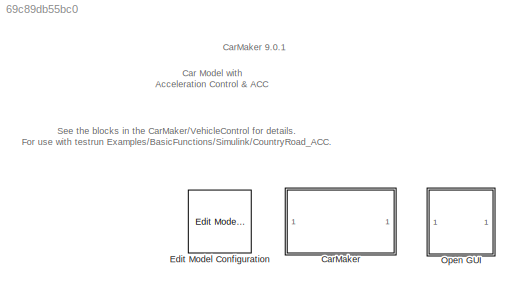
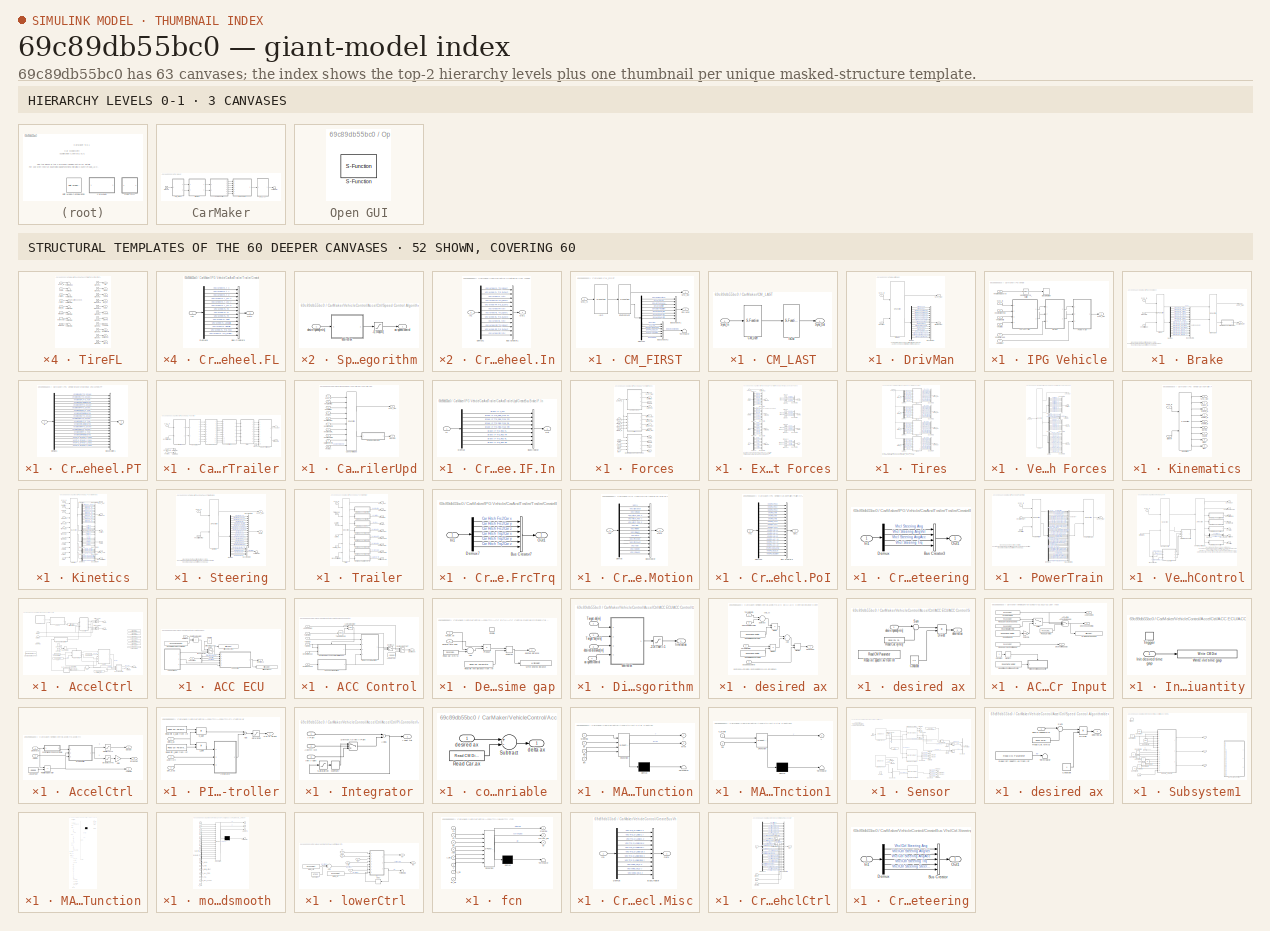
[diagram: thumbnail index - top-2 hierarchy levels (3 canvases) + 52 structural-template representatives of the remaining 60 canvases]
MODEL slx_69c89db55bc0
KIND model
CONFIG AbsTol = auto
CONFIG EnableMultiTasking = on
CONFIG FixedStep = 0.001
CONFIG MaxStep = auto
CONFIG MinStep = auto
CONFIG RelTol = 1e-3
CONFIG SampleTimeConstraint = Unconstrained
CONFIG Solver = FixedStepAuto
CONFIG SolverName = FixedStepAuto
CONFIG StartTime = 0.0
CONFIG StopTime = inf
BLOCK [SubSystem] CarMaker
  Ports = []
  RequestExecContextInheritance = off
  TreatAsAtomicUnit = on
BLOCK [SubSystem] CarMaker/CM_FIRST
  Ports = [1, 2]
  RequestExecContextInheritance = off
BLOCK [BusCreator] CarMaker/CM_FIRST/BusCreator1
  InheritFromInputs = on
  Inputs = 8
  Ports = [8, 1]
BLOCK [BusCreator] CarMaker/CM_FIRST/BusCreator2
  InheritFromInputs = on
  Inputs = 6
  Ports = [6, 1]
BLOCK [Demux] CarMaker/CM_FIRST/Demux1
  Outputs = 14
  Ports = [1, 14]
BLOCK [Outport] CarMaker/CM_FIRST/Env.Misc
  IconDisplay = Port number
  Port = 2
BLOCK [S-Function] CarMaker/CM_FIRST/Environment
  EnableBusSupport = off
  FunctionName = CM_Sfun
  Parameters = 'Environment'
  Ports = [1, 2]
  SFcnIsStateOwnerBlock = off
  SFunctionDeploymentMode = off
BLOCK [S-Function] CarMaker/CM_FIRST/IoIn
  EnableBusSupport = off
  FunctionName = CM_Sfun
  Parameters = 'IoIn'
  Ports = [1, 1]
  SFcnIsStateOwnerBlock = off
  SFunctionDeploymentMode = off
BLOCK [Inport] CarMaker/CM_FIRST/Sync_In
  IconDisplay = Port number
BLOCK [Outport] CarMaker/CM_FIRST/Sync_Out
  IconDisplay = Port number
BLOCK [Terminator] CarMaker/CM_FIRST/Terminator
BLOCK [SubSystem] CarMaker/CM_LAST
  Ports = [1, 1]
  RequestExecContextInheritance = off
BLOCK [S-Function] CarMaker/CM_LAST/CM_User
  EnableBusSupport = off
  FunctionName = CM_Sfun
  Parameters = 'CM_User'
  Ports = [1, 1]
  SFcnIsStateOwnerBlock = off
  SFunctionDeploymentMode = off
BLOCK [S-Function] CarMaker/CM_LAST/IoOut
  EnableBusSupport = off
  FunctionName = CM_Sfun
  Parameters = 'IoOut'
  Ports = [1, 1]
  SFcnIsStateOwnerBlock = off
  SFunctionDeploymentMode = off
BLOCK [Inport] CarMaker/CM_LAST/Sync_In
  IconDisplay = Port number
BLOCK [Outport] CarMaker/CM_LAST/Sync_Out
  IconDisplay = Port number
BLOCK [SubSystem] CarMaker/DrivMan
  Ports = [2, 2]
  RequestExecContextInheritance = off
BLOCK [BusCreator] CarMaker/DrivMan/BusCreator
  InheritFromInputs = on
  Inputs = 17
  Ports = [17, 1]
BLOCK [Demux] CarMaker/DrivMan/Demux
  Outputs = 17
  Ports = [1, 17]
BLOCK [S-Function] CarMaker/DrivMan/DrivMan
  EnableBusSupport = off
  FunctionName = CM_Sfun
  Parameters = 'DrivMan'
  Ports = [2, 2]
  SFcnIsStateOwnerBlock = off
  SFunctionDeploymentMode = off
BLOCK [Outport] CarMaker/DrivMan/DrivMan.Out
  IconDisplay = Port number
  Port = 2
BLOCK [Inport] CarMaker/DrivMan/Env.Misc
  IconDisplay = Port number
  Port = 2
BLOCK [Inport] CarMaker/DrivMan/Sync_In
  IconDisplay = Port number
BLOCK [Outport] CarMaker/DrivMan/Sync_Out
  IconDisplay = Port number
BLOCK [Ground] CarMaker/Ground
BLOCK [SubSystem] CarMaker/IPG Vehicle
  Ports = [7, 1]
  RequestExecContextInheritance = off
  TreatAsAtomicUnit = on
BLOCK [SubSystem] CarMaker/IPG Vehicle/Brake
  Ports = [3, 2]
  RequestExecContextInheritance = off
BLOCK [S-Function] CarMaker/IPG Vehicle/Brake/Brake
  EnableBusSupport = off
  FunctionName = CM_Sfun
  Parameters = 'Brake'
  Ports = [3, 2]
  SFcnIsStateOwnerBlock = off
  SFunctionDeploymentMode = off
BLOCK [Inport] CarMaker/IPG Vehicle/Brake/Brake.IF.In
  IconDisplay = Port number
  Port = 2
BLOCK [S-Function] CarMaker/IPG Vehicle/Brake/BrakeUpd
  EnableBusSupport = off
  FunctionName = CM_Sfun
  Parameters = 'BrakeUpd'
  Ports = [2, 2]
  SFcnIsStateOwnerBlock = off
  SFunctionDeploymentMode = off
BLOCK [BusCreator] CarMaker/IPG Vehicle/Brake/BusCreator1
  InheritFromInputs = on
  Inputs = 16
  Ports = [16, 1]
BLOCK [SubSystem] CarMaker/IPG Vehicle/Brake/CreateBus Vhcl.Wheel.PT
  Ports = [1, 1]
  RequestExecContextInheritance = off
BLOCK [BusCreator] CarMaker/IPG Vehicle/Brake/CreateBus Vhcl.Wheel.PT/BusCreator1
  InheritFromInputs = on
  Inputs = 20
  Ports = [20, 1]
BLOCK [Demux] CarMaker/IPG Vehicle/Brake/CreateBus Vhcl.Wheel.PT/Demux1
  Outputs = 20
  Ports = [1, 20]
BLOCK [Inport] CarMaker/IPG Vehicle/Brake/CreateBus Vhcl.Wheel.PT/In
  IconDisplay = Port number
BLOCK [Outport] CarMaker/IPG Vehicle/Brake/CreateBus Vhcl.Wheel.PT/Out
  IconDisplay = Port number
BLOCK [Demux] CarMaker/IPG Vehicle/Brake/Demux
  Outputs = 16
  Ports = [1, 16]
BLOCK [Inport] CarMaker/IPG Vehicle/Brake/Sync_In
  IconDisplay = Port number
BLOCK [Outport] CarMaker/IPG Vehicle/Brake/Sync_Out
  IconDisplay = Port number
BLOCK [Outport] CarMaker/IPG Vehicle/Brake/Vhcl.Wheel.PT
  IconDisplay = Port number
  Port = 2
BLOCK [Inport] CarMaker/IPG Vehicle/Brake/VhclCtrl.Brake
  IconDisplay = Port number
  Port = 3
BLOCK [SubSystem] CarMaker/IPG Vehicle/CarAndTrailer
  Ports = [4, 2]
  RequestExecContextInheritance = off
BLOCK [Outport] CarMaker/IPG Vehicle/CarAndTrailer/Brake.IF.In
  IconDisplay = Port number
  Port = 2
BLOCK [SubSystem] CarMaker/IPG Vehicle/CarAndTrailer/CarAndTrailerUpd
  Ports = [10, 2]
  RequestExecContextInheritance = off
BLOCK [Outport] CarMaker/IPG Vehicle/CarAndTrailer/CarAndTrailerUpd/Brake.IF.In
  IconDisplay = Port number
  Port = 2
BLOCK [Inport] CarMaker/IPG Vehicle/CarAndTrailer/CarAndTrailerUpd/Car.Hitch.FrcTrq
  IconDisplay = Port number
  Port = 9
BLOCK [S-Function] CarMaker/IPG Vehicle/CarAndTrailer/CarAndTrailerUpd/CarAndTrailerUpd
  EnableBusSupport = off
  FunctionName = CM_Sfun
  Parameters = 'CarAndTrUpd'
  Ports = [10, 2]
  SFcnIsStateOwnerBlock = off
  SFunctionDeploymentMode = off
BLOCK [SubSystem] CarMaker/IPG Vehicle/CarAndTrailer/CarAndTrailerUpd/CreateBus Brake.IF.In
  Ports = [1, 1]
  RequestExecContextInheritance = off
BLOCK [BusCreator] CarMaker/IPG Vehicle/CarAndTrailer/CarAndTrailerUpd/CreateBus Brake.IF.In/BusCreator
  InheritFromInputs = on
  Inputs = 9
  Ports = [9, 1]
BLOCK [Demux] CarMaker/IPG Vehicle/CarAndTrailer/CarAndTrailerUpd/CreateBus Brake.IF.In/Demux
  Outputs = 9
  Ports = [1, 9]
BLOCK [Inport] CarMaker/IPG Vehicle/CarAndTrailer/CarAndTrailerUpd/CreateBus Brake.IF.In/In
  IconDisplay = Port number
BLOCK [Outport] CarMaker/IPG Vehicle/CarAndTrailer/CarAndTrailerUpd/CreateBus Brake.IF.In/Out
  IconDisplay = Port number
BLOCK [Inport] CarMaker/IPG Vehicle/CarAndTrailer/CarAndTrailerUpd/Sync_In
  IconDisplay = Port number
BLOCK [Outport] CarMaker/IPG Vehicle/CarAndTrailer/CarAndTrailerUpd/Sync_Out
  IconDisplay = Port number
BLOCK [Inport] CarMaker/IPG Vehicle/CarAndTrailer/CarAndTrailerUpd/Vhcl.Fr1A
  IconDisplay = Port number
  Port = 10
BLOCK [Inport] CarMaker/IPG Vehicle/CarAndTrailer/CarAndTrailerUpd/Vhcl.Motion
  IconDisplay = Port number
  Port = 3
BLOCK [Inport] CarMaker/IPG Vehicle/CarAndTrailer/CarAndTrailerUpd/Vhcl.PoI
  IconDisplay = Port number
  Port = 4
BLOCK [Inport] CarMaker/IPG Vehicle/CarAndTrailer/CarAndTrailerUpd/Vhcl.Steering
  IconDisplay = Port number
  Port = 2
BLOCK [Inport] CarMaker/IPG Vehicle/CarAndTrailer/CarAndTrailerUpd/Vhcl.Wheel.FL
  IconDisplay = Port number
  Port = 5
BLOCK [Inport] CarMaker/IPG Vehicle/CarAndTrailer/CarAndTrailerUpd/Vhcl.Wheel.FR
  IconDisplay = Port number
  Port = 6
BLOCK [Inport] CarMaker/IPG Vehicle/CarAndTrailer/CarAndTrailerUpd/Vhcl.Wheel.RL
  IconDisplay = Port number
  Port = 7
BLOCK [Inport] CarMaker/IPG Vehicle/CarAndTrailer/CarAndTrailerUpd/Vhcl.Wheel.RR
  IconDisplay = Port number
  Port = 8
BLOCK [SubSystem] CarMaker/IPG Vehicle/CarAndTrailer/Forces
  Ports = [9, 12]
  RequestExecContextInheritance = off
BLOCK [Outport] CarMaker/IPG Vehicle/CarAndTrailer/Forces/Car.Aero
  IconDisplay = Port number
  Port = 3
BLOCK [Outport] CarMaker/IPG Vehicle/CarAndTrailer/Forces/Car.Load
  IconDisplay = Port number
  Port = 4
BLOCK [Outport] CarMaker/IPG Vehicle/CarAndTrailer/Forces/Car.Virtual
  IconDisplay = Port number
  Port = 2
BLOCK [SubSystem] CarMaker/IPG Vehicle/CarAndTrailer/Forces/External Suspension Forces
  Ports = [5, 4]
  RequestExecContextInheritance = off
BLOCK [BusCreator] CarMaker/IPG Vehicle/CarAndTrailer/Forces/External Suspension Forces/Bus Creator
  DisplayOption = bar
  InheritFromInputs = on
  Inputs = 8
  Ports = [8, 1]
BLOCK [BusCreator] CarMaker/IPG Vehicle/CarAndTrailer/Forces/External Suspension Forces/Bus Creator1
  DisplayOption = bar
  InheritFromInputs = on
  Inputs = 4
  Ports = [4, 1]
BLOCK [BusCreator] CarMaker/IPG Vehicle/CarAndTrailer/Forces/External Suspension Forces/Bus Creator2
  DisplayOption = bar
  InheritFromInputs = on
  Inputs = 4
  Ports = [4, 1]
BLOCK [BusCreator] CarMaker/IPG Vehicle/CarAndTrailer/Forces/External Suspension Forces/Bus Creator3
  DisplayOption = bar
  InheritFromInputs = on
  Inputs = 4
  Ports = [4, 1]
BLOCK [BusCreator] CarMaker/IPG Vehicle/CarAndTrailer/Forces/External Suspension Forces/Bus Creator4
  DisplayOption = bar
  InheritFromInputs = on
  Inputs = 4
  Ports = [4, 1]
BLOCK [BusCreator] CarMaker/IPG Vehicle/CarAndTrailer/Forces/External Suspension Forces/Bus Creator5
  DisplayOption = bar
  InheritFromInputs = on
  Inputs = 8
  Ports = [8, 1]
BLOCK [BusCreator] CarMaker/IPG Vehicle/CarAndTrailer/Forces/External Suspension Forces/Bus Creator6
  DisplayOption = bar
  InheritFromInputs = on
  Inputs = 8
  Ports = [8, 1]
BLOCK [BusCreator] CarMaker/IPG Vehicle/CarAndTrailer/Forces/External Suspension Forces/Bus Creator7
  DisplayOption = bar
  InheritFromInputs = on
  Inputs = 8
  Ports = [8, 1]
BLOCK [Demux] CarMaker/IPG Vehicle/CarAndTrailer/Forces/External Suspension Forces/Demux1
  Outputs = 8
  Ports = [1, 8]
BLOCK [Demux] CarMaker/IPG Vehicle/CarAndTrailer/Forces/External Suspension Forces/Demux2
  Outputs = 8
  Ports = [1, 8]
BLOCK [Demux] CarMaker/IPG Vehicle/CarAndTrailer/Forces/External Suspension Forces/Demux3
  Outputs = 8
  Ports = [1, 8]
BLOCK [Demux] CarMaker/IPG Vehicle/CarAndTrailer/Forces/External Suspension Forces/Demux4
  Outputs = 8
  Ports = [1, 8]
BLOCK [Outport] CarMaker/IPG Vehicle/CarAndTrailer/Forces/External Suspension Forces/FBuf
  IconDisplay = Port number
  Port = 4
BLOCK [Outport] CarMaker/IPG Vehicle/CarAndTrailer/Forces/External Suspension Forces/FDamp
  IconDisplay = Port number
  Port = 2
BLOCK [Outport] CarMaker/IPG Vehicle/CarAndTrailer/Forces/External Suspension Forces/FSpring
  IconDisplay = Port number
BLOCK [Outport] CarMaker/IPG Vehicle/CarAndTrailer/Forces/External Suspension Forces/FStabi
  IconDisplay = Port number
  Port = 3
BLOCK [Ground] CarMaker/IPG Vehicle/CarAndTrailer/Forces/External Suspension Forces/Ground
BLOCK [Ground] CarMaker/IPG Vehicle/CarAndTrailer/Forces/External Suspension Forces/Ground1
BLOCK [Ground] CarMaker/IPG Vehicle/CarAndTrailer/Forces/External Suspension Forces/Ground10
BLOCK [Ground] CarMaker/IPG Vehicle/CarAndTrailer/Forces/External Suspension Forces/Ground11
BLOCK [Ground] CarMaker/IPG Vehicle/CarAndTrailer/Forces/External Suspension Forces/Ground12
BLOCK [Ground] CarMaker/IPG Vehicle/CarAndTrailer/Forces/External Suspension Forces/Ground13
BLOCK [Ground] CarMaker/IPG Vehicle/CarAndTrailer/Forces/External Suspension Forces/Ground14
BLOCK [Ground] CarMaker/IPG Vehicle/CarAndTrailer/Forces/External Suspension Forces/Ground15
BLOCK [Ground] CarMaker/IPG Vehicle/CarAndTrailer/Forces/External Suspension Forces/Ground2
BLOCK [Ground] CarMaker/IPG Vehicle/CarAndTrailer/Forces/External Suspension Forces/Ground3
BLOCK [Ground] CarMaker/IPG Vehicle/CarAndTrailer/Forces/External Suspension Forces/Ground4
BLOCK [Ground] CarMaker/IPG Vehicle/CarAndTrailer/Forces/External Suspension Forces/Ground5
BLOCK [Ground] CarMaker/IPG Vehicle/CarAndTrailer/Forces/External Suspension Forces/Ground6
BLOCK [Ground] CarMaker/IPG Vehicle/CarAndTrailer/Forces/External Suspension Forces/Ground7
BLOCK [Ground] CarMaker/IPG Vehicle/CarAndTrailer/Forces/External Suspension Forces/Ground8
BLOCK [Ground] CarMaker/IPG Vehicle/CarAndTrailer/Forces/External Suspension Forces/Ground9
BLOCK [Inport] CarMaker/IPG Vehicle/CarAndTrailer/Forces/External Suspension Forces/Sync_In
  IconDisplay = Port number
BLOCK [Terminator] CarMaker/IPG Vehicle/CarAndTrailer/Forces/External Suspension Forces/Terminator1
BLOCK [Terminator] CarMaker/IPG Vehicle/CarAndTrailer/Forces/External Suspension Forces/Terminator12
BLOCK [Terminator] CarMaker/IPG Vehicle/CarAndTrailer/Forces/External Suspension Forces/Terminator2
BLOCK [Terminator] CarMaker/IPG Vehicle/CarAndTrailer/Forces/External Suspension Forces/Terminator3
BLOCK [Terminator] CarMaker/IPG Vehicle/CarAndTrailer/Forces/External Suspension Forces/Terminator4
BLOCK [Inport] CarMaker/IPG Vehicle/CarAndTrailer/Forces/External Suspension Forces/lBuf
  IconDisplay = Port number
  Port = 5
BLOCK [Inport] CarMaker/IPG Vehicle/CarAndTrailer/Forces/External Suspension Forces/lSpring
  IconDisplay = Port number
  Port = 2
BLOCK [Inport] CarMaker/IPG Vehicle/CarAndTrailer/Forces/External Suspension Forces/lStabi
  IconDisplay = Port number
  Port = 4
BLOCK [Inport] CarMaker/IPG Vehicle/CarAndTrailer/Forces/External Suspension Forces/vDamp
  IconDisplay = Port number
  Port = 3
BLOCK [Outport] CarMaker/IPG Vehicle/CarAndTrailer/Forces/FBuf
  IconDisplay = Port number
  Port = 12
BLOCK [Outport] CarMaker/IPG Vehicle/CarAndTrailer/Forces/FDamp
  IconDisplay = Port number
  Port = 10
BLOCK [Outport] CarMaker/IPG Vehicle/CarAndTrailer/Forces/FSpring
  IconDisplay = Port number
  Port = 9
BLOCK [Outport] CarMaker/IPG Vehicle/CarAndTrailer/Forces/FStabi
  IconDisplay = Port number
  Port = 11
BLOCK [Inport] CarMaker/IPG Vehicle/CarAndTrailer/Forces/Sync_In
  IconDisplay = Port number
BLOCK [Outport] CarMaker/IPG Vehicle/CarAndTrailer/Forces/Sync_Out
  IconDisplay = Port number
BLOCK [Inport] CarMaker/IPG Vehicle/CarAndTrailer/Forces/TireFL_In
  IconDisplay = Port number
  Port = 2
BLOCK [Outport] CarMaker/IPG Vehicle/CarAndTrailer/Forces/TireFL_Out
  IconDisplay = Port number
  Port = 5
BLOCK [Inport] CarMaker/IPG Vehicle/CarAndTrailer/Forces/TireFR_In
  IconDisplay = Port number
  Port = 3
BLOCK [Outport] CarMaker/IPG Vehicle/CarAndTrailer/Forces/TireFR_Out
  IconDisplay = Port number
  Port = 6
BLOCK [Inport] CarMaker/IPG Vehicle/CarAndTrailer/Forces/TireRL_In
  IconDisplay = Port number
  Port = 4
BLOCK [Outport] CarMaker/IPG Vehicle/CarAndTrailer/Forces/TireRL_Out
  IconDisplay = Port number
  Port = 7
BLOCK [Inport] CarMaker/IPG Vehicle/CarAndTrailer/Forces/TireRR_In
  IconDisplay = Port number
  Port = 5
BLOCK [Outport] CarMaker/IPG Vehicle/CarAndTrailer/Forces/TireRR_Out
  IconDisplay = Port number
  Port = 8
BLOCK [SubSystem] CarMaker/IPG Vehicle/CarAndTrailer/Forces/Tires
  Ports = [5, 4]
  RequestExecContextInheritance = off
BLOCK [BusCreator] CarMaker/IPG Vehicle/CarAndTrailer/Forces/Tires/Bus Creator1
  DisplayOption = bar
  InheritFromInputs = on
  Inputs = 11
  Ports = [11, 1]
BLOCK [BusCreator] CarMaker/IPG Vehicle/CarAndTrailer/Forces/Tires/Bus Creator2
  DisplayOption = bar
  InheritFromInputs = on
  Inputs = 11
  Ports = [11, 1]
BLOCK [BusCreator] CarMaker/IPG Vehicle/CarAndTrailer/Forces/Tires/Bus Creator3
  DisplayOption = bar
  InheritFromInputs = on
  Inputs = 11
  Ports = [11, 1]
BLOCK [BusCreator] CarMaker/IPG Vehicle/CarAndTrailer/Forces/Tires/Bus Creator4
  DisplayOption = bar
  InheritFromInputs = on
  Inputs = 11
  Ports = [11, 1]
BLOCK [Demux] CarMaker/IPG Vehicle/CarAndTrailer/Forces/Tires/Demux1
  Outputs = 7
  Ports = [1, 7]
BLOCK [Demux] CarMaker/IPG Vehicle/CarAndTrailer/Forces/Tires/Demux2
  Outputs = 7
  Ports = [1, 7]
BLOCK [Demux] CarMaker/IPG Vehicle/CarAndTrailer/Forces/Tires/Demux3
  Outputs = 7
  Ports = [1, 7]
BLOCK [Demux] CarMaker/IPG Vehicle/CarAndTrailer/Forces/Tires/Demux8
  Outputs = 7
  Ports = [1, 7]
BLOCK [Inport] CarMaker/IPG Vehicle/CarAndTrailer/Forces/Tires/Sync_In
  IconDisplay = Port number
BLOCK [SubSystem] CarMaker/IPG Vehicle/CarAndTrailer/Forces/Tires/TireFL
  Ports = [8, 11]
  RequestExecContextInheritance = off
BLOCK [Outport] CarMaker/IPG Vehicle/CarAndTrailer/Forces/Tires/TireFL/AlignTrq
  IconDisplay = Port number
  Port = 11
BLOCK [Outport] CarMaker/IPG Vehicle/CarAndTrailer/Forces/Tires/TireFL/Alpha
  IconDisplay = Port number
  Port = 2
BLOCK [Ground] CarMaker/IPG Vehicle/CarAndTrailer/Forces/Tires/TireFL/Ground1
BLOCK [Ground] CarMaker/IPG Vehicle/CarAndTrailer/Forces/Tires/TireFL/Ground10
BLOCK [Ground] CarMaker/IPG Vehicle/CarAndTrailer/Forces/Tires/TireFL/Ground11
BLOCK [Ground] CarMaker/IPG Vehicle/CarAndTrailer/Forces/Tires/TireFL/Ground2
BLOCK [Ground] CarMaker/IPG Vehicle/CarAndTrailer/Forces/Tires/TireFL/Ground3
BLOCK [Ground] CarMaker/IPG Vehicle/CarAndTrailer/Forces/Tires/TireFL/Ground4
BLOCK [Ground] CarMaker/IPG Vehicle/CarAndTrailer/Forces/Tires/TireFL/Ground5
BLOCK [Ground] CarMaker/IPG Vehicle/CarAndTrailer/Forces/Tires/TireFL/Ground6
BLOCK [Ground] CarMaker/IPG Vehicle/CarAndTrailer/Forces/Tires/TireFL/Ground7
BLOCK [Ground] CarMaker/IPG Vehicle/CarAndTrailer/Forces/Tires/TireFL/Ground8
BLOCK [Ground] CarMaker/IPG Vehicle/CarAndTrailer/Forces/Tires/TireFL/Ground9
BLOCK [Inport] CarMaker/IPG Vehicle/CarAndTrailer/Forces/Tires/TireFL/InclinAngle
  IconDisplay = Port number
  Port = 7
BLOCK [Inport] CarMaker/IPG Vehicle/CarAndTrailer/Forces/Tires/TireFL/Load
  IconDisplay = Port number
  Port = 2
BLOCK [Outport] CarMaker/IPG Vehicle/CarAndTrailer/Forces/Tires/TireFL/LoadFrc
  IconDisplay = Port number
  Port = 8
BLOCK [Outport] CarMaker/IPG Vehicle/CarAndTrailer/Forces/Tires/TireFL/LongFrc
  IconDisplay = Port number
  Port = 6
BLOCK [Outport] CarMaker/IPG Vehicle/CarAndTrailer/Forces/Tires/TireFL/OverturnTrq
  IconDisplay = Port number
  Port = 9
BLOCK [Inport] CarMaker/IPG Vehicle/CarAndTrailer/Forces/Tires/TireFL/Rim_rotv
  IconDisplay = Port number
  Port = 5
BLOCK [Inport] CarMaker/IPG Vehicle/CarAndTrailer/Forces/Tires/TireFL/Rim_turnv
  IconDisplay = Port number
  Port = 6
BLOCK [Outport] CarMaker/IPG Vehicle/CarAndTrailer/Forces/Tires/TireFL/RollResist
  IconDisplay = Port number
  Port = 10
BLOCK [Outport] CarMaker/IPG Vehicle/CarAndTrailer/Forces/Tires/TireFL/SideFrc
  IconDisplay = Port number
  Port = 7
BLOCK [Outport] CarMaker/IPG Vehicle/CarAndTrailer/Forces/Tires/TireFL/Slp
  IconDisplay = Port number
BLOCK [Inport] CarMaker/IPG Vehicle/CarAndTrailer/Forces/Tires/TireFL/Sync_In
  IconDisplay = Port number
BLOCK [Terminator] CarMaker/IPG Vehicle/CarAndTrailer/Forces/Tires/TireFL/Terminator
BLOCK [Terminator] CarMaker/IPG Vehicle/CarAndTrailer/Forces/Tires/TireFL/Terminator1
BLOCK [Terminator] CarMaker/IPG Vehicle/CarAndTrailer/Forces/Tires/TireFL/Terminator12
BLOCK [Terminator] CarMaker/IPG Vehicle/CarAndTrailer/Forces/Tires/TireFL/Terminator2
BLOCK [Terminator] CarMaker/IPG Vehicle/CarAndTrailer/Forces/Tires/TireFL/Terminator3
BLOCK [Terminator] CarMaker/IPG Vehicle/CarAndTrailer/Forces/Tires/TireFL/Terminator4
BLOCK [Terminator] CarMaker/IPG Vehicle/CarAndTrailer/Forces/Tires/TireFL/Terminator5
BLOCK [Terminator] CarMaker/IPG Vehicle/CarAndTrailer/Forces/Tires/TireFL/Terminator6
BLOCK [Outport] CarMaker/IPG Vehicle/CarAndTrailer/Forces/Tires/TireFL/TurnSlp
  IconDisplay = Port number
  Port = 3
BLOCK [Inport] CarMaker/IPG Vehicle/CarAndTrailer/Forces/Tires/TireFL/muRoad
  IconDisplay = Port number
  Port = 8
BLOCK [Outport] CarMaker/IPG Vehicle/CarAndTrailer/Forces/Tires/TireFL/rBelt_eff
  IconDisplay = Port number
  Port = 4
BLOCK [Outport] CarMaker/IPG Vehicle/CarAndTrailer/Forces/Tires/TireFL/vBelt
  IconDisplay = Port number
  Port = 5
BLOCK [Inport] CarMaker/IPG Vehicle/CarAndTrailer/Forces/Tires/TireFL/vxtrans
  IconDisplay = Port number
  Port = 3
BLOCK [Inport] CarMaker/IPG Vehicle/CarAndTrailer/Forces/Tires/TireFL/vytrans
  IconDisplay = Port number
  Port = 4
BLOCK [Inport] CarMaker/IPG Vehicle/CarAndTrailer/Forces/Tires/TireFL_In
  IconDisplay = Port number
  Port = 2
BLOCK [Outport] CarMaker/IPG Vehicle/CarAndTrailer/Forces/Tires/TireFL_Out
  IconDisplay = Port number
BLOCK [SubSystem] CarMaker/IPG Vehicle/CarAndTrailer/Forces/Tires/TireFR
  Ports = [8, 11]
  RequestExecContextInheritance = off
BLOCK [Outport] CarMaker/IPG Vehicle/CarAndTrailer/Forces/Tires/TireFR/AlignTrq
  IconDisplay = Port number
  Port = 11
BLOCK [Outport] CarMaker/IPG Vehicle/CarAndTrailer/Forces/Tires/TireFR/Alpha
  IconDisplay = Port number
  Port = 2
BLOCK [Ground] CarMaker/IPG Vehicle/CarAndTrailer/Forces/Tires/TireFR/Ground1
BLOCK [Ground] CarMaker/IPG Vehicle/CarAndTrailer/Forces/Tires/TireFR/Ground10
BLOCK [Ground] CarMaker/IPG Vehicle/CarAndTrailer/Forces/Tires/TireFR/Ground11
BLOCK [Ground] CarMaker/IPG Vehicle/CarAndTrailer/Forces/Tires/TireFR/Ground2
BLOCK [Ground] CarMaker/IPG Vehicle/CarAndTrailer/Forces/Tires/TireFR/Ground3
BLOCK [Ground] CarMaker/IPG Vehicle/CarAndTrailer/Forces/Tires/TireFR/Ground4
BLOCK [Ground] CarMaker/IPG Vehicle/CarAndTrailer/Forces/Tires/TireFR/Ground5
BLOCK [Ground] CarMaker/IPG Vehicle/CarAndTrailer/Forces/Tires/TireFR/Ground6
BLOCK [Ground] CarMaker/IPG Vehicle/CarAndTrailer/Forces/Tires/TireFR/Ground7
BLOCK [Ground] CarMaker/IPG Vehicle/CarAndTrailer/Forces/Tires/TireFR/Ground8
BLOCK [Ground] CarMaker/IPG Vehicle/CarAndTrailer/Forces/Tires/TireFR/Ground9
BLOCK [Inport] CarMaker/IPG Vehicle/CarAndTrailer/Forces/Tires/TireFR/InclinAngle
  IconDisplay = Port number
  Port = 7
BLOCK [Inport] CarMaker/IPG Vehicle/CarAndTrailer/Forces/Tires/TireFR/Load
  IconDisplay = Port number
  Port = 2
BLOCK [Outport] CarMaker/IPG Vehicle/CarAndTrailer/Forces/Tires/TireFR/LoadFrc
  IconDisplay = Port number
  Port = 8
BLOCK [Outport] CarMaker/IPG Vehicle/CarAndTrailer/Forces/Tires/TireFR/LongFrc
  IconDisplay = Port number
  Port = 6
BLOCK [Outport] CarMaker/IPG Vehicle/CarAndTrailer/Forces/Tires/TireFR/OverturnTrq
  IconDisplay = Port number
  Port = 9
BLOCK [Inport] CarMaker/IPG Vehicle/CarAndTrailer/Forces/Tires/TireFR/Rim_rotv
  IconDisplay = Port number
  Port = 5
BLOCK [Inport] CarMaker/IPG Vehicle/CarAndTrailer/Forces/Tires/TireFR/Rim_turnv
  IconDisplay = Port number
  Port = 6
BLOCK [Outport] CarMaker/IPG Vehicle/CarAndTrailer/Forces/Tires/TireFR/RollResist
  IconDisplay = Port number
  Port = 10
BLOCK [Outport] CarMaker/IPG Vehicle/CarAndTrailer/Forces/Tires/TireFR/SideFrc
  IconDisplay = Port number
  Port = 7
BLOCK [Outport] CarMaker/IPG Vehicle/CarAndTrailer/Forces/Tires/TireFR/Slp
  IconDisplay = Port number
BLOCK [Inport] CarMaker/IPG Vehicle/CarAndTrailer/Forces/Tires/TireFR/Sync_In
  IconDisplay = Port number
BLOCK [Terminator] CarMaker/IPG Vehicle/CarAndTrailer/Forces/Tires/TireFR/Terminator
BLOCK [Terminator] CarMaker/IPG Vehicle/CarAndTrailer/Forces/Tires/TireFR/Terminator1
BLOCK [Terminator] CarMaker/IPG Vehicle/CarAndTrailer/Forces/Tires/TireFR/Terminator12
BLOCK [Terminator] CarMaker/IPG Vehicle/CarAndTrailer/Forces/Tires/TireFR/Terminator2
BLOCK [Terminator] CarMaker/IPG Vehicle/CarAndTrailer/Forces/Tires/TireFR/Terminator3
BLOCK [Terminator] CarMaker/IPG Vehicle/CarAndTrailer/Forces/Tires/TireFR/Terminator4
BLOCK [Terminator] CarMaker/IPG Vehicle/CarAndTrailer/Forces/Tires/TireFR/Terminator5
BLOCK [Terminator] CarMaker/IPG Vehicle/CarAndTrailer/Forces/Tires/TireFR/Terminator6
BLOCK [Outport] CarMaker/IPG Vehicle/CarAndTrailer/Forces/Tires/TireFR/TurnSlp
  IconDisplay = Port number
  Port = 3
BLOCK [Inport] CarMaker/IPG Vehicle/CarAndTrailer/Forces/Tires/TireFR/muRoad
  IconDisplay = Port number
  Port = 8
BLOCK [Outport] CarMaker/IPG Vehicle/CarAndTrailer/Forces/Tires/TireFR/rBelt_eff
  IconDisplay = Port number
  Port = 4
BLOCK [Outport] CarMaker/IPG Vehicle/CarAndTrailer/Forces/Tires/TireFR/vBelt
  IconDisplay = Port number
  Port = 5
BLOCK [Inport] CarMaker/IPG Vehicle/CarAndTrailer/Forces/Tires/TireFR/vxtrans
  IconDisplay = Port number
  Port = 3
BLOCK [Inport] CarMaker/IPG Vehicle/CarAndTrailer/Forces/Tires/TireFR/vytrans
  IconDisplay = Port number
  Port = 4
BLOCK [Inport] CarMaker/IPG Vehicle/CarAndTrailer/Forces/Tires/TireFR_In
  IconDisplay = Port number
  Port = 3
BLOCK [Outport] CarMaker/IPG Vehicle/CarAndTrailer/Forces/Tires/TireFR_Out
  IconDisplay = Port number
  Port = 2
BLOCK [SubSystem] CarMaker/IPG Vehicle/CarAndTrailer/Forces/Tires/TireRL
  Ports = [8, 11]
  RequestExecContextInheritance = off
BLOCK [Outport] CarMaker/IPG Vehicle/CarAndTrailer/Forces/Tires/TireRL/AlignTrq
  IconDisplay = Port number
  Port = 11
BLOCK [Outport] CarMaker/IPG Vehicle/CarAndTrailer/Forces/Tires/TireRL/Alpha
  IconDisplay = Port number
  Port = 2
BLOCK [Ground] CarMaker/IPG Vehicle/CarAndTrailer/Forces/Tires/TireRL/Ground1
BLOCK [Ground] CarMaker/IPG Vehicle/CarAndTrailer/Forces/Tires/TireRL/Ground10
BLOCK [Ground] CarMaker/IPG Vehicle/CarAndTrailer/Forces/Tires/TireRL/Ground11
BLOCK [Ground] CarMaker/IPG Vehicle/CarAndTrailer/Forces/Tires/TireRL/Ground2
BLOCK [Ground] CarMaker/IPG Vehicle/CarAndTrailer/Forces/Tires/TireRL/Ground3
BLOCK [Ground] CarMaker/IPG Vehicle/CarAndTrailer/Forces/Tires/TireRL/Ground4
BLOCK [Ground] CarMaker/IPG Vehicle/CarAndTrailer/Forces/Tires/TireRL/Ground5
BLOCK [Ground] CarMaker/IPG Vehicle/CarAndTrailer/Forces/Tires/TireRL/Ground6
BLOCK [Ground] CarMaker/IPG Vehicle/CarAndTrailer/Forces/Tires/TireRL/Ground7
BLOCK [Ground] CarMaker/IPG Vehicle/CarAndTrailer/Forces/Tires/TireRL/Ground8
BLOCK [Ground] CarMaker/IPG Vehicle/CarAndTrailer/Forces/Tires/TireRL/Ground9
BLOCK [Inport] CarMaker/IPG Vehicle/CarAndTrailer/Forces/Tires/TireRL/InclinAngle
  IconDisplay = Port number
  Port = 7
BLOCK [Inport] CarMaker/IPG Vehicle/CarAndTrailer/Forces/Tires/TireRL/Load
  IconDisplay = Port number
  Port = 2
BLOCK [Outport] CarMaker/IPG Vehicle/CarAndTrailer/Forces/Tires/TireRL/LoadFrc
  IconDisplay = Port number
  Port = 8
BLOCK [Outport] CarMaker/IPG Vehicle/CarAndTrailer/Forces/Tires/TireRL/LongFrc
  IconDisplay = Port number
  Port = 6
BLOCK [Outport] CarMaker/IPG Vehicle/CarAndTrailer/Forces/Tires/TireRL/OverturnTrq
  IconDisplay = Port number
  Port = 9
BLOCK [Inport] CarMaker/IPG Vehicle/CarAndTrailer/Forces/Tires/TireRL/Rim_rotv
  IconDisplay = Port number
  Port = 5
BLOCK [Inport] CarMaker/IPG Vehicle/CarAndTrailer/Forces/Tires/TireRL/Rim_turnv
  IconDisplay = Port number
  Port = 6
BLOCK [Outport] CarMaker/IPG Vehicle/CarAndTrailer/Forces/Tires/TireRL/RollResist
  IconDisplay = Port number
  Port = 10
BLOCK [Outport] CarMaker/IPG Vehicle/CarAndTrailer/Forces/Tires/TireRL/SideFrc
  IconDisplay = Port number
  Port = 7
BLOCK [Outport] CarMaker/IPG Vehicle/CarAndTrailer/Forces/Tires/TireRL/Slp
  IconDisplay = Port number
BLOCK [Inport] CarMaker/IPG Vehicle/CarAndTrailer/Forces/Tires/TireRL/Sync_In
  IconDisplay = Port number
BLOCK [Terminator] CarMaker/IPG Vehicle/CarAndTrailer/Forces/Tires/TireRL/Terminator
BLOCK [Terminator] CarMaker/IPG Vehicle/CarAndTrailer/Forces/Tires/TireRL/Terminator1
BLOCK [Terminator] CarMaker/IPG Vehicle/CarAndTrailer/Forces/Tires/TireRL/Terminator12
BLOCK [Terminator] CarMaker/IPG Vehicle/CarAndTrailer/Forces/Tires/TireRL/Terminator2
BLOCK [Terminator] CarMaker/IPG Vehicle/CarAndTrailer/Forces/Tires/TireRL/Terminator3
BLOCK [Terminator] CarMaker/IPG Vehicle/CarAndTrailer/Forces/Tires/TireRL/Terminator4
BLOCK [Terminator] CarMaker/IPG Vehicle/CarAndTrailer/Forces/Tires/TireRL/Terminator5
BLOCK [Terminator] CarMaker/IPG Vehicle/CarAndTrailer/Forces/Tires/TireRL/Terminator6
BLOCK [Outport] CarMaker/IPG Vehicle/CarAndTrailer/Forces/Tires/TireRL/TurnSlp
  IconDisplay = Port number
  Port = 3
BLOCK [Inport] CarMaker/IPG Vehicle/CarAndTrailer/Forces/Tires/TireRL/muRoad
  IconDisplay = Port number
  Port = 8
BLOCK [Outport] CarMaker/IPG Vehicle/CarAndTrailer/Forces/Tires/TireRL/rBelt_eff
  IconDisplay = Port number
  Port = 4
BLOCK [Outport] CarMaker/IPG Vehicle/CarAndTrailer/Forces/Tires/TireRL/vBelt
  IconDisplay = Port number
  Port = 5
BLOCK [Inport] CarMaker/IPG Vehicle/CarAndTrailer/Forces/Tires/TireRL/vxtrans
  IconDisplay = Port number
  Port = 3
BLOCK [Inport] CarMaker/IPG Vehicle/CarAndTrailer/Forces/Tires/TireRL/vytrans
  IconDisplay = Port number
  Port = 4
BLOCK [Inport] CarMaker/IPG Vehicle/CarAndTrailer/Forces/Tires/TireRL_In
  IconDisplay = Port number
  Port = 4
BLOCK [Outport] CarMaker/IPG Vehicle/CarAndTrailer/Forces/Tires/TireRL_Out
  IconDisplay = Port number
  Port = 3
BLOCK [SubSystem] CarMaker/IPG Vehicle/CarAndTrailer/Forces/Tires/TireRR
  Ports = [8, 11]
  RequestExecContextInheritance = off
BLOCK [Outport] CarMaker/IPG Vehicle/CarAndTrailer/Forces/Tires/TireRR/AlignTrq
  IconDisplay = Port number
  Port = 11
BLOCK [Outport] CarMaker/IPG Vehicle/CarAndTrailer/Forces/Tires/TireRR/Alpha
  IconDisplay = Port number
  Port = 2
BLOCK [Ground] CarMaker/IPG Vehicle/CarAndTrailer/Forces/Tires/TireRR/Ground1
BLOCK [Ground] CarMaker/IPG Vehicle/CarAndTrailer/Forces/Tires/TireRR/Ground10
BLOCK [Ground] CarMaker/IPG Vehicle/CarAndTrailer/Forces/Tires/TireRR/Ground11
BLOCK [Ground] CarMaker/IPG Vehicle/CarAndTrailer/Forces/Tires/TireRR/Ground2
BLOCK [Ground] CarMaker/IPG Vehicle/CarAndTrailer/Forces/Tires/TireRR/Ground3
BLOCK [Ground] CarMaker/IPG Vehicle/CarAndTrailer/Forces/Tires/TireRR/Ground4
BLOCK [Ground] CarMaker/IPG Vehicle/CarAndTrailer/Forces/Tires/TireRR/Ground5
BLOCK [Ground] CarMaker/IPG Vehicle/CarAndTrailer/Forces/Tires/TireRR/Ground6
BLOCK [Ground] CarMaker/IPG Vehicle/CarAndTrailer/Forces/Tires/TireRR/Ground7
BLOCK [Ground] CarMaker/IPG Vehicle/CarAndTrailer/Forces/Tires/TireRR/Ground8
BLOCK [Ground] CarMaker/IPG Vehicle/CarAndTrailer/Forces/Tires/TireRR/Ground9
BLOCK [Inport] CarMaker/IPG Vehicle/CarAndTrailer/Forces/Tires/TireRR/InclinAngle
  IconDisplay = Port number
  Port = 7
BLOCK [Inport] CarMaker/IPG Vehicle/CarAndTrailer/Forces/Tires/TireRR/Load
  IconDisplay = Port number
  Port = 2
BLOCK [Outport] CarMaker/IPG Vehicle/CarAndTrailer/Forces/Tires/TireRR/LoadFrc
  IconDisplay = Port number
  Port = 8
BLOCK [Outport] CarMaker/IPG Vehicle/CarAndTrailer/Forces/Tires/TireRR/LongFrc
  IconDisplay = Port number
  Port = 6
BLOCK [Outport] CarMaker/IPG Vehicle/CarAndTrailer/Forces/Tires/TireRR/OverturnTrq
  IconDisplay = Port number
  Port = 9
BLOCK [Inport] CarMaker/IPG Vehicle/CarAndTrailer/Forces/Tires/TireRR/Rim_rotv
  IconDisplay = Port number
  Port = 5
BLOCK [Inport] CarMaker/IPG Vehicle/CarAndTrailer/Forces/Tires/TireRR/Rim_turnv
  IconDisplay = Port number
  Port = 6
BLOCK [Outport] CarMaker/IPG Vehicle/CarAndTrailer/Forces/Tires/TireRR/RollResist
  IconDisplay = Port number
  Port = 10
BLOCK [Outport] CarMaker/IPG Vehicle/CarAndTrailer/Forces/Tires/TireRR/SideFrc
  IconDisplay = Port number
  Port = 7
BLOCK [Outport] CarMaker/IPG Vehicle/CarAndTrailer/Forces/Tires/TireRR/Slp
  IconDisplay = Port number
BLOCK [Inport] CarMaker/IPG Vehicle/CarAndTrailer/Forces/Tires/TireRR/Sync_In
  IconDisplay = Port number
BLOCK [Terminator] CarMaker/IPG Vehicle/CarAndTrailer/Forces/Tires/TireRR/Terminator
BLOCK [Terminator] CarMaker/IPG Vehicle/CarAndTrailer/Forces/Tires/TireRR/Terminator1
BLOCK [Terminator] CarMaker/IPG Vehicle/CarAndTrailer/Forces/Tires/TireRR/Terminator12
BLOCK [Terminator] CarMaker/IPG Vehicle/CarAndTrailer/Forces/Tires/TireRR/Terminator2
BLOCK [Terminator] CarMaker/IPG Vehicle/CarAndTrailer/Forces/Tires/TireRR/Terminator3
BLOCK [Terminator] CarMaker/IPG Vehicle/CarAndTrailer/Forces/Tires/TireRR/Terminator4
BLOCK [Terminator] CarMaker/IPG Vehicle/CarAndTrailer/Forces/Tires/TireRR/Terminator5
BLOCK [Terminator] CarMaker/IPG Vehicle/CarAndTrailer/Forces/Tires/TireRR/Terminator6
BLOCK [Outport] CarMaker/IPG Vehicle/CarAndTrailer/Forces/Tires/TireRR/TurnSlp
  IconDisplay = Port number
  Port = 3
BLOCK [Inport] CarMaker/IPG Vehicle/CarAndTrailer/Forces/Tires/TireRR/muRoad
  IconDisplay = Port number
  Port = 8
BLOCK [Outport] CarMaker/IPG Vehicle/CarAndTrailer/Forces/Tires/TireRR/rBelt_eff
  IconDisplay = Port number
  Port = 4
BLOCK [Outport] CarMaker/IPG Vehicle/CarAndTrailer/Forces/Tires/TireRR/vBelt
  IconDisplay = Port number
  Port = 5
BLOCK [Inport] CarMaker/IPG Vehicle/CarAndTrailer/Forces/Tires/TireRR/vxtrans
  IconDisplay = Port number
  Port = 3
BLOCK [Inport] CarMaker/IPG Vehicle/CarAndTrailer/Forces/Tires/TireRR/vytrans
  IconDisplay = Port number
  Port = 4
BLOCK [Inport] CarMaker/IPG Vehicle/CarAndTrailer/Forces/Tires/TireRR_In
  IconDisplay = Port number
  Port = 5
BLOCK [Outport] CarMaker/IPG Vehicle/CarAndTrailer/Forces/Tires/TireRR_Out
  IconDisplay = Port number
  Port = 4
BLOCK [SubSystem] CarMaker/IPG Vehicle/CarAndTrailer/Forces/Vehicle Forces
  Ports = [1, 4]
  RequestExecContextInheritance = off
BLOCK [BusCreator] CarMaker/IPG Vehicle/CarAndTrailer/Forces/Vehicle Forces/Bus Creator1
  DisplayOption = bar
  InheritFromInputs = on
  Inputs = 12
  Ports = [12, 1]
BLOCK [BusCreator] CarMaker/IPG Vehicle/CarAndTrailer/Forces/Vehicle Forces/Bus Creator8
  DisplayOption = bar
  InheritFromInputs = on
  Inputs = 16
  Ports = [16, 1]
BLOCK [BusCreator] CarMaker/IPG Vehicle/CarAndTrailer/Forces/Vehicle Forces/BusCreator1
  InheritFromInputs = on
  Inputs = 4
  Ports = [4, 1]
BLOCK [BusCreator] CarMaker/IPG Vehicle/CarAndTrailer/Forces/Vehicle Forces/BusCreator2
  InheritFromInputs = on
  Inputs = 9
  Ports = [9, 1]
BLOCK [Outport] CarMaker/IPG Vehicle/CarAndTrailer/Forces/Vehicle Forces/Car.Aero
  IconDisplay = Port number
  Port = 3
BLOCK [Outport] CarMaker/IPG Vehicle/CarAndTrailer/Forces/Vehicle Forces/Car.Load
  IconDisplay = Port number
  Port = 4
BLOCK [Outport] CarMaker/IPG Vehicle/CarAndTrailer/Forces/Vehicle Forces/Car.Virtual
  IconDisplay = Port number
  Port = 2
BLOCK [Demux] CarMaker/IPG Vehicle/CarAndTrailer/Forces/Vehicle Forces/Demux
  Outputs = 16
  Ports = [1, 16]
BLOCK [Demux] CarMaker/IPG Vehicle/CarAndTrailer/Forces/Vehicle Forces/Demux1
  Outputs = 12
  Ports = [1, 12]
BLOCK [Demux] CarMaker/IPG Vehicle/CarAndTrailer/Forces/Vehicle Forces/Demux2
  Outputs = 13
  Ports = [1, 13]
BLOCK [S-Function] CarMaker/IPG Vehicle/CarAndTrailer/Forces/Vehicle Forces/Forces
  EnableBusSupport = off
  FunctionName = CM_Sfun
  Parameters = 'Forces'
  Ports = [1, 4]
  SFcnIsStateOwnerBlock = off
  SFunctionDeploymentMode = off
BLOCK [Inport] CarMaker/IPG Vehicle/CarAndTrailer/Forces/Vehicle Forces/Sync_In
  IconDisplay = Port number
BLOCK [Outport] CarMaker/IPG Vehicle/CarAndTrailer/Forces/Vehicle Forces/Sync_Out
  IconDisplay = Port number
BLOCK [Terminator] CarMaker/IPG Vehicle/CarAndTrailer/Forces/Vehicle Forces/Terminator
BLOCK [Inport] CarMaker/IPG Vehicle/CarAndTrailer/Forces/lBuf
  IconDisplay = Port number
  Port = 9
BLOCK [Inport] CarMaker/IPG Vehicle/CarAndTrailer/Forces/lSpring
  IconDisplay = Port number
  Port = 6
BLOCK [Inport] CarMaker/IPG Vehicle/CarAndTrailer/Forces/lStabi
  IconDisplay = Port number
  Port = 8
BLOCK [Inport] CarMaker/IPG Vehicle/CarAndTrailer/Forces/vDamp
  IconDisplay = Port number
  Port = 7
BLOCK [Ground] CarMaker/IPG Vehicle/CarAndTrailer/Ground
BLOCK [SubSystem] CarMaker/IPG Vehicle/CarAndTrailer/Kinematics
  Ports = [2, 9]
  RequestExecContextInheritance = off
BLOCK [S-Function] CarMaker/IPG Vehicle/CarAndTrailer/Kinematics/Kinematics
  EnableBusSupport = off
  FunctionName = CM_Sfun
  Parameters = 'Kinematics'
  Ports = [2, 9]
  SFcnIsStateOwnerBlock = off
  SFunctionDeploymentMode = off
BLOCK [Inport] CarMaker/IPG Vehicle/CarAndTrailer/Kinematics/Steer.IF
  IconDisplay = Port number
  Port = 2
BLOCK [Inport] CarMaker/IPG Vehicle/CarAndTrailer/Kinematics/Sync_In
  IconDisplay = Port number
BLOCK [Outport] CarMaker/IPG Vehicle/CarAndTrailer/Kinematics/Sync_Out
  IconDisplay = Port number
BLOCK [Outport] CarMaker/IPG Vehicle/CarAndTrailer/Kinematics/TireFL_In
  IconDisplay = Port number
  Port = 2
BLOCK [Outport] CarMaker/IPG Vehicle/CarAndTrailer/Kinematics/TireFR_In
  IconDisplay = Port number
  Port = 3
BLOCK [Outport] CarMaker/IPG Vehicle/CarAndTrailer/Kinematics/TireRL_In
  IconDisplay = Port number
  Port = 4
BLOCK [Outport] CarMaker/IPG Vehicle/CarAndTrailer/Kinematics/TireRR_In
  IconDisplay = Port number
  Port = 5
BLOCK [Outport] CarMaker/IPG Vehicle/CarAndTrailer/Kinematics/lBuf
  IconDisplay = Port number
  Port = 9
BLOCK [Outport] CarMaker/IPG Vehicle/CarAndTrailer/Kinematics/lSpring
  IconDisplay = Port number
  Port = 6
BLOCK [Outport] CarMaker/IPG Vehicle/CarAndTrailer/Kinematics/lStabi
  IconDisplay = Port number
  Port = 8
BLOCK [Outport] CarMaker/IPG Vehicle/CarAndTrailer/Kinematics/vDamp
  IconDisplay = Port number
  Port = 7
BLOCK [SubSystem] CarMaker/IPG Vehicle/CarAndTrailer/Kinetics
  Ports = [12, 6]
  RequestExecContextInheritance = off
BLOCK [BusCreator] CarMaker/IPG Vehicle/CarAndTrailer/Kinetics/Bus Creator
  DisplayOption = bar
  InheritFromInputs = on
  Inputs = 4
  Ports = [4, 1]
BLOCK [BusCreator] CarMaker/IPG Vehicle/CarAndTrailer/Kinetics/Bus Creator1
  DisplayOption = bar
  InheritFromInputs = on
  Inputs = 12
  Ports = [12, 1]
BLOCK [BusCreator] CarMaker/IPG Vehicle/CarAndTrailer/Kinetics/Bus Creator2
  DisplayOption = bar
  InheritFromInputs = on
  Inputs = 6
  Ports = [6, 1]
BLOCK [BusCreator] CarMaker/IPG Vehicle/CarAndTrailer/Kinetics/Bus Creator3
  DisplayOption = bar
  InheritFromInputs = on
  Inputs = 6
  Ports = [6, 1]
BLOCK [BusCreator] CarMaker/IPG Vehicle/CarAndTrailer/Kinetics/Bus Creator4
  DisplayOption = bar
  InheritFromInputs = on
  Inputs = 4
  Ports = [4, 1]
BLOCK [Inport] CarMaker/IPG Vehicle/CarAndTrailer/Kinetics/Car.Aero
  IconDisplay = Port number
  Port = 3
BLOCK [Outport] CarMaker/IPG Vehicle/CarAndTrailer/Kinetics/Car.Fr1
  IconDisplay = Port number
  Port = 4
BLOCK [Outport] CarMaker/IPG Vehicle/CarAndTrailer/Kinetics/Car.Hitch
  IconDisplay = Port number
  Port = 3
BLOCK [Inport] CarMaker/IPG Vehicle/CarAndTrailer/Kinetics/Car.Load
  IconDisplay = Port number
  Port = 4
BLOCK [Outport] CarMaker/IPG Vehicle/CarAndTrailer/Kinetics/Car.Trq_T2W
  IconDisplay = Port number
  Port = 5
BLOCK [Inport] CarMaker/IPG Vehicle/CarAndTrailer/Kinetics/Car.Virtual
  IconDisplay = Port number
  Port = 2
BLOCK [Demux] CarMaker/IPG Vehicle/CarAndTrailer/Kinetics/Demux
  Outputs = 12
  Ports = [1, 12]
BLOCK [Demux] CarMaker/IPG Vehicle/CarAndTrailer/Kinetics/Demux1
  Outputs = 6
  Ports = [1, 6]
BLOCK [Demux] CarMaker/IPG Vehicle/CarAndTrailer/Kinetics/Demux2
  Outputs = 6
  Ports = [1, 6]
BLOCK [Demux] CarMaker/IPG Vehicle/CarAndTrailer/Kinetics/Demux3
  Ports = [1, 4]
BLOCK [Demux] CarMaker/IPG Vehicle/CarAndTrailer/Kinetics/Demux4
  Ports = [1, 4]
BLOCK [Inport] CarMaker/IPG Vehicle/CarAndTrailer/Kinetics/FBuf
  IconDisplay = Port number
  Port = 12
BLOCK [Inport] CarMaker/IPG Vehicle/CarAndTrailer/Kinetics/FDamp
  IconDisplay = Port number
  Port = 10
BLOCK [Inport] CarMaker/IPG Vehicle/CarAndTrailer/Kinetics/FSpring
  IconDisplay = Port number
  Port = 9
BLOCK [Inport] CarMaker/IPG Vehicle/CarAndTrailer/Kinetics/FStabi
  IconDisplay = Port number
  Port = 11
BLOCK [S-Function] CarMaker/IPG Vehicle/CarAndTrailer/Kinetics/Kinetics
  EnableBusSupport = off
  FunctionName = CM_Sfun
  Parameters = 'Kinetics'
  Ports = [12, 6]
  SFcnIsStateOwnerBlock = off
  SFunctionDeploymentMode = off
BLOCK [Inport] CarMaker/IPG Vehicle/CarAndTrailer/Kinetics/Sync_In
  IconDisplay = Port number
BLOCK [Outport] CarMaker/IPG Vehicle/CarAndTrailer/Kinetics/Sync_Out
  IconDisplay = Port number
BLOCK [Inport] CarMaker/IPG Vehicle/CarAndTrailer/Kinetics/TireFL.Out
  IconDisplay = Port number
  Port = 5
BLOCK [Inport] CarMaker/IPG Vehicle/CarAndTrailer/Kinetics/TireFR.Out
  IconDisplay = Port number
  Port = 6
BLOCK [Inport] CarMaker/IPG Vehicle/CarAndTrailer/Kinetics/TireRL.Out
  IconDisplay = Port number
  Port = 7
BLOCK [Inport] CarMaker/IPG Vehicle/CarAndTrailer/Kinetics/TireRR.Out
  IconDisplay = Port number
  Port = 8
BLOCK [Outport] CarMaker/IPG Vehicle/CarAndTrailer/Kinetics/Trailer.Load
  IconDisplay = Port number
  Port = 2
BLOCK [Outport] CarMaker/IPG Vehicle/CarAndTrailer/Kinetics/WheelCarrier.Misc
  IconDisplay = Port number
  Port = 6
BLOCK [SubSystem] CarMaker/IPG Vehicle/CarAndTrailer/Steering
  Ports = [2, 2]
  RequestExecContextInheritance = off
BLOCK [BusCreator] CarMaker/IPG Vehicle/CarAndTrailer/Steering/Bus Creator1
  DisplayOption = bar
  InheritFromInputs = on
  Inputs = 16
  Ports = [16, 1]
BLOCK [BusCreator] CarMaker/IPG Vehicle/CarAndTrailer/Steering/Bus Creator2
  DisplayOption = bar
  InheritFromInputs = on
  Inputs = 5
  Ports = [5, 1]
BLOCK [Demux] CarMaker/IPG Vehicle/CarAndTrailer/Steering/Demux
  Outputs = 21
  Ports = [1, 21]
BLOCK [Outport] CarMaker/IPG Vehicle/CarAndTrailer/Steering/Steer.IF
  IconDisplay = Port number
  Port = 2
BLOCK [S-Function] CarMaker/IPG Vehicle/CarAndTrailer/Steering/Steering
  EnableBusSupport = off
  FunctionName = CM_Sfun
  Parameters = 'Steering'
  Ports = [2, 2]
  SFcnIsStateOwnerBlock = off
  SFunctionDeploymentMode = off
BLOCK [Inport] CarMaker/IPG Vehicle/CarAndTrailer/Steering/Sync_In
  IconDisplay = Port number
BLOCK [Outport] CarMaker/IPG Vehicle/CarAndTrailer/Steering/Sync_Out
  IconDisplay = Port number
BLOCK [Terminator] CarMaker/IPG Vehicle/CarAndTrailer/Steering/Terminator
BLOCK [Inport] CarMaker/IPG Vehicle/CarAndTrailer/Steering/VhclCtrl.Steering
  IconDisplay = Port number
  Port = 2
BLOCK [Inport] CarMaker/IPG Vehicle/CarAndTrailer/Sync_In
  IconDisplay = Port number
BLOCK [Outport] CarMaker/IPG Vehicle/CarAndTrailer/Sync_Out
  IconDisplay = Port number
BLOCK [Terminator] CarMaker/IPG Vehicle/CarAndTrailer/Terminator
BLOCK [Terminator] CarMaker/IPG Vehicle/CarAndTrailer/Terminator1
BLOCK [SubSystem] CarMaker/IPG Vehicle/CarAndTrailer/Trailer
  Ports = [6, 9]
  RequestExecContextInheritance = off
BLOCK [Inport] CarMaker/IPG Vehicle/CarAndTrailer/Trailer/Car.Fr1
  IconDisplay = Port number
  Port = 4
BLOCK [Inport] CarMaker/IPG Vehicle/CarAndTrailer/Trailer/Car.Hitch
  IconDisplay = Port number
  Port = 3
BLOCK [Outport] CarMaker/IPG Vehicle/CarAndTrailer/Trailer/Car.Hitch.FrcTrq
  IconDisplay = Port number
  Port = 9
BLOCK [Inport] CarMaker/IPG Vehicle/CarAndTrailer/Trailer/Car.Trq_T2W
  IconDisplay = Port number
  Port = 5
BLOCK [SubSystem] CarMaker/IPG Vehicle/CarAndTrailer/Trailer/CreateBus Car.Hitch.FrcTrq
  Ports = [1, 1]
  RequestExecContextInheritance = off
BLOCK [BusCreator] CarMaker/IPG Vehicle/CarAndTrailer/Trailer/CreateBus Car.Hitch.FrcTrq/Bus Creator7
  DisplayOption = bar
  InheritFromInputs = on
  Inputs = 6
  Ports = [6, 1]
BLOCK [Demux] CarMaker/IPG Vehicle/CarAndTrailer/Trailer/CreateBus Car.Hitch.FrcTrq/Demux7
  Outputs = 6
  Ports = [1, 6]
BLOCK [Inport] CarMaker/IPG Vehicle/CarAndTrailer/Trailer/CreateBus Car.Hitch.FrcTrq/In1
  IconDisplay = Port number
BLOCK [Outport] CarMaker/IPG Vehicle/CarAndTrailer/Trailer/CreateBus Car.Hitch.FrcTrq/Out1
  IconDisplay = Port number
BLOCK [SubSystem] CarMaker/IPG Vehicle/CarAndTrailer/Trailer/CreateBus Vhcl.Motion
  Ports = [1, 1]
  RequestExecContextInheritance = off
BLOCK [BusCreator] CarMaker/IPG Vehicle/CarAndTrailer/Trailer/CreateBus Vhcl.Motion/BusCreator
  InheritFromInputs = on
  Inputs = 15
  Ports = [15, 1]
BLOCK [Demux] CarMaker/IPG Vehicle/CarAndTrailer/Trailer/CreateBus Vhcl.Motion/Demux
  Outputs = 15
  Ports = [1, 15]
BLOCK [Inport] CarMaker/IPG Vehicle/CarAndTrailer/Trailer/CreateBus Vhcl.Motion/In1
  IconDisplay = Port number
BLOCK [Outport] CarMaker/IPG Vehicle/CarAndTrailer/Trailer/CreateBus Vhcl.Motion/Out1
  IconDisplay = Port number
BLOCK [SubSystem] CarMaker/IPG Vehicle/CarAndTrailer/Trailer/CreateBus Vhcl.PoI
  Ports = [1, 1]
  RequestExecContextInheritance = off
BLOCK [BusCreator] CarMaker/IPG Vehicle/CarAndTrailer/Trailer/CreateBus Vhcl.PoI/Bus Creator3
  DisplayOption = bar
  InheritFromInputs = on
  Inputs = 18
  Ports = [18, 1]
BLOCK [Demux] CarMaker/IPG Vehicle/CarAndTrailer/Trailer/CreateBus Vhcl.PoI/Demux3
  Outputs = 18
  Ports = [1, 18]
BLOCK [Inport] CarMaker/IPG Vehicle/CarAndTrailer/Trailer/CreateBus Vhcl.PoI/In1
  IconDisplay = Port number
BLOCK [Outport] CarMaker/IPG Vehicle/CarAndTrailer/Trailer/CreateBus Vhcl.PoI/Out1
  IconDisplay = Port number
BLOCK [SubSystem] CarMaker/IPG Vehicle/CarAndTrailer/Trailer/CreateBus Vhcl.Steering
  Ports = [1, 1]
  RequestExecContextInheritance = off
BLOCK [BusCreator] CarMaker/IPG Vehicle/CarAndTrailer/Trailer/CreateBus Vhcl.Steering/Bus Creator3
  DisplayOption = bar
  InheritFromInputs = on
  Inputs = 4
  Ports = [4, 1]
BLOCK [Demux] CarMaker/IPG Vehicle/CarAndTrailer/Trailer/CreateBus Vhcl.Steering/Demux
  Ports = [1, 4]
BLOCK [Inport] CarMaker/IPG Vehicle/CarAndTrailer/Trailer/CreateBus Vhcl.Steering/In1
  IconDisplay = Port number
BLOCK [Outport] CarMaker/IPG Vehicle/CarAndTrailer/Trailer/CreateBus Vhcl.Steering/Out1
  IconDisplay = Port number
BLOCK [SubSystem] CarMaker/IPG Vehicle/CarAndTrailer/Trailer/CreateBus Vhcl.Wheel.FL
  Ports = [1, 1]
  RequestExecContextInheritance = off
BLOCK [BusCreator] CarMaker/IPG Vehicle/CarAndTrailer/Trailer/CreateBus Vhcl.Wheel.FL/Bus Creator3
  DisplayOption = bar
  InheritFromInputs = on
  Inputs = 14
  Ports = [14, 1]
BLOCK [Demux] CarMaker/IPG Vehicle/CarAndTrailer/Trailer/CreateBus Vhcl.Wheel.FL/Demux3
  Outputs = 14
  Ports = [1, 14]
BLOCK [Inport] CarMaker/IPG Vehicle/CarAndTrailer/Trailer/CreateBus Vhcl.Wheel.FL/In1
  IconDisplay = Port number
BLOCK [Outport] CarMaker/IPG Vehicle/CarAndTrailer/Trailer/CreateBus Vhcl.Wheel.FL/Out1
  IconDisplay = Port number
BLOCK [SubSystem] CarMaker/IPG Vehicle/CarAndTrailer/Trailer/CreateBus Vhcl.Wheel.FR
  Ports = [1, 1]
  RequestExecContextInheritance = off
BLOCK [BusCreator] CarMaker/IPG Vehicle/CarAndTrailer/Trailer/CreateBus Vhcl.Wheel.FR/Bus Creator3
  DisplayOption = bar
  InheritFromInputs = on
  Inputs = 14
  Ports = [14, 1]
BLOCK [Demux] CarMaker/IPG Vehicle/CarAndTrailer/Trailer/CreateBus Vhcl.Wheel.FR/Demux3
  Outputs = 14
  Ports = [1, 14]
BLOCK [Inport] CarMaker/IPG Vehicle/CarAndTrailer/Trailer/CreateBus Vhcl.Wheel.FR/In1
  IconDisplay = Port number
BLOCK [Outport] CarMaker/IPG Vehicle/CarAndTrailer/Trailer/CreateBus Vhcl.Wheel.FR/Out1
  IconDisplay = Port number
BLOCK [SubSystem] CarMaker/IPG Vehicle/CarAndTrailer/Trailer/CreateBus Vhcl.Wheel.RL
  Ports = [1, 1]
  RequestExecContextInheritance = off
BLOCK [BusCreator] CarMaker/IPG Vehicle/CarAndTrailer/Trailer/CreateBus Vhcl.Wheel.RL/Bus Creator3
  DisplayOption = bar
  InheritFromInputs = on
  Inputs = 14
  Ports = [14, 1]
BLOCK [Demux] CarMaker/IPG Vehicle/CarAndTrailer/Trailer/CreateBus Vhcl.Wheel.RL/Demux3
  Outputs = 14
  Ports = [1, 14]
BLOCK [Inport] CarMaker/IPG Vehicle/CarAndTrailer/Trailer/CreateBus Vhcl.Wheel.RL/In1
  IconDisplay = Port number
BLOCK [Outport] CarMaker/IPG Vehicle/CarAndTrailer/Trailer/CreateBus Vhcl.Wheel.RL/Out1
  IconDisplay = Port number
BLOCK [SubSystem] CarMaker/IPG Vehicle/CarAndTrailer/Trailer/CreateBus Vhcl.Wheel.RR
  Ports = [1, 1]
  RequestExecContextInheritance = off
BLOCK [BusCreator] CarMaker/IPG Vehicle/CarAndTrailer/Trailer/CreateBus Vhcl.Wheel.RR/Bus Creator3
  DisplayOption = bar
  InheritFromInputs = on
  Inputs = 14
  Ports = [14, 1]
BLOCK [Demux] CarMaker/IPG Vehicle/CarAndTrailer/Trailer/CreateBus Vhcl.Wheel.RR/Demux3
  Outputs = 14
  Ports = [1, 14]
BLOCK [Inport] CarMaker/IPG Vehicle/CarAndTrailer/Trailer/CreateBus Vhcl.Wheel.RR/In1
  IconDisplay = Port number
BLOCK [Outport] CarMaker/IPG Vehicle/CarAndTrailer/Trailer/CreateBus Vhcl.Wheel.RR/Out1
  IconDisplay = Port number
BLOCK [Inport] CarMaker/IPG Vehicle/CarAndTrailer/Trailer/Sync_In
  IconDisplay = Port number
BLOCK [Outport] CarMaker/IPG Vehicle/CarAndTrailer/Trailer/Sync_Out
  IconDisplay = Port number
BLOCK [S-Function] CarMaker/IPG Vehicle/CarAndTrailer/Trailer/Trailer
  EnableBusSupport = off
  FunctionName = CM_Sfun
  Parameters = 'Trailer'
  Ports = [6, 9]
  SFcnIsStateOwnerBlock = off
  SFunctionDeploymentMode = off
BLOCK [Inport] CarMaker/IPG Vehicle/CarAndTrailer/Trailer/Trailer.Load
  IconDisplay = Port number
  Port = 2
BLOCK [Outport] CarMaker/IPG Vehicle/CarAndTrailer/Trailer/Vhcl.Motion
  IconDisplay = Port number
  Port = 3
BLOCK [Outport] CarMaker/IPG Vehicle/CarAndTrailer/Trailer/Vhcl.PoI
  IconDisplay = Port number
  Port = 4
BLOCK [Outport] CarMaker/IPG Vehicle/CarAndTrailer/Trailer/Vhcl.Steering
  IconDisplay = Port number
  Port = 2
BLOCK [Outport] CarMaker/IPG Vehicle/CarAndTrailer/Trailer/Vhcl.Wheel.FL
  IconDisplay = Port number
  Port = 5
BLOCK [Outport] CarMaker/IPG Vehicle/CarAndTrailer/Trailer/Vhcl.Wheel.FR
  IconDisplay = Port number
  Port = 6
BLOCK [Outport] CarMaker/IPG Vehicle/CarAndTrailer/Trailer/Vhcl.Wheel.RL
  IconDisplay = Port number
  Port = 7
BLOCK [Outport] CarMaker/IPG Vehicle/CarAndTrailer/Trailer/Vhcl.Wheel.RR
  IconDisplay = Port number
  Port = 8
BLOCK [Inport] CarMaker/IPG Vehicle/CarAndTrailer/Trailer/WheelCarrier.Misc
  IconDisplay = Port number
  Port = 6
BLOCK [Inport] CarMaker/IPG Vehicle/CarAndTrailer/Vhcl.Misc
  IconDisplay = Port number
  Port = 4
BLOCK [Inport] CarMaker/IPG Vehicle/CarAndTrailer/Vhcl.Wheel.In
  IconDisplay = Port number
  Port = 3
BLOCK [Inport] CarMaker/IPG Vehicle/CarAndTrailer/VhclCtrl.Steering
  IconDisplay = Port number
  Port = 2
BLOCK [SubSystem] CarMaker/IPG Vehicle/PowerTrain
  Ports = [3, 1]
  RequestExecContextInheritance = off
BLOCK [BusCreator] CarMaker/IPG Vehicle/PowerTrain/BusCreator1
  InheritFromInputs = on
  Inputs = 42
  Ports = [42, 1]
BLOCK [Demux] CarMaker/IPG Vehicle/PowerTrain/Demux1
  Outputs = 42
  Ports = [1, 42]
BLOCK [S-Function] CarMaker/IPG Vehicle/PowerTrain/PowerTrain
  EnableBusSupport = off
  FunctionName = CM_Sfun
  Parameters = 'PowerTrain'
  Ports = [3, 2]
  SFcnIsStateOwnerBlock = off
  SFunctionDeploymentMode = off
BLOCK [S-Function] CarMaker/IPG Vehicle/PowerTrain/PowerTrainUpd
  EnableBusSupport = off
  FunctionName = CM_Sfun
  Parameters = 'PowerTrainUpd'
  Ports = [2, 1]
  SFcnIsStateOwnerBlock = off
  SFunctionDeploymentMode = off
BLOCK [Inport] CarMaker/IPG Vehicle/PowerTrain/Sync_In
  IconDisplay = Port number
BLOCK [Outport] CarMaker/IPG Vehicle/PowerTrain/Sync_Out
  IconDisplay = Port number
BLOCK [Inport] CarMaker/IPG Vehicle/PowerTrain/Vhcl.Wheel.PT
  IconDisplay = Port number
  Port = 2
BLOCK [Inport] CarMaker/IPG Vehicle/PowerTrain/VhclCtrl.PT
  IconDisplay = Port number
  Port = 3
BLOCK [Stop] CarMaker/IPG Vehicle/Stop Simulation
BLOCK [Inport] CarMaker/IPG Vehicle/Sync_In
  IconDisplay = Port number
BLOCK [Outport] CarMaker/IPG Vehicle/Sync_Out
  IconDisplay = Port number
BLOCK [Reference] CarMaker/IPG Vehicle/VehicleSource_BuiltIn  REF=simulink/Logic and Bit
Operations/Compare
To Constant
  Ports = [1, 1]
  SourceBlock = simulink/Logic and Bit\nOperations/Compare\nTo Constant
  SourceProductBaseCode = SL
  SourceProductName = Simulink
  SourceType = Compare To Constant
BLOCK [Inport] CarMaker/IPG Vehicle/Vhcl.Misc
  IconDisplay = Port number
  Port = 5
BLOCK [Inport] CarMaker/IPG Vehicle/Vhcl.Model.Source
  IconDisplay = Port number
  Port = 2
BLOCK [Inport] CarMaker/IPG Vehicle/Vhcl.Wheel.In
  IconDisplay = Port number
  Port = 4
BLOCK [Inport] CarMaker/IPG Vehicle/VhclCtrl.Brake
  IconDisplay = Port number
  Port = 6
BLOCK [Inport] CarMaker/IPG Vehicle/VhclCtrl.PT
  IconDisplay = Port number
  Port = 7
BLOCK [Inport] CarMaker/IPG Vehicle/VhclCtrl.Steering
  IconDisplay = Port number
  Port = 3
BLOCK [Terminator] CarMaker/Terminator
BLOCK [SubSystem] CarMaker/VehicleControl
  Ports = [2, 7]
  RequestExecContextInheritance = off
BLOCK [SubSystem] CarMaker/VehicleControl/AccelCtrl
  Ports = [3, 3]
  RequestExecContextInheritance = off
BLOCK [SubSystem] CarMaker/VehicleControl/AccelCtrl/ACC ECU
  Ports = [2, 1]
  RequestExecContextInheritance = off
BLOCK [SubSystem] CarMaker/VehicleControl/AccelCtrl/ACC ECU/ACC Control
  Ports = [6, 1]
  RequestExecContextInheritance = off
BLOCK [Inport] CarMaker/VehicleControl/AccelCtrl/ACC ECU/ACC Control/ACC enabled
  IconDisplay = Port number
BLOCK [Constant] CarMaker/VehicleControl/AccelCtrl/ACC ECU/ACC Control/Ax is NOTSET
  Value = -99999
BLOCK [Outport] CarMaker/VehicleControl/AccelCtrl/ACC ECU/ACC Control/Desired Ax
  IconDisplay = Port number
BLOCK [SubSystem] CarMaker/VehicleControl/AccelCtrl/ACC ECU/ACC Control/Desired Distance Calculation with time gap
  Ports = [2, 1, 1]
  RequestExecContextInheritance = off
  TreatAsAtomicUnit = on
BLOCK [Sum] CarMaker/VehicleControl/AccelCtrl/ACC ECU/ACC Control/Desired Distance Calculation with time gap/Add
  InputSameDT = off
  Ports = [2, 1]
BLOCK [EnablePort] CarMaker/VehicleControl/AccelCtrl/ACC ECU/ACC Control/Desired Distance Calculation with time gap/Enable
  Ports = []
BLOCK [MinMax] CarMaker/VehicleControl/AccelCtrl/ACC ECU/ACC Control/Desired Distance Calculation with time gap/MinMax
  Function = max
  Inputs = 2
  Ports = [2, 1]
BLOCK [Product] CarMaker/VehicleControl/AccelCtrl/ACC ECU/ACC Control/Desired Distance Calculation with time gap/Product
  InputSameDT = off
  Ports = [2, 1]
  RndMeth = Floor
BLOCK [Reference] CarMaker/VehicleControl/AccelCtrl/ACC ECU/ACC Control/Desired Distance Calculation with time gap/Read Car.v[m//s]  REF=CarMaker4SL/Read CM Dict
  Ports = [0, 1]
  SourceBlock = CarMaker4SL/Read CM Dict
  SourceProductName = CarMaker4SL
  SourceType = Read CarMaker Dictionary Variable(s)
BLOCK [Reference] CarMaker/VehicleControl/AccelCtrl/ACC ECU/ACC Control/Desired Distance Calculation with time gap/Read init min distance from Inf  REF=CarMaker4SL/Read CM Parameter
  Ports = [0, 1]
  SourceBlock = CarMaker4SL/Read CM Parameter
  SourceProductName = CarMaker4SL
  SourceType = Read CarMaker Infofile Parameter
BLOCK [Inport] CarMaker/VehicleControl/AccelCtrl/ACC ECU/ACC Control/Desired Distance Calculation with time gap/Target.dv
  IconDisplay = Port number
BLOCK [Reference] CarMaker/VehicleControl/AccelCtrl/ACC ECU/ACC Control/Desired Distance Calculation with time gap/Write desired distance  REF=CarMaker4SL/Write CM Dict
  Ports = [1]
  SourceBlock = CarMaker4SL/Write CM Dict
  SourceProductName = CarMaker4SL
  SourceType = Write CarMaker Dictionary Variable(s)
BLOCK [Outport] CarMaker/VehicleControl/AccelCtrl/ACC ECU/ACC Control/Desired Distance Calculation with time gap/desired distance
  IconDisplay = Port number
  InitialOutput = 0
BLOCK [Inport] CarMaker/VehicleControl/AccelCtrl/ACC ECU/ACC Control/Desired Distance Calculation with time gap/desired time gap
  IconDisplay = Port number
  Port = 2
BLOCK [Inport] CarMaker/VehicleControl/AccelCtrl/ACC ECU/ACC Control/Desired speed
  IconDisplay = Port number
  Port = 6
BLOCK [Inport] CarMaker/VehicleControl/AccelCtrl/ACC ECU/ACC Control/Desired time gap
  IconDisplay = Port number
  Port = 5
BLOCK [SubSystem] CarMaker/VehicleControl/AccelCtrl/ACC ECU/ACC Control/Distance Control Algorithm
  Ports = [4, 1]
  RequestExecContextInheritance = off
  TreatAsAtomicUnit = on
BLOCK [Outport] CarMaker/VehicleControl/AccelCtrl/ACC ECU/ACC Control/Distance Control Algorithm/  limited ax
  IconDisplay = Port number
  InitialOutput = 0
BLOCK [Saturate] CarMaker/VehicleControl/AccelCtrl/ACC ECU/ACC Control/Distance Control Algorithm/-2.5<=ax<=1
  InputPortMap = u0
  LowerLimit = -2.5
  Ports = [1, 1]
  UpperLimit = 1
BLOCK [Inport] CarMaker/VehicleControl/AccelCtrl/ACC ECU/ACC Control/Distance Control Algorithm/Target.ds[m]
  IconDisplay = Port number
BLOCK [Inport] CarMaker/VehicleControl/AccelCtrl/ACC ECU/ACC Control/Distance Control Algorithm/Target.dv[m//s]
  IconDisplay = Port number
  Port = 2
BLOCK [Inport] CarMaker/VehicleControl/AccelCtrl/ACC ECU/ACC Control/Distance Control Algorithm/ax speed control
  IconDisplay = Port number
  Port = 4
BLOCK [SubSystem] CarMaker/VehicleControl/AccelCtrl/ACC ECU/ACC Control/Distance Control Algorithm/desired ax
  Ports = [4, 1]
  RequestExecContextInheritance = off
BLOCK [Sum] CarMaker/VehicleControl/AccelCtrl/ACC ECU/ACC Control/Distance Control Algorithm/desired ax/Add
  InputSameDT = off
  Ports = [2, 1]
BLOCK [Product] CarMaker/VehicleControl/AccelCtrl/ACC ECU/ACC Control/Distance Control Algorithm/desired ax/Divide
  InputSameDT = off
  Inputs = */
  Ports = [2, 1]
  RndMeth = Floor
BLOCK [Product] CarMaker/VehicleControl/AccelCtrl/ACC ECU/ACC Control/Distance Control Algorithm/desired ax/Divide1
  InputSameDT = off
  Inputs = */
  Ports = [2, 1]
  RndMeth = Floor
BLOCK [MinMax] CarMaker/VehicleControl/AccelCtrl/ACC ECU/ACC Control/Distance Control Algorithm/desired ax/MinMax
  Inputs = 2
  Ports = [2, 1]
BLOCK [Reference] CarMaker/VehicleControl/AccelCtrl/ACC ECU/ACC Control/Distance Control Algorithm/desired ax/Read init distctrl.kd from Inf  REF=CarMaker4SL/Read CM Parameter
  Ports = [0, 1]
  SourceBlock = CarMaker4SL/Read CM Parameter
  SourceProductName = CarMaker4SL
  SourceType = Read CarMaker Infofile Parameter
BLOCK [Reference] CarMaker/VehicleControl/AccelCtrl/ACC ECU/ACC Control/Distance Control Algorithm/desired ax/Read init distctrl.kv from Inf1  REF=CarMaker4SL/Read CM Parameter
  Ports = [0, 1]
  SourceBlock = CarMaker4SL/Read CM Parameter
  SourceProductName = CarMaker4SL
  SourceType = Read CarMaker Infofile Parameter
BLOCK [Sum] CarMaker/VehicleControl/AccelCtrl/ACC ECU/ACC Control/Distance Control Algorithm/desired ax/Subtract
  InputSameDT = off
  Inputs = +-
  Ports = [2, 1]
BLOCK [Inport] CarMaker/VehicleControl/AccelCtrl/ACC ECU/ACC Control/Distance Control Algorithm/desired ax/Target.ds[m]
  IconDisplay = Port number
BLOCK [Inport] CarMaker/VehicleControl/AccelCtrl/ACC ECU/ACC Control/Distance Control Algorithm/desired ax/Target.dv[m//s]
  IconDisplay = Port number
  Port = 2
BLOCK [Inport] CarMaker/VehicleControl/AccelCtrl/ACC ECU/ACC Control/Distance Control Algorithm/desired ax/ax speed control
  IconDisplay = Port number
  Port = 4
BLOCK [Outport] CarMaker/VehicleControl/AccelCtrl/ACC ECU/ACC Control/Distance Control Algorithm/desired ax/desired ax
  IconDisplay = Port number
BLOCK [Inport] CarMaker/VehicleControl/AccelCtrl/ACC ECU/ACC Control/Distance Control Algorithm/desired ax/desired distance[m]
  IconDisplay = Port number
  Port = 3
BLOCK [Inport] CarMaker/VehicleControl/AccelCtrl/ACC ECU/ACC Control/Distance Control Algorithm/desired distance[m]
  IconDisplay = Port number
  Port = 3
BLOCK [Logic] CarMaker/VehicleControl/AccelCtrl/ACC ECU/ACC Control/Logical Operator
  AllPortsSameDT = off
  Ports = [2, 1]
BLOCK [SubSystem] CarMaker/VehicleControl/AccelCtrl/ACC ECU/ACC Control/Speed Control Algorithm
  Ports = [1, 1]
  RequestExecContextInheritance = off
  TreatAsAtomicUnit = on
BLOCK [Saturate] CarMaker/VehicleControl/AccelCtrl/ACC ECU/ACC Control/Speed Control Algorithm/-0.35<=ax<=1
  InputPortMap = u0
  LowerLimit = -0.35
  Ports = [1, 1]
  UpperLimit = 1
BLOCK [Outport] CarMaker/VehicleControl/AccelCtrl/ACC ECU/ACC Control/Speed Control Algorithm/ax speed control
  IconDisplay = Port number
  InitialOutput = 0
BLOCK [Inport] CarMaker/VehicleControl/AccelCtrl/ACC ECU/ACC Control/Speed Control Algorithm/desire speed[m//s]
  IconDisplay = Port number
BLOCK [SubSystem] CarMaker/VehicleControl/AccelCtrl/ACC ECU/ACC Control/Speed Control Algorithm/desired ax
  Ports = [1, 1]
  RequestExecContextInheritance = off
BLOCK [Constant] CarMaker/VehicleControl/AccelCtrl/ACC ECU/ACC Control/Speed Control Algorithm/desired ax/Constant
  Value = 4.5
BLOCK [Product] CarMaker/VehicleControl/AccelCtrl/ACC ECU/ACC Control/Speed Control Algorithm/desired ax/Divide
  InputSameDT = off
  Inputs = */
  Ports = [2, 1]
  RndMeth = Floor
BLOCK [Reference] CarMaker/VehicleControl/AccelCtrl/ACC ECU/ACC Control/Speed Control Algorithm/desired ax/Read Car.v[m//s]  REF=CarMaker4SL/Read CM Dict
  Ports = [0, 1]
  SourceBlock = CarMaker4SL/Read CM Dict
  SourceProductName = CarMaker4SL
  SourceType = Read CarMaker Dictionary Variable(s)
BLOCK [Reference] CarMaker/VehicleControl/AccelCtrl/ACC ECU/ACC Control/Speed Control Algorithm/desired ax/Read init spdctrl.kv from Inf  REF=CarMaker4SL/Read CM Parameter
  Ports = [0, 1]
  SourceBlock = CarMaker4SL/Read CM Parameter
  SourceProductName = CarMaker4SL
  SourceType = Read CarMaker Infofile Parameter
BLOCK [Sum] CarMaker/VehicleControl/AccelCtrl/ACC ECU/ACC Control/Speed Control Algorithm/desired ax/Sum
  IconShape = round
  InputSameDT = off
  Inputs = |+-
  Ports = [2, 1]
BLOCK [Inport] CarMaker/VehicleControl/AccelCtrl/ACC ECU/ACC Control/Speed Control Algorithm/desired ax/desire speed[m//s]
  IconDisplay = Port number
BLOCK [Outport] CarMaker/VehicleControl/AccelCtrl/ACC ECU/ACC Control/Speed Control Algorithm/desired ax/desired ax
  IconDisplay = Port number
BLOCK [Inport] CarMaker/VehicleControl/AccelCtrl/ACC ECU/ACC Control/Target Dtct
  IconDisplay = Port number
  Port = 2
BLOCK [Reference] CarMaker/VehicleControl/AccelCtrl/ACC ECU/ACC Control/Target detected  REF=simulink/Logic and Bit
Operations/Compare
To Zero
  Ports = [1, 1]
  SourceBlock = simulink/Logic and Bit\nOperations/Compare\nTo Zero
  SourceProductBaseCode = SL
  SourceProductName = Simulink
  SourceType = Compare To Zero
BLOCK [Inport] CarMaker/VehicleControl/AccelCtrl/ACC ECU/ACC Control/Target.ds
  IconDisplay = Port number
  Port = 3
BLOCK [Inport] CarMaker/VehicleControl/AccelCtrl/ACC ECU/ACC Control/Target.dv
  IconDisplay = Port number
  Port = 4
BLOCK [Switch] CarMaker/VehicleControl/AccelCtrl/ACC ECU/ACC Control/desired Ax
  InputSameDT = off
  Threshold = 1
BLOCK [Switch] CarMaker/VehicleControl/AccelCtrl/ACC ECU/ACC Control/desired or NOTSET
  InputSameDT = off
  Threshold = 1
BLOCK [Constant] CarMaker/VehicleControl/AccelCtrl/ACC ECU/ACC Off
  Value = 0
BLOCK [Inport] CarMaker/VehicleControl/AccelCtrl/ACC ECU/ACC Target
  IconDisplay = Port number
BLOCK [SubSystem] CarMaker/VehicleControl/AccelCtrl/ACC ECU/ACC User Input
  Ports = [0, 3]
  RequestExecContextInheritance = off
BLOCK [Switch] CarMaker/VehicleControl/AccelCtrl/ACC ECU/ACC User Input/ACC Active ACC//Actual Speed
  InputSameDT = off
  Threshold = 1
BLOCK [Outport] CarMaker/VehicleControl/AccelCtrl/ACC ECU/ACC User Input/ACC enabled
  IconDisplay = Port number
BLOCK [Constant] CarMaker/VehicleControl/AccelCtrl/ACC ECU/ACC User Input/Constant
BLOCK [Outport] CarMaker/VehicleControl/AccelCtrl/ACC ECU/ACC User Input/Desired speed[m//s]
  IconDisplay = Port number
  Port = 3
BLOCK [Outport] CarMaker/VehicleControl/AccelCtrl/ACC ECU/ACC User Input/Desired time gap[s]
  IconDisplay = Port number
  Port = 2
BLOCK [SubSystem] CarMaker/VehicleControl/AccelCtrl/ACC ECU/ACC User Input/Init Desired time gap quantity
  Ports = [1, 0, 0, 1]
  RequestExecContextInheritance = off
  TreatAsAtomicUnit = on
BLOCK [Inport] CarMaker/VehicleControl/AccelCtrl/ACC ECU/ACC User Input/Init Desired time gap quantity/Init desired time gap 
  IconDisplay = Port number
BLOCK [TriggerPort] CarMaker/VehicleControl/AccelCtrl/ACC ECU/ACC User Input/Init Desired time gap quantity/Trigger
  Ports = []
  StatesWhenEnabling = held
  VariantControl = Variant
BLOCK [Reference] CarMaker/VehicleControl/AccelCtrl/ACC ECU/ACC User Input/Init Desired time gap quantity/Write init time gap  REF=CarMaker4SL/Write CM Dict
  Ports = [1]
  SourceBlock = CarMaker4SL/Write CM Dict
  SourceProductName = CarMaker4SL
  SourceType = Write CarMaker Dictionary Variable(s)
BLOCK [Reference] CarMaker/VehicleControl/AccelCtrl/ACC ECU/ACC User Input/Is ACC enabled  REF=CarMaker4SL/Read CM Dict
  Ports = [0, 1]
  SourceBlock = CarMaker4SL/Read CM Dict
  SourceProductName = CarMaker4SL
  SourceType = Read CarMaker Dictionary Variable(s)
BLOCK [Memory] CarMaker/VehicleControl/AccelCtrl/ACC ECU/ACC User Input/Memory
BLOCK [Reference] CarMaker/VehicleControl/AccelCtrl/ACC ECU/ACC User Input/Read Car.v[m//s]  REF=CarMaker4SL/Read CM Dict
  Ports = [0, 1]
  SourceBlock = CarMaker4SL/Read CM Dict
  SourceProductName = CarMaker4SL
  SourceType = Read CarMaker Dictionary Variable(s)
BLOCK [Reference] CarMaker/VehicleControl/AccelCtrl/ACC ECU/ACC User Input/Read Init Velocity  REF=CarMaker4SL/Read CM Parameter
  Ports = [0, 1]
  SourceBlock = CarMaker4SL/Read CM Parameter
  SourceProductName = CarMaker4SL
  SourceType = Read CarMaker Infofile Parameter
BLOCK [Reference] CarMaker/VehicleControl/AccelCtrl/ACC ECU/ACC User Input/Read Simulation Time  REF=CarMaker4SL/Read CM Dict
  Ports = [0, 1]
  SourceBlock = CarMaker4SL/Read CM Dict
  SourceProductName = CarMaker4SL
  SourceType = Read CarMaker Dictionary Variable(s)
BLOCK [Reference] CarMaker/VehicleControl/AccelCtrl/ACC ECU/ACC User Input/Read User desired speed  REF=CarMaker4SL/Read CM Dict
  Ports = [0, 1]
  SourceBlock = CarMaker4SL/Read CM Dict
  SourceProductName = CarMaker4SL
  SourceType = Read CarMaker Dictionary Variable(s)
BLOCK [Reference] CarMaker/VehicleControl/AccelCtrl/ACC ECU/ACC User Input/Read User desired time gap  REF=CarMaker4SL/Read CM Dict
  Ports = [0, 1]
  SourceBlock = CarMaker4SL/Read CM Dict
  SourceProductName = CarMaker4SL
  SourceType = Read CarMaker Dictionary Variable(s)
BLOCK [Reference] CarMaker/VehicleControl/AccelCtrl/ACC ECU/ACC User Input/Read init desired time gap from Inf  REF=CarMaker4SL/Read CM Parameter
  Ports = [0, 1]
  SourceBlock = CarMaker4SL/Read CM Parameter
  SourceProductName = CarMaker4SL
  SourceType = Read CarMaker Infofile Parameter
BLOCK [Switch] CarMaker/VehicleControl/AccelCtrl/ACC ECU/ACC User Input/Switch
  Criteria = u2 > Threshold
  InputSameDT = off
  SaturateOnIntegerOverflow = off
BLOCK [Reference] CarMaker/VehicleControl/AccelCtrl/ACC ECU/ACC User Input/Write desired speed  REF=CarMaker4SL/Write CM Dict
  Ports = [1]
  SourceBlock = CarMaker4SL/Write CM Dict
  SourceProductName = CarMaker4SL
  SourceType = Write CarMaker Dictionary Variable(s)
BLOCK [Gain] CarMaker/VehicleControl/AccelCtrl/ACC ECU/ACC User Input/kmh2ms
  Gain = 0.28
  OutDataTypeStr = Inherit: Inherit via internal rule
  ParamDataTypeStr = Inherit: Inherit via internal rule
  SaturateOnIntegerOverflow = off
BLOCK [BusSelector] CarMaker/VehicleControl/AccelCtrl/ACC ECU/Bus Selector
  OutputAsBus = off
  OutputSignals = target detected,ds[m],dv[m/s]
  Ports = [1, 3]
BLOCK [Inport] CarMaker/VehicleControl/AccelCtrl/ACC ECU/DM Brake
  IconDisplay = Port number
  Port = 2
BLOCK [Outport] CarMaker/VehicleControl/AccelCtrl/ACC ECU/Desired Ax
  IconDisplay = Port number
BLOCK [Reference] CarMaker/VehicleControl/AccelCtrl/ACC ECU/Read init brake threshold from Inf  REF=CarMaker4SL/Read CM Parameter
  Ports = [0, 1]
  SourceBlock = CarMaker4SL/Read CM Parameter
  SourceProductName = CarMaker4SL
  SourceType = Read CarMaker Infofile Parameter
BLOCK [RelationalOperator] CarMaker/VehicleControl/AccelCtrl/ACC ECU/Relational Operator
  InputSameDT = off
  Operator = >
  Ports = [2, 1]
BLOCK [Switch] CarMaker/VehicleControl/AccelCtrl/ACC ECU/Switch Brake ACC on//off
  InputSameDT = off
  Threshold = 1
BLOCK [Reference] CarMaker/VehicleControl/AccelCtrl/ACC ECU/Write ACC IsActive  REF=CarMaker4SL/Write CM Dict
  Ports = [1]
  SourceBlock = CarMaker4SL/Write CM Dict
  SourceProductName = CarMaker4SL
  SourceType = Write CarMaker Dictionary Variable(s)
BLOCK [Reference] CarMaker/VehicleControl/AccelCtrl/ACC ECU/Write desired Ax  REF=CarMaker4SL/Write CM Dict
  Ports = [1]
  SourceBlock = CarMaker4SL/Write CM Dict
  SourceProductName = CarMaker4SL
  SourceType = Write CarMaker Dictionary Variable(s)
BLOCK [SubSystem] CarMaker/VehicleControl/AccelCtrl/AccelCtrl
  Ports = [2, 3]
  RequestExecContextInheritance = off
BLOCK [Constant] CarMaker/VehicleControl/AccelCtrl/AccelCtrl/Ax is NOTSET
  Value = -99999
BLOCK [Outport] CarMaker/VehicleControl/AccelCtrl/AccelCtrl/AxCtrl On
  IconDisplay = Port number
  Port = 2
BLOCK [Outport] CarMaker/VehicleControl/AccelCtrl/AccelCtrl/Brake Out
  IconDisplay = Port number
  Port = 3
BLOCK [Saturate] CarMaker/VehicleControl/AccelCtrl/AccelCtrl/Brake if -1<x<0
  InputPortMap = u0
  LowerLimit = -1
  Ports = [1, 1]
  UpperLimit = 0
BLOCK [Inport] CarMaker/VehicleControl/AccelCtrl/AccelCtrl/DM Gas
  IconDisplay = Port number
  Port = 2
BLOCK [Inport] CarMaker/VehicleControl/AccelCtrl/AccelCtrl/Desired Ax
  IconDisplay = Port number
BLOCK [Gain] CarMaker/VehicleControl/AccelCtrl/AccelCtrl/Gain
  Gain = -4
BLOCK [Saturate] CarMaker/VehicleControl/AccelCtrl/AccelCtrl/Gas  if 0<=x<=1
  InputPortMap = u0
  LowerLimit = 0
  Ports = [1, 1]
  UpperLimit = 1
BLOCK [Outport] CarMaker/VehicleControl/AccelCtrl/AccelCtrl/Gas Out
  IconDisplay = Port number
BLOCK [SubSystem] CarMaker/VehicleControl/AccelCtrl/AccelCtrl/PI-Controller
  Ports = [3, 1]
  RequestExecContextInheritance = off
BLOCK [Sum] CarMaker/VehicleControl/AccelCtrl/AccelCtrl/PI-Controller/Add
  InputSameDT = off
  Ports = [2, 1]
BLOCK [Inport] CarMaker/VehicleControl/AccelCtrl/AccelCtrl/PI-Controller/AxCtrl On
  IconDisplay = Port number
  Port = 3
BLOCK [Inport] CarMaker/VehicleControl/AccelCtrl/AccelCtrl/PI-Controller/DM_Gas
  IconDisplay = Port number
  Port = 2
BLOCK [Outport] CarMaker/VehicleControl/AccelCtrl/AccelCtrl/PI-Controller/Gas or Brake
  IconDisplay = Port number
BLOCK [SubSystem] CarMaker/VehicleControl/AccelCtrl/AccelCtrl/PI-Controller/Integrator
  Ports = [3, 1]
  RequestExecContextInheritance = off
BLOCK [Sum] CarMaker/VehicleControl/AccelCtrl/AccelCtrl/PI-Controller/Integrator/Add1
  InputSameDT = off
  Ports = [2, 1]
BLOCK [Inport] CarMaker/VehicleControl/AccelCtrl/AccelCtrl/PI-Controller/Integrator/AxCtrl On
  IconDisplay = Port number
  Port = 2
BLOCK [Inport] CarMaker/VehicleControl/AccelCtrl/AccelCtrl/PI-Controller/Integrator/I-Part
  IconDisplay = Port number
BLOCK [Outport] CarMaker/VehicleControl/AccelCtrl/AccelCtrl/PI-Controller/Integrator/I-part tot 
  IconDisplay = Port number
BLOCK [Inport] CarMaker/VehicleControl/AccelCtrl/AccelCtrl/PI-Controller/Integrator/Init I-part
  IconDisplay = Port number
  Port = 3
BLOCK [Memory] CarMaker/VehicleControl/AccelCtrl/AccelCtrl/PI-Controller/Integrator/Memory
BLOCK [Saturate] CarMaker/VehicleControl/AccelCtrl/AccelCtrl/PI-Controller/Integrator/Saturation
  InputPortMap = u0
  LowerLimit = -1
  Ports = [1, 1]
  UpperLimit = 1
BLOCK [Switch] CarMaker/VehicleControl/AccelCtrl/AccelCtrl/PI-Controller/Integrator/Switch Ax Init I-Part
  InputSameDT = off
  Threshold = 1
BLOCK [Reference] CarMaker/VehicleControl/AccelCtrl/AccelCtrl/PI-Controller/Read init i_gain from Inf  REF=CarMaker4SL/Read CM Parameter
  Ports = [0, 1]
  SourceBlock = CarMaker4SL/Read CM Parameter
  SourceProductName = CarMaker4SL
  SourceType = Read CarMaker Infofile Parameter
BLOCK [Reference] CarMaker/VehicleControl/AccelCtrl/AccelCtrl/PI-Controller/Read init p_gain from Inf  REF=CarMaker4SL/Read CM Parameter
  Ports = [0, 1]
  SourceBlock = CarMaker4SL/Read CM Parameter
  SourceProductName = CarMaker4SL
  SourceType = Read CarMaker Infofile Parameter
BLOCK [Saturate] CarMaker/VehicleControl/AccelCtrl/AccelCtrl/PI-Controller/Saturation
  InputPortMap = u0
  LowerLimit = -1
  Ports = [1, 1]
  UpperLimit = 1
BLOCK [Inport] CarMaker/VehicleControl/AccelCtrl/AccelCtrl/PI-Controller/delta_ax
  IconDisplay = Port number
BLOCK [Product] CarMaker/VehicleControl/AccelCtrl/AccelCtrl/PI-Controller/i_gain
  InputSameDT = off
  Ports = [2, 1]
  RndMeth = Floor
BLOCK [Product] CarMaker/VehicleControl/AccelCtrl/AccelCtrl/PI-Controller/p_gain
  InputSameDT = off
  Ports = [2, 1]
  RndMeth = Floor
BLOCK [RelationalOperator] CarMaker/VehicleControl/AccelCtrl/AccelCtrl/Relational Operator
  InputSameDT = off
  Operator = ~=
  Ports = [2, 1]
BLOCK [SubSystem] CarMaker/VehicleControl/AccelCtrl/AccelCtrl/controlled process variable 
  Ports = [1, 1]
  RequestExecContextInheritance = off
BLOCK [Reference] CarMaker/VehicleControl/AccelCtrl/AccelCtrl/controlled process variable /Read Car.ax  REF=CarMaker4SL/Read CM Dict
  Ports = [0, 1]
  SourceBlock = CarMaker4SL/Read CM Dict
  SourceProductName = CarMaker4SL
  SourceType = Read CarMaker Dictionary Variable(s)
BLOCK [Sum] CarMaker/VehicleControl/AccelCtrl/AccelCtrl/controlled process variable /Subtract
  InputSameDT = off
  Inputs = +-
  OutDataTypeStr = Inherit: Inherit via internal rule
  Ports = [2, 1]
BLOCK [Outport] CarMaker/VehicleControl/AccelCtrl/AccelCtrl/controlled process variable /delta ax
  IconDisplay = Port number
BLOCK [Inport] CarMaker/VehicleControl/AccelCtrl/AccelCtrl/controlled process variable /desired ax
  IconDisplay = Port number
BLOCK [Constant] CarMaker/VehicleControl/AccelCtrl/Constant
BLOCK [Constant] CarMaker/VehicleControl/AccelCtrl/Constant2
  Value = 0
BLOCK [Constant] CarMaker/VehicleControl/AccelCtrl/Constant4
  Value = [8.33433952625000	8.33556595215104	8.33725486271321	8.33939887350968	8.34199144879798	8.34502453161662	8.34849205071043	8.35238532470042	8.35669862883717	8.36142293203435	8.36655251969488	8.37207849414456	8.37799461276215	8.38429278717951	8.39096552110060	8.39800639043832	8.40540574482150	8.41315984620616	8.42125582660331	8.42969381119274	8.43845649861177	8.44754919901454	8.45694882031576	8.466666...<+7880ch>
BLOCK [Inport] CarMaker/VehicleControl/AccelCtrl/DM Brake
  IconDisplay = Port number
BLOCK [Inport] CarMaker/VehicleControl/AccelCtrl/DM Gas
  IconDisplay = Port number
  Port = 2
BLOCK [Inport] CarMaker/VehicleControl/AccelCtrl/DM steering
  IconDisplay = Port number
  Port = 3
BLOCK [Reference] CarMaker/VehicleControl/AccelCtrl/Define CM Dict  REF=CarMaker4SL/Define CM Dict
  Ports = []
  SourceBlock = CarMaker4SL/Define CM Dict
  SourceProductName = CarMaker4SL
  SourceType = Define CarMaker Dictionary Variable
BLOCK [Reference] CarMaker/VehicleControl/AccelCtrl/Define CM Dict1  REF=CarMaker4SL/Define CM Dict
  Ports = []
  SourceBlock = CarMaker4SL/Define CM Dict
  SourceProductName = CarMaker4SL
  SourceType = Define CarMaker Dictionary Variable
BLOCK [Reference] CarMaker/VehicleControl/AccelCtrl/Define CM Dict2  REF=CarMaker4SL/Define CM Dict
  Ports = []
  SourceBlock = CarMaker4SL/Define CM Dict
  SourceProductName = CarMaker4SL
  SourceType = Define CarMaker Dictionary Variable
BLOCK [Reference] CarMaker/VehicleControl/AccelCtrl/Define CM Dict3  REF=CarMaker4SL/Define CM Dict
  Ports = []
  SourceBlock = CarMaker4SL/Define CM Dict
  SourceProductName = CarMaker4SL
  SourceType = Define CarMaker Dictionary Variable
BLOCK [Reference] CarMaker/VehicleControl/AccelCtrl/Define CM Dict4  REF=CarMaker4SL/Define CM Dict
  Ports = []
  SourceBlock = CarMaker4SL/Define CM Dict
  SourceProductName = CarMaker4SL
  SourceType = Define CarMaker Dictionary Variable
BLOCK [Reference] CarMaker/VehicleControl/AccelCtrl/Define CM Dict5  REF=CarMaker4SL/Define CM Dict
  Ports = []
  SourceBlock = CarMaker4SL/Define CM Dict
  SourceProductName = CarMaker4SL
  SourceType = Define CarMaker Dictionary Variable
BLOCK [Delay] CarMaker/VehicleControl/AccelCtrl/Delay
  DelayLength = 1
  InitialCondition = 1
  InputPortMap = u0
  Ports = [1, 1]
BLOCK [Reference] CarMaker/VehicleControl/AccelCtrl/Global Navigation Sensor  REF=CarMaker4SL/Sensors/Global Navigation Sensor
  Ports = [0, 1]
  SourceBlock = CarMaker4SL/Sensors/Global Navigation Sensor
  SourceProductName = CarMaker4SL
  SourceType = Global Navigation Sensor
BLOCK [SubSystem] CarMaker/VehicleControl/AccelCtrl/MATLAB Function
  ErrorFcn = Stateflow.Translate.translate
  PermitHierarchicalResolution = ExplicitOnly
  Ports = [4, 2]
  RequestExecContextInheritance = off
  SFBlockType = MATLAB Function
  TreatAsAtomicUnit = on
BLOCK [Demux] CarMaker/VehicleControl/AccelCtrl/MATLAB Function/ Demux 
  Outputs = 1
  Ports = [1, 1]
BLOCK [S-Function] CarMaker/VehicleControl/AccelCtrl/MATLAB Function/ SFunction 
  EnableBusSupport = on
  FunctionName = sf_sfun
  PortCounts = [4 3]
  Ports = [4, 3]
  SFcnIsStateOwnerBlock = off
  SFunctionDeploymentMode = off
  Tag = Stateflow S-Function 3
BLOCK [Terminator] CarMaker/VehicleControl/AccelCtrl/MATLAB Function/ Terminator 
BLOCK [Outport] CarMaker/VehicleControl/AccelCtrl/MATLAB Function/error
  IconDisplay = Port number
  Port = 2
BLOCK [Inport] CarMaker/VehicleControl/AccelCtrl/MATLAB Function/ind
  IconDisplay = Port number
  Port = 3
BLOCK [Inport] CarMaker/VehicleControl/AccelCtrl/MATLAB Function/lat
  IconDisplay = Port number
  Port = 2
BLOCK [Inport] CarMaker/VehicleControl/AccelCtrl/MATLAB Function/len
  IconDisplay = Port number
  Port = 4
BLOCK [Inport] CarMaker/VehicleControl/AccelCtrl/MATLAB Function/steering
  IconDisplay = Port number
BLOCK [Outport] CarMaker/VehicleControl/AccelCtrl/MATLAB Function/y
  IconDisplay = Port number
BLOCK [SubSystem] CarMaker/VehicleControl/AccelCtrl/MATLAB Function1
  ErrorFcn = Stateflow.Translate.translate
  PermitHierarchicalResolution = ExplicitOnly
  Ports = [2, 1]
  RequestExecContextInheritance = off
  SFBlockType = MATLAB Function
  TreatAsAtomicUnit = on
BLOCK [Demux] CarMaker/VehicleControl/AccelCtrl/MATLAB Function1/ Demux 
  Outputs = 1
  Ports = [1, 1]
BLOCK [S-Function] CarMaker/VehicleControl/AccelCtrl/MATLAB Function1/ SFunction 
  EnableBusSupport = on
  FunctionName = sf_sfun
  PortCounts = [2 2]
  Ports = [2, 2]
  SFcnIsStateOwnerBlock = off
  SFunctionDeploymentMode = off
  Tag = Stateflow S-Function 4
BLOCK [Terminator] CarMaker/VehicleControl/AccelCtrl/MATLAB Function1/ Terminator 
BLOCK [Inport] CarMaker/VehicleControl/AccelCtrl/MATLAB Function1/ind
  IconDisplay = Port number
  Port = 2
BLOCK [Inport] CarMaker/VehicleControl/AccelCtrl/MATLAB Function1/v_profile
  IconDisplay = Port number
BLOCK [Outport] CarMaker/VehicleControl/AccelCtrl/MATLAB Function1/y
  IconDisplay = Port number
BLOCK [ManualSwitch] CarMaker/VehicleControl/AccelCtrl/Manual Switch
  CurrentSetting = 0
BLOCK [Reference] CarMaker/VehicleControl/AccelCtrl/Read Car.v[m//s]  REF=CarMaker4SL/Read CM Dict
  Ports = [0, 1]
  SourceBlock = CarMaker4SL/Read CM Dict
  SourceProductName = CarMaker4SL
  SourceType = Read CarMaker Dictionary Variable(s)
BLOCK [Reference] CarMaker/VehicleControl/AccelCtrl/Read Car.yaw  REF=CarMaker4SL/Read CM Dict
  Ports = [0, 1]
  SourceBlock = CarMaker4SL/Read CM Dict
  SourceProductName = CarMaker4SL
  SourceType = Read CarMaker Dictionary Variable(s)
BLOCK [SubSystem] CarMaker/VehicleControl/AccelCtrl/Sensor
  Ports = [0, 1]
  RequestExecContextInheritance = off
BLOCK [BusCreator] CarMaker/VehicleControl/AccelCtrl/Sensor/Bus Creator
  DisplayOption = bar
  InheritFromInputs = on
  Inputs = 3
  Ports = [3, 1]
BLOCK [BusSelector] CarMaker/VehicleControl/AccelCtrl/Sensor/Bus Selector
  OutputAsBus = off
  OutputSignals = relvTargetIndex,TargetDetected
  Ports = [1, 2]
BLOCK [BusSelector] CarMaker/VehicleControl/AccelCtrl/Sensor/Bus Selector1
  OutputAsBus = off
  OutputSignals = NearPnt ds_p,NearPnt dv_p
  Ports = [1, 2]
BLOCK [BusSelector] CarMaker/VehicleControl/AccelCtrl/Sensor/Bus Selector2
  OutputAsBus = off
  OutputSignals = RefPnt ds x,RefPnt ds y,RefPnt dv x,RefPnt dv y
  Ports = [1, 4]
BLOCK [BusSelector] CarMaker/VehicleControl/AccelCtrl/Sensor/Bus Selector3
  OutputAsBus = off
  OutputSignals = relvTargetIndex,TargetDetected
  Ports = [1, 2]
BLOCK [BusSelector] CarMaker/VehicleControl/AccelCtrl/Sensor/Bus Selector4
  OutputAsBus = off
  OutputSignals = RefPnt ds x,RefPnt ds y,RefPnt dv x,RefPnt dv y
  Ports = [1, 4]
BLOCK [Reference] CarMaker/VehicleControl/AccelCtrl/Sensor/Car ObjectSensor  REF=CarMaker4SL/Sensors/Object Sensor
  Ports = [1, 4]
  SourceBlock = CarMaker4SL/Sensors/Object Sensor
  SourceProductName = CarMaker4SL
  SourceType = Object Sensor
BLOCK [Reference] CarMaker/VehicleControl/AccelCtrl/Sensor/Car ObjectSensor Object  REF=CarMaker4SL/Sensors/Object Sensor Object
  Ports = [2, 6]
  SourceBlock = CarMaker4SL/Sensors/Object Sensor Object
  SourceProductName = CarMaker4SL
  SourceType = Object Sensor Object
BLOCK [Reference] CarMaker/VehicleControl/AccelCtrl/Sensor/Car ObjectSensor Object1  REF=CarMaker4SL/Sensors/Object Sensor Object
  Ports = [2, 6]
  SourceBlock = CarMaker4SL/Sensors/Object Sensor Object
  SourceProductName = CarMaker4SL
  SourceType = Object Sensor Object
BLOCK [Reference] CarMaker/VehicleControl/AccelCtrl/Sensor/Car ObjectSensor Object2  REF=CarMaker4SL/Sensors/Object Sensor Object
  Ports = [2, 6]
  SourceBlock = CarMaker4SL/Sensors/Object Sensor Object
  SourceProductName = CarMaker4SL
  SourceType = Object Sensor Object
BLOCK [Reference] CarMaker/VehicleControl/AccelCtrl/Sensor/Car ObjectSensor1  REF=CarMaker4SL/Sensors/Object Sensor
  Ports = [1, 4]
  SourceBlock = CarMaker4SL/Sensors/Object Sensor
  SourceProductName = CarMaker4SL
  SourceType = Object Sensor
BLOCK [Constant] CarMaker/VehicleControl/AccelCtrl/Sensor/Constant
BLOCK [Display] CarMaker/VehicleControl/AccelCtrl/Sensor/Display
  Decimation = 1
  Ports = [1]
BLOCK [Ground] CarMaker/VehicleControl/AccelCtrl/Sensor/Ground
BLOCK [Reference] CarMaker/VehicleControl/AccelCtrl/Sensor/Is ACC enabled  REF=CarMaker4SL/Read CM Dict
  Ports = [0, 1]
  SourceBlock = CarMaker4SL/Read CM Dict
  SourceProductName = CarMaker4SL
  SourceType = Read CarMaker Dictionary Variable(s)
BLOCK [Logic] CarMaker/VehicleControl/AccelCtrl/Sensor/Logical Operator
  AllPortsSameDT = off
  Ports = [2, 1]
BLOCK [Constant] CarMaker/VehicleControl/AccelCtrl/Sensor/No target
  Value = -1
BLOCK [Switch] CarMaker/VehicleControl/AccelCtrl/Sensor/Switch
  Criteria = u2 > Threshold
  InputSameDT = off
BLOCK [Switch] CarMaker/VehicleControl/AccelCtrl/Sensor/Switch1
  Criteria = u2 > Threshold
  InputSameDT = off
BLOCK [Constant] CarMaker/VehicleControl/AccelCtrl/Sensor/Target dv
  Value = -1
BLOCK [Terminator] CarMaker/VehicleControl/AccelCtrl/Sensor/Terminator
BLOCK [Terminator] CarMaker/VehicleControl/AccelCtrl/Sensor/Terminator1
BLOCK [Terminator] CarMaker/VehicleControl/AccelCtrl/Sensor/Terminator10
BLOCK [Terminator] CarMaker/VehicleControl/AccelCtrl/Sensor/Terminator11
BLOCK [Terminator] CarMaker/VehicleControl/AccelCtrl/Sensor/Terminator12
BLOCK [Terminator] CarMaker/VehicleControl/AccelCtrl/Sensor/Terminator13
BLOCK [Terminator] CarMaker/VehicleControl/AccelCtrl/Sensor/Terminator2
BLOCK [Terminator] CarMaker/VehicleControl/AccelCtrl/Sensor/Terminator3
BLOCK [Terminator] CarMaker/VehicleControl/AccelCtrl/Sensor/Terminator4
BLOCK [Terminator] CarMaker/VehicleControl/AccelCtrl/Sensor/Terminator5
BLOCK [Terminator] CarMaker/VehicleControl/AccelCtrl/Sensor/Terminator6
BLOCK [Terminator] CarMaker/VehicleControl/AccelCtrl/Sensor/Terminator7
BLOCK [Terminator] CarMaker/VehicleControl/AccelCtrl/Sensor/Terminator8
BLOCK [Terminator] CarMaker/VehicleControl/AccelCtrl/Sensor/Terminator9
BLOCK [Outport] CarMaker/VehicleControl/AccelCtrl/Sensor/relevant target
  IconDisplay = Port number
BLOCK [SubSystem] CarMaker/VehicleControl/AccelCtrl/Speed Control Algorithm
  Ports = [1, 1]
  RequestExecContextInheritance = off
  TreatAsAtomicUnit = on
BLOCK [Saturate] CarMaker/VehicleControl/AccelCtrl/Speed Control Algorithm/-0.7<=ax<=1
  InputPortMap = u0
  LowerLimit = -1
  Ports = [1, 1]
  UpperLimit = 1
BLOCK [Outport] CarMaker/VehicleControl/AccelCtrl/Speed Control Algorithm/ax speed control
  IconDisplay = Port number
  InitialOutput = 0
BLOCK [Inport] CarMaker/VehicleControl/AccelCtrl/Speed Control Algorithm/desire speed[m//s]
  IconDisplay = Port number
BLOCK [SubSystem] CarMaker/VehicleControl/AccelCtrl/Speed Control Algorithm/desired ax
  Ports = [1, 1]
  RequestExecContextInheritance = off
BLOCK [Constant] CarMaker/VehicleControl/AccelCtrl/Speed Control Algorithm/desired ax/Constant
  Value = 4
BLOCK [Product] CarMaker/VehicleControl/AccelCtrl/Speed Control Algorithm/desired ax/Divide
  InputSameDT = off
  Inputs = */
  Ports = [2, 1]
  RndMeth = Floor
BLOCK [Reference] CarMaker/VehicleControl/AccelCtrl/Speed Control Algorithm/desired ax/Read Car.v[m//s]  REF=CarMaker4SL/Read CM Dict
  Ports = [0, 1]
  SourceBlock = CarMaker4SL/Read CM Dict
  SourceProductName = CarMaker4SL
  SourceType = Read CarMaker Dictionary Variable(s)
BLOCK [Reference] CarMaker/VehicleControl/AccelCtrl/Speed Control Algorithm/desired ax/Read init spdctrl.kv from Inf  REF=CarMaker4SL/Read CM Parameter
  Ports = [0, 1]
  SourceBlock = CarMaker4SL/Read CM Parameter
  SourceProductName = CarMaker4SL
  SourceType = Read CarMaker Infofile Parameter
BLOCK [Sum] CarMaker/VehicleControl/AccelCtrl/Speed Control Algorithm/desired ax/Sum
  IconShape = round
  InputSameDT = off
  Inputs = |+-
  Ports = [2, 1]
BLOCK [Terminator] CarMaker/VehicleControl/AccelCtrl/Speed Control Algorithm/desired ax/Terminator
BLOCK [Inport] CarMaker/VehicleControl/AccelCtrl/Speed Control Algorithm/desired ax/desire speed[m//s]
  IconDisplay = Port number
BLOCK [Outport] CarMaker/VehicleControl/AccelCtrl/Speed Control Algorithm/desired ax/desired ax
  IconDisplay = Port number
BLOCK [SubSystem] CarMaker/VehicleControl/AccelCtrl/Subsystem1
  Ports = [2, 3, 0, 1]
  RequestExecContextInheritance = off
BLOCK [Constant] CarMaker/VehicleControl/AccelCtrl/Subsystem1/Constant
  Value = 3.5/2
BLOCK [Constant] CarMaker/VehicleControl/AccelCtrl/Subsystem1/Constant1
BLOCK [Constant] CarMaker/VehicleControl/AccelCtrl/Subsystem1/Constant10
BLOCK [Constant] CarMaker/VehicleControl/AccelCtrl/Subsystem1/Constant2
  Value = 3.5
BLOCK [Constant] CarMaker/VehicleControl/AccelCtrl/Subsystem1/Constant3
BLOCK [Constant] CarMaker/VehicleControl/AccelCtrl/Subsystem1/Constant4
BLOCK [Constant] CarMaker/VehicleControl/AccelCtrl/Subsystem1/Constant5
BLOCK [Constant] CarMaker/VehicleControl/AccelCtrl/Subsystem1/Constant6
BLOCK [Constant] CarMaker/VehicleControl/AccelCtrl/Subsystem1/Constant7
  Value = 0
BLOCK [Constant] CarMaker/VehicleControl/AccelCtrl/Subsystem1/Constant8
BLOCK [Constant] CarMaker/VehicleControl/AccelCtrl/Subsystem1/Constant9
  Value = -3.5/2
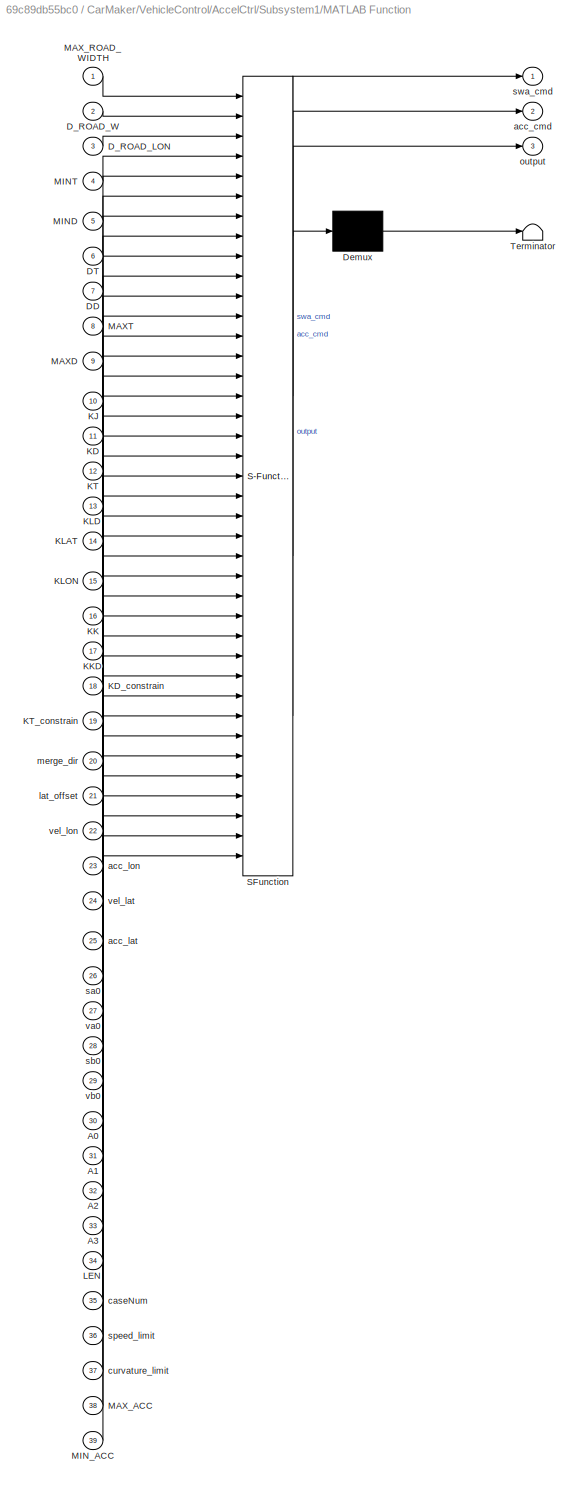
BLOCK [SubSystem] CarMaker/VehicleControl/AccelCtrl/Subsystem1/MATLAB Function
  ErrorFcn = Stateflow.Translate.translate
  PermitHierarchicalResolution = ExplicitOnly
  Ports = [39, 3]
  RequestExecContextInheritance = off
  SFBlockType = MATLAB Function
  TreatAsAtomicUnit = on
BLOCK [Demux] CarMaker/VehicleControl/AccelCtrl/Subsystem1/MATLAB Function/ Demux 
  Outputs = 1
  Ports = [1, 1]
BLOCK [S-Function] CarMaker/VehicleControl/AccelCtrl/Subsystem1/MATLAB Function/ SFunction 
  EnableBusSupport = off
  FunctionName = sf_sfun
  PortCounts = [39 4]
  Ports = [39, 4]
  SFcnIsStateOwnerBlock = off
  SFunctionDeploymentMode = off
  Tag = Stateflow S-Function 5
BLOCK [Terminator] CarMaker/VehicleControl/AccelCtrl/Subsystem1/MATLAB Function/ Terminator 
BLOCK [Inport] CarMaker/VehicleControl/AccelCtrl/Subsystem1/MATLAB Function/A0
  IconDisplay = Port number
  Port = 30
BLOCK [Inport] CarMaker/VehicleControl/AccelCtrl/Subsystem1/MATLAB Function/A1
  IconDisplay = Port number
  Port = 31
BLOCK [Inport] CarMaker/VehicleControl/AccelCtrl/Subsystem1/MATLAB Function/A2
  IconDisplay = Port number
  Port = 32
BLOCK [Inport] CarMaker/VehicleControl/AccelCtrl/Subsystem1/MATLAB Function/A3
  IconDisplay = Port number
  Port = 33
BLOCK [Inport] CarMaker/VehicleControl/AccelCtrl/Subsystem1/MATLAB Function/DD
  IconDisplay = Port number
  Port = 7
BLOCK [Inport] CarMaker/VehicleControl/AccelCtrl/Subsystem1/MATLAB Function/DT
  IconDisplay = Port number
  Port = 6
BLOCK [Inport] CarMaker/VehicleControl/AccelCtrl/Subsystem1/MATLAB Function/D_ROAD_LON
  IconDisplay = Port number
  Port = 3
BLOCK [Inport] CarMaker/VehicleControl/AccelCtrl/Subsystem1/MATLAB Function/D_ROAD_W
  IconDisplay = Port number
  Port = 2
BLOCK [Inport] CarMaker/VehicleControl/AccelCtrl/Subsystem1/MATLAB Function/KD
  IconDisplay = Port number
  Port = 11
BLOCK [Inport] CarMaker/VehicleControl/AccelCtrl/Subsystem1/MATLAB Function/KD_constrain
  IconDisplay = Port number
  Port = 18
BLOCK [Inport] CarMaker/VehicleControl/AccelCtrl/Subsystem1/MATLAB Function/KJ
  IconDisplay = Port number
  Port = 10
BLOCK [Inport] CarMaker/VehicleControl/AccelCtrl/Subsystem1/MATLAB Function/KK
  IconDisplay = Port number
  Port = 16
BLOCK [Inport] CarMaker/VehicleControl/AccelCtrl/Subsystem1/MATLAB Function/KKD
  IconDisplay = Port number
  Port = 17
BLOCK [Inport] CarMaker/VehicleControl/AccelCtrl/Subsystem1/MATLAB Function/KLAT
  IconDisplay = Port number
  Port = 14
BLOCK [Inport] CarMaker/VehicleControl/AccelCtrl/Subsystem1/MATLAB Function/KLD
  IconDisplay = Port number
  Port = 13
BLOCK [Inport] CarMaker/VehicleControl/AccelCtrl/Subsystem1/MATLAB Function/KLON
  IconDisplay = Port number
  Port = 15
BLOCK [Inport] CarMaker/VehicleControl/AccelCtrl/Subsystem1/MATLAB Function/KT
  IconDisplay = Port number
  Port = 12
BLOCK [Inport] CarMaker/VehicleControl/AccelCtrl/Subsystem1/MATLAB Function/KT_constrain
  IconDisplay = Port number
  Port = 19
BLOCK [Inport] CarMaker/VehicleControl/AccelCtrl/Subsystem1/MATLAB Function/LEN
  IconDisplay = Port number
  Port = 34
BLOCK [Inport] CarMaker/VehicleControl/AccelCtrl/Subsystem1/MATLAB Function/MAXD
  IconDisplay = Port number
  Port = 9
BLOCK [Inport] CarMaker/VehicleControl/AccelCtrl/Subsystem1/MATLAB Function/MAXT
  IconDisplay = Port number
  Port = 8
BLOCK [Inport] CarMaker/VehicleControl/AccelCtrl/Subsystem1/MATLAB Function/MAX_ACC
  IconDisplay = Port number
  Port = 38
BLOCK [Inport] CarMaker/VehicleControl/AccelCtrl/Subsystem1/MATLAB Function/MAX_ROAD_WIDTH
  IconDisplay = Port number
BLOCK [Inport] CarMaker/VehicleControl/AccelCtrl/Subsystem1/MATLAB Function/MIND
  IconDisplay = Port number
  Port = 5
BLOCK [Inport] CarMaker/VehicleControl/AccelCtrl/Subsystem1/MATLAB Function/MINT
  IconDisplay = Port number
  Port = 4
BLOCK [Inport] CarMaker/VehicleControl/AccelCtrl/Subsystem1/MATLAB Function/MIN_ACC
  IconDisplay = Port number
  Port = 39
BLOCK [Outport] CarMaker/VehicleControl/AccelCtrl/Subsystem1/MATLAB Function/acc_cmd
  IconDisplay = Port number
  Port = 2
BLOCK [Inport] CarMaker/VehicleControl/AccelCtrl/Subsystem1/MATLAB Function/acc_lat
  IconDisplay = Port number
  Port = 25
BLOCK [Inport] CarMaker/VehicleControl/AccelCtrl/Subsystem1/MATLAB Function/acc_lon
  IconDisplay = Port number
  Port = 23
BLOCK [Inport] CarMaker/VehicleControl/AccelCtrl/Subsystem1/MATLAB Function/caseNum
  IconDisplay = Port number
  Port = 35
BLOCK [Inport] CarMaker/VehicleControl/AccelCtrl/Subsystem1/MATLAB Function/curvature_limit
  IconDisplay = Port number
  Port = 37
BLOCK [Inport] CarMaker/VehicleControl/AccelCtrl/Subsystem1/MATLAB Function/lat_offset
  IconDisplay = Port number
  Port = 21
BLOCK [Inport] CarMaker/VehicleControl/AccelCtrl/Subsystem1/MATLAB Function/merge_dir
  IconDisplay = Port number
  Port = 20
BLOCK [Outport] CarMaker/VehicleControl/AccelCtrl/Subsystem1/MATLAB Function/output
  IconDisplay = Port number
  Port = 3
BLOCK [Inport] CarMaker/VehicleControl/AccelCtrl/Subsystem1/MATLAB Function/sa0
  IconDisplay = Port number
  Port = 26
BLOCK [Inport] CarMaker/VehicleControl/AccelCtrl/Subsystem1/MATLAB Function/sb0
  IconDisplay = Port number
  Port = 28
BLOCK [Inport] CarMaker/VehicleControl/AccelCtrl/Subsystem1/MATLAB Function/speed_limit
  IconDisplay = Port number
  Port = 36
BLOCK [Outport] CarMaker/VehicleControl/AccelCtrl/Subsystem1/MATLAB Function/swa_cmd
  IconDisplay = Port number
BLOCK [Inport] CarMaker/VehicleControl/AccelCtrl/Subsystem1/MATLAB Function/va0
  IconDisplay = Port number
  Port = 27
BLOCK [Inport] CarMaker/VehicleControl/AccelCtrl/Subsystem1/MATLAB Function/vb0
  IconDisplay = Port number
  Port = 29
BLOCK [Inport] CarMaker/VehicleControl/AccelCtrl/Subsystem1/MATLAB Function/vel_lat
  IconDisplay = Port number
  Port = 24
BLOCK [Inport] CarMaker/VehicleControl/AccelCtrl/Subsystem1/MATLAB Function/vel_lon
  IconDisplay = Port number
  Port = 22
BLOCK [TriggerPort] CarMaker/VehicleControl/AccelCtrl/Subsystem1/Trigger
  PortDimensions = 1
  Ports = []
  StatesWhenEnabling = held
  VariantControl = Variant
BLOCK [Outport] CarMaker/VehicleControl/AccelCtrl/Subsystem1/cx
  IconDisplay = Port number
BLOCK [Outport] CarMaker/VehicleControl/AccelCtrl/Subsystem1/cy
  IconDisplay = Port number
  Port = 2
BLOCK [Outport] CarMaker/VehicleControl/AccelCtrl/Subsystem1/len 
  IconDisplay = Port number
  Port = 3
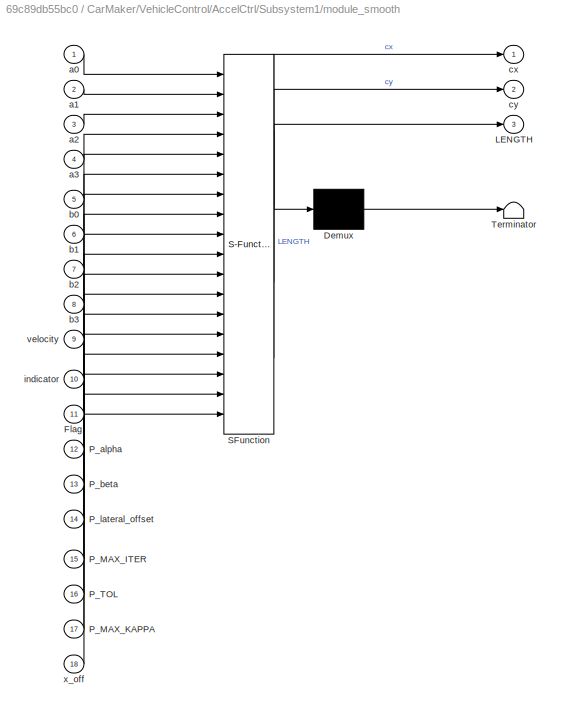
BLOCK [SubSystem] CarMaker/VehicleControl/AccelCtrl/Subsystem1/module_smooth 
  ErrorFcn = Stateflow.Translate.translate
  PermitHierarchicalResolution = ExplicitOnly
  Ports = [18, 3]
  RequestExecContextInheritance = off
  SFBlockType = MATLAB Function
  TreatAsAtomicUnit = on
BLOCK [Demux] CarMaker/VehicleControl/AccelCtrl/Subsystem1/module_smooth / Demux 
  Outputs = 1
  Ports = [1, 1]
BLOCK [S-Function] CarMaker/VehicleControl/AccelCtrl/Subsystem1/module_smooth / SFunction 
  EnableBusSupport = on
  FunctionName = sf_sfun
  PortCounts = [18 4]
  Ports = [18, 4]
  SFcnIsStateOwnerBlock = off
  SFunctionDeploymentMode = off
  Tag = Stateflow S-Function 2
BLOCK [Terminator] CarMaker/VehicleControl/AccelCtrl/Subsystem1/module_smooth / Terminator 
BLOCK [Inport] CarMaker/VehicleControl/AccelCtrl/Subsystem1/module_smooth /Flag
  IconDisplay = Port number
  Port = 11
BLOCK [Outport] CarMaker/VehicleControl/AccelCtrl/Subsystem1/module_smooth /LENGTH
  IconDisplay = Port number
  Port = 3
BLOCK [Inport] CarMaker/VehicleControl/AccelCtrl/Subsystem1/module_smooth /P_MAX_ITER
  IconDisplay = Port number
  Port = 15
BLOCK [Inport] CarMaker/VehicleControl/AccelCtrl/Subsystem1/module_smooth /P_MAX_KAPPA
  IconDisplay = Port number
  Port = 17
BLOCK [Inport] CarMaker/VehicleControl/AccelCtrl/Subsystem1/module_smooth /P_TOL
  IconDisplay = Port number
  Port = 16
BLOCK [Inport] CarMaker/VehicleControl/AccelCtrl/Subsystem1/module_smooth /P_alpha
  IconDisplay = Port number
  Port = 12
BLOCK [Inport] CarMaker/VehicleControl/AccelCtrl/Subsystem1/module_smooth /P_beta
  IconDisplay = Port number
  Port = 13
BLOCK [Inport] CarMaker/VehicleControl/AccelCtrl/Subsystem1/module_smooth /P_lateral_offset
  IconDisplay = Port number
  Port = 14
BLOCK [Inport] CarMaker/VehicleControl/AccelCtrl/Subsystem1/module_smooth /a0
  IconDisplay = Port number
BLOCK [Inport] CarMaker/VehicleControl/AccelCtrl/Subsystem1/module_smooth /a1
  IconDisplay = Port number
  Port = 2
BLOCK [Inport] CarMaker/VehicleControl/AccelCtrl/Subsystem1/module_smooth /a2
  IconDisplay = Port number
  Port = 3
BLOCK [Inport] CarMaker/VehicleControl/AccelCtrl/Subsystem1/module_smooth /a3
  IconDisplay = Port number
  Port = 4
BLOCK [Inport] CarMaker/VehicleControl/AccelCtrl/Subsystem1/module_smooth /b0
  IconDisplay = Port number
  Port = 5
BLOCK [Inport] CarMaker/VehicleControl/AccelCtrl/Subsystem1/module_smooth /b1
  IconDisplay = Port number
  Port = 6
BLOCK [Inport] CarMaker/VehicleControl/AccelCtrl/Subsystem1/module_smooth /b2
  IconDisplay = Port number
  Port = 7
BLOCK [Inport] CarMaker/VehicleControl/AccelCtrl/Subsystem1/module_smooth /b3
  IconDisplay = Port number
  Port = 8
BLOCK [Outport] CarMaker/VehicleControl/AccelCtrl/Subsystem1/module_smooth /cx
  IconDisplay = Port number
BLOCK [Outport] CarMaker/VehicleControl/AccelCtrl/Subsystem1/module_smooth /cy
  IconDisplay = Port number
  Port = 2
BLOCK [Inport] CarMaker/VehicleControl/AccelCtrl/Subsystem1/module_smooth /indicator
  IconDisplay = Port number
  Port = 10
BLOCK [Inport] CarMaker/VehicleControl/AccelCtrl/Subsystem1/module_smooth /velocity
  IconDisplay = Port number
  Port = 9
BLOCK [Inport] CarMaker/VehicleControl/AccelCtrl/Subsystem1/module_smooth /x_off
  IconDisplay = Port number
  Port = 18
BLOCK [Inport] CarMaker/VehicleControl/AccelCtrl/Subsystem1/v
  IconDisplay = Port number
BLOCK [Inport] CarMaker/VehicleControl/AccelCtrl/Subsystem1/x_off
  IconDisplay = Port number
  Port = 2
BLOCK [Switch] CarMaker/VehicleControl/AccelCtrl/Switch Ax Brake on//off
  InputSameDT = off
  Threshold = 1
BLOCK [Switch] CarMaker/VehicleControl/AccelCtrl/Switch Ax Gas on//off
  InputSameDT = off
  Threshold = 1
BLOCK [Terminator] CarMaker/VehicleControl/AccelCtrl/Terminator
BLOCK [Outport] CarMaker/VehicleControl/AccelCtrl/VC Brake
  IconDisplay = Port number
BLOCK [Outport] CarMaker/VehicleControl/AccelCtrl/VC Gas
  IconDisplay = Port number
  Port = 2
BLOCK [Outport] CarMaker/VehicleControl/AccelCtrl/VC Steering 
  IconDisplay = Port number
  Port = 3
BLOCK [Reference] CarMaker/VehicleControl/AccelCtrl/Write desired Ax  REF=CarMaker4SL/Write CM Dict
  Ports = [1]
  SourceBlock = CarMaker4SL/Write CM Dict
  SourceProductName = CarMaker4SL
  SourceType = Write CarMaker Dictionary Variable(s)
BLOCK [Reference] CarMaker/VehicleControl/AccelCtrl/lateral_off  REF=CarMaker4SL/Read CM Dict
  Ports = [0, 1]
  SourceBlock = CarMaker4SL/Read CM Dict
  SourceProductName = CarMaker4SL
  SourceType = Read CarMaker Dictionary Variable(s)
BLOCK [SubSystem] CarMaker/VehicleControl/AccelCtrl/lowerCtrl 
  Ports = [5, 2]
  RequestExecContextInheritance = off
BLOCK [Sum] CarMaker/VehicleControl/AccelCtrl/lowerCtrl /Add
  InputSameDT = off
  OutDataTypeStr = Inherit: Inherit via internal rule
  Ports = [2, 1]
  SaturateOnIntegerOverflow = off
BLOCK [Constant] CarMaker/VehicleControl/AccelCtrl/lowerCtrl /Constant
  Value = 8.7500
BLOCK [Delay] CarMaker/VehicleControl/AccelCtrl/lowerCtrl /Delay
  DelayLength = 1
  InputPortMap = u0
  Ports = [1, 1]
BLOCK [Terminator] CarMaker/VehicleControl/AccelCtrl/lowerCtrl /Terminator1
BLOCK [Inport] CarMaker/VehicleControl/AccelCtrl/lowerCtrl /cx
  IconDisplay = Port number
  VarSizeSig = Yes
BLOCK [Inport] CarMaker/VehicleControl/AccelCtrl/lowerCtrl /cy
  IconDisplay = Port number
  Port = 4
  VarSizeSig = Yes
BLOCK [SubSystem] CarMaker/VehicleControl/AccelCtrl/lowerCtrl /fcn 
  ErrorFcn = Stateflow.Translate.translate
  PermitHierarchicalResolution = ExplicitOnly
  Ports = [8, 3]
  RequestExecContextInheritance = off
  SFBlockType = MATLAB Function
  TreatAsAtomicUnit = on
BLOCK [Demux] CarMaker/VehicleControl/AccelCtrl/lowerCtrl /fcn / Demux 
  Outputs = 1
  Ports = [1, 1]
BLOCK [S-Function] CarMaker/VehicleControl/AccelCtrl/lowerCtrl /fcn / SFunction 
  EnableBusSupport = on
  FunctionName = sf_sfun
  PortCounts = [8 4]
  Ports = [8, 4]
  SFcnIsStateOwnerBlock = off
  SFunctionDeploymentMode = off
  Tag = Stateflow S-Function 1
BLOCK [Terminator] CarMaker/VehicleControl/AccelCtrl/lowerCtrl /fcn / Terminator 
BLOCK [Outport] CarMaker/VehicleControl/AccelCtrl/lowerCtrl /fcn /current_ind
  IconDisplay = Port number
  Port = 2
BLOCK [Inport] CarMaker/VehicleControl/AccelCtrl/lowerCtrl /fcn /cx
  IconDisplay = Port number
BLOCK [Inport] CarMaker/VehicleControl/AccelCtrl/lowerCtrl /fcn /cy
  IconDisplay = Port number
  Port = 2
BLOCK [Outport] CarMaker/VehicleControl/AccelCtrl/lowerCtrl /fcn /lat
  IconDisplay = Port number
  Port = 3
BLOCK [Inport] CarMaker/VehicleControl/AccelCtrl/lowerCtrl /fcn /lat_his
  IconDisplay = Port number
  Port = 8
BLOCK [Inport] CarMaker/VehicleControl/AccelCtrl/lowerCtrl /fcn /len
  IconDisplay = Port number
  Port = 3
BLOCK [Outport] CarMaker/VehicleControl/AccelCtrl/lowerCtrl /fcn /steering
  IconDisplay = Port number
BLOCK [Inport] CarMaker/VehicleControl/AccelCtrl/lowerCtrl /fcn /v
  IconDisplay = Port number
  Port = 6
BLOCK [Inport] CarMaker/VehicleControl/AccelCtrl/lowerCtrl /fcn /x_his
  IconDisplay = Port number
  Port = 7
BLOCK [Inport] CarMaker/VehicleControl/AccelCtrl/lowerCtrl /fcn /y_his
  IconDisplay = Port number
  Port = 5
BLOCK [Inport] CarMaker/VehicleControl/AccelCtrl/lowerCtrl /fcn /yaw
  IconDisplay = Port number
  Port = 4
BLOCK [Outport] CarMaker/VehicleControl/AccelCtrl/lowerCtrl /ind
  IconDisplay = Port number
  Port = 2
BLOCK [Outport] CarMaker/VehicleControl/AccelCtrl/lowerCtrl /lat
  IconDisplay = Port number
BLOCK [Reference] CarMaker/VehicleControl/AccelCtrl/lowerCtrl /lateral_off  REF=CarMaker4SL/Read CM Dict
  Ports = [0, 1]
  SourceBlock = CarMaker4SL/Read CM Dict
  SourceProductName = CarMaker4SL
  SourceType = Read CarMaker Dictionary Variable(s)
BLOCK [Reference] CarMaker/VehicleControl/AccelCtrl/lowerCtrl /lateral_off1  REF=CarMaker4SL/Read CM Dict
  Ports = [0, 1]
  SourceBlock = CarMaker4SL/Read CM Dict
  SourceProductName = CarMaker4SL
  SourceType = Read CarMaker Dictionary Variable(s)
BLOCK [Inport] CarMaker/VehicleControl/AccelCtrl/lowerCtrl /len
  IconDisplay = Port number
  Port = 5
BLOCK [Inport] CarMaker/VehicleControl/AccelCtrl/lowerCtrl /v
  IconDisplay = Port number
  Port = 3
BLOCK [Inport] CarMaker/VehicleControl/AccelCtrl/lowerCtrl /yaw
  IconDisplay = Port number
  Port = 2
BLOCK [Reference] CarMaker/VehicleControl/AccelCtrl/x_off  REF=CarMaker4SL/Read CM Dict
  Ports = [0, 1]
  SourceBlock = CarMaker4SL/Read CM Dict
  SourceProductName = CarMaker4SL
  SourceType = Read CarMaker Dictionary Variable(s)
BLOCK [BusCreator] CarMaker/VehicleControl/Bus Creator2
  DisplayOption = bar
  InheritFromInputs = on
  Inputs = 2
  Ports = [2, 1]
BLOCK [BusSelector] CarMaker/VehicleControl/Bus Selector
  OutputAsBus = off
  OutputSignals = DrivMan Brake,DrivMan Gas,DrivMan Steering Ang
  Ports = [1, 3]
BLOCK [SubSystem] CarMaker/VehicleControl/CreateBus Vhcl.Misc
  Ports = [1, 1]
  RequestExecContextInheritance = off
BLOCK [BusCreator] CarMaker/VehicleControl/CreateBus Vhcl.Misc/BusCreator
  InheritFromInputs = on
  Inputs = 11
  Ports = [11, 1]
BLOCK [Demux] CarMaker/VehicleControl/CreateBus Vhcl.Misc/Demux
  Outputs = 11
  Ports = [1, 11]
BLOCK [Inport] CarMaker/VehicleControl/CreateBus Vhcl.Misc/In1
  IconDisplay = Port number
BLOCK [Outport] CarMaker/VehicleControl/CreateBus Vhcl.Misc/Out1
  IconDisplay = Port number
BLOCK [SubSystem] CarMaker/VehicleControl/CreateBus Vhcl.Wheel.In
  Ports = [1, 1]
  RequestExecContextInheritance = off
BLOCK [BusCreator] CarMaker/VehicleControl/CreateBus Vhcl.Wheel.In/Bus Creator1
  DisplayOption = bar
  InheritFromInputs = on
  Inputs = 12
  Ports = [12, 1]
BLOCK [Demux] CarMaker/VehicleControl/CreateBus Vhcl.Wheel.In/Demux1
  Outputs = 12
  Ports = [1, 12]
BLOCK [Inport] CarMaker/VehicleControl/CreateBus Vhcl.Wheel.In/In1
  IconDisplay = Port number
BLOCK [Outport] CarMaker/VehicleControl/CreateBus Vhcl.Wheel.In/Out1
  IconDisplay = Port number
BLOCK [SubSystem] CarMaker/VehicleControl/CreateBus VhclCtrl
  Ports = [4, 1]
  RequestExecContextInheritance = off
BLOCK [SubSystem] CarMaker/VehicleControl/CreateBus VhclCtrl.PT
  Ports = [1, 1]
  RequestExecContextInheritance = off
BLOCK [BusCreator] CarMaker/VehicleControl/CreateBus VhclCtrl.PT/BusCreator1
  InheritFromInputs = on
  Inputs = 12
  Ports = [12, 1]
BLOCK [Demux] CarMaker/VehicleControl/CreateBus VhclCtrl.PT/Demux1
  Outputs = 12
  Ports = [1, 12]
BLOCK [Inport] CarMaker/VehicleControl/CreateBus VhclCtrl.PT/In1
  IconDisplay = Port number
BLOCK [Outport] CarMaker/VehicleControl/CreateBus VhclCtrl.PT/Out1
  IconDisplay = Port number
BLOCK [SubSystem] CarMaker/VehicleControl/CreateBus VhclCtrl.Steering
  Ports = [1, 1]
  RequestExecContextInheritance = off
BLOCK [BusCreator] CarMaker/VehicleControl/CreateBus VhclCtrl.Steering/Bus Creator
  DisplayOption = bar
  InheritFromInputs = on
  Inputs = 5
  Ports = [5, 1]
BLOCK [Demux] CarMaker/VehicleControl/CreateBus VhclCtrl.Steering/Demux
  Outputs = 5
  Ports = [1, 5]
BLOCK [Inport] CarMaker/VehicleControl/CreateBus VhclCtrl.Steering/In1
  IconDisplay = Port number
BLOCK [Outport] CarMaker/VehicleControl/CreateBus VhclCtrl.Steering/Out1
  IconDisplay = Port number
BLOCK [Inport] CarMaker/VehicleControl/CreateBus VhclCtrl/Brake
  IconDisplay = Port number
  Port = 2
BLOCK [BusCreator] CarMaker/VehicleControl/CreateBus VhclCtrl/BusCreator1
  InheritFromInputs = on
  Inputs = 29
  Ports = [29, 1]
BLOCK [Demux] CarMaker/VehicleControl/CreateBus VhclCtrl/Demux1
  Outputs = 29
  Ports = [1, 29]
BLOCK [Inport] CarMaker/VehicleControl/CreateBus VhclCtrl/Gas
  IconDisplay = Port number
  Port = 3
BLOCK [Inport] CarMaker/VehicleControl/CreateBus VhclCtrl/In
  IconDisplay = Port number
BLOCK [Outport] CarMaker/VehicleControl/CreateBus VhclCtrl/Out
  IconDisplay = Port number
BLOCK [Terminator] CarMaker/VehicleControl/CreateBus VhclCtrl/Terminator1
BLOCK [Terminator] CarMaker/VehicleControl/CreateBus VhclCtrl/Terminator2
BLOCK [Terminator] CarMaker/VehicleControl/CreateBus VhclCtrl/Terminator3
BLOCK [Inport] CarMaker/VehicleControl/CreateBus VhclCtrl/steering 
  IconDisplay = Port number
  Port = 4
BLOCK [Demux] CarMaker/VehicleControl/Demux2
  Outputs = 2
  Ports = [1, 2]
BLOCK [Inport] CarMaker/VehicleControl/DrivMan.In
  IconDisplay = Port number
  Port = 2
BLOCK [Inport] CarMaker/VehicleControl/Sync_In
  IconDisplay = Port number
BLOCK [Outport] CarMaker/VehicleControl/Sync_Out
  IconDisplay = Port number
BLOCK [S-Function] CarMaker/VehicleControl/VehicleControl
  EnableBusSupport = off
  FunctionName = CM_Sfun
  Parameters = 'VehicleControl'
  Ports = [2, 2]
  SFcnIsStateOwnerBlock = off
  SFunctionDeploymentMode = off
BLOCK [S-Function] CarMaker/VehicleControl/VehicleControlUpd
  EnableBusSupport = off
  FunctionName = CM_Sfun
  Parameters = 'VehicleControlUpd'
  Ports = [2, 7]
  SFcnIsStateOwnerBlock = off
  SFunctionDeploymentMode = off
BLOCK [Outport] CarMaker/VehicleControl/Vhcl.Misc
  IconDisplay = Port number
  Port = 5
BLOCK [Outport] CarMaker/VehicleControl/Vhcl.Model.Source
  IconDisplay = Port number
  Port = 2
BLOCK [Outport] CarMaker/VehicleControl/Vhcl.Wheel.In
  IconDisplay = Port number
  Port = 4
BLOCK [Outport] CarMaker/VehicleControl/VhclCtrl.Brake
  IconDisplay = Port number
  Port = 6
BLOCK [Outport] CarMaker/VehicleControl/VhclCtrl.PT
  IconDisplay = Port number
  Port = 7
BLOCK [Outport] CarMaker/VehicleControl/VhclCtrl.Steering
  IconDisplay = Port number
  Port = 3
BLOCK [Reference] Edit Model Configuration  REF=CarMaker4SL/Edit Model
Configuration
  Ports = []
  SourceBlock = CarMaker4SL/Edit Model\nConfiguration
  SourceProductName = CarMaker4SL
  UserDataPersistent = on
BLOCK [SubSystem] Open GUI
  LoadFcn = if ~length(which('cmself')), cmenv; end
  OpenFcn = cmblockmagic('gui_fix_display'); CM_Simulink
  Ports = []
  RequestExecContextInheritance = off
BLOCK [S-Function] Open GUI/S-Function
  EnableBusSupport = off
  FunctionName = cm_gui
  Ports = []
  SFcnIsStateOwnerBlock = off
  SFunctionDeploymentMode = off
ANNOTATION (root): Car Model with Acceleration Control & ACC
ANNOTATION (root): CarMaker 9.0.1
ANNOTATION (root): See the blocks in the CarMaker/VehicleControl for details. For use with testrun Examples/BasicFunctions/Simulink/CountryRoad_ACC.
ANNOTATION CarMaker/DrivMan: There's rarely a reason to override DrivMan signals. Use the VehicleControl interface for this purpose.
ANNOTATION CarMaker/IPG Vehicle/Brake: When replacing the entire braking system, be sure to disable the IPG brake model by using the brake model 'Model Manager off' in the vehicle GUI.
ANNOTATION CarMaker/IPG Vehicle/CarAndTrailer/Forces/External Suspension Forces: Insert your suspension forces model here.
ANNOTATION CarMaker/IPG Vehicle/CarAndTrailer/Forces/External Suspension Forces: The FSpring/FDamp/FStabi/FBuf outputs of this subsystem will be active if the SuspExtFrcs.Kind entry in the vehicle parameter file is either not present or is empty or has the value "CM4SL".
ANNOTATION CarMaker/IPG Vehicle/CarAndTrailer/Forces/Tires: The TireXX_Out signals will only be used if FileIdent is "CarMaker-Tire-CM4SL" in the tire parameter file! An example parameter file can be found in Data/Tire/DT_CM4SL_UserTire.
ANNOTATION CarMaker/IPG Vehicle/CarAndTrailer/Forces/Tires/TireFL: Insert your tire model here.
ANNOTATION CarMaker/IPG Vehicle/CarAndTrailer/Forces/Tires/TireFR: Insert your tire model here.
ANNOTATION CarMaker/IPG Vehicle/CarAndTrailer/Forces/Tires/TireRL: Insert your tire model here.
ANNOTATION CarMaker/IPG Vehicle/CarAndTrailer/Forces/Tires/TireRR: Insert your tire model here.
ANNOTATION CarMaker/IPG Vehicle/CarAndTrailer/Steering: When replacing the entire steering system, be sure to disable the IPG steering model by using the steering model 'Model Manager off' in the vehicle GUI.
ANNOTATION CarMaker/IPG Vehicle/PowerTrain: When replacing the entire powertrain, be sure to disable the IPG powertrain model by using the powertrain model 'Model Manager off' in the vehicle GUI.
ANNOTATION CarMaker/VehicleControl: When implementing a vehicle control model, be sure to add '-disablevehiclecontrol' to the command line arguments in the CarMaker Model Configuration block. Otherwise your model will possibly not see the original DrivMan signals on its inputs, but those of a currently activated C-coded vehicle control model instead.
ANNOTATION CarMaker/VehicleControl/AccelCtrl/ACC ECU/ACC Control/Distance Control Algorithm/desired ax: delta_ds
ANNOTATION CarMaker/VehicleControl/AccelCtrl/ACC ECU/ACC Control/Distance Control Algorithm/desired ax: desired ax = (target.ds-desired.distance)/(kd)+target.dv/kv
ANNOTATION CarMaker/VehicleControl/AccelCtrl/AccelCtrl: x
ANNOTATION CarMaker/VehicleControl/AccelCtrl/Sensor: No handling of input parameters with Simulink. All calculations are at C level. Access to relevant target over CarMaker DataDict quantities.
ANNOTATION CarMaker/VehicleControl/AccelCtrl/Sensor: relevant target detected
LINE CarMaker/CM_FIRST/BusCreator1:1 -> CarMaker/CM_FIRST/Env.Misc:1
LINE CarMaker/CM_FIRST/BusCreator2:1 -> CarMaker/CM_FIRST/Terminator:1
LINE CarMaker/CM_FIRST/Demux1:1 -> CarMaker/CM_FIRST/BusCreator1:1
LINE CarMaker/CM_FIRST/Demux1:10 -> CarMaker/CM_FIRST/BusCreator2:2
LINE CarMaker/CM_FIRST/Demux1:11 -> CarMaker/CM_FIRST/BusCreator2:3
LINE CarMaker/CM_FIRST/Demux1:12 -> CarMaker/CM_FIRST/BusCreator2:4
LINE CarMaker/CM_FIRST/Demux1:13 -> CarMaker/CM_FIRST/BusCreator2:5
LINE CarMaker/CM_FIRST/Demux1:14 -> CarMaker/CM_FIRST/BusCreator2:6
LINE CarMaker/CM_FIRST/Demux1:2 -> CarMaker/CM_FIRST/BusCreator1:2
LINE CarMaker/CM_FIRST/Demux1:3 -> CarMaker/CM_FIRST/BusCreator1:3
LINE CarMaker/CM_FIRST/Demux1:4 -> CarMaker/CM_FIRST/BusCreator1:4
LINE CarMaker/CM_FIRST/Demux1:5 -> CarMaker/CM_FIRST/BusCreator1:5
LINE CarMaker/CM_FIRST/Demux1:6 -> CarMaker/CM_FIRST/BusCreator1:6
LINE CarMaker/CM_FIRST/Demux1:7 -> CarMaker/CM_FIRST/BusCreator1:7
LINE CarMaker/CM_FIRST/Demux1:8 -> CarMaker/CM_FIRST/BusCreator1:8
LINE CarMaker/CM_FIRST/Demux1:9 -> CarMaker/CM_FIRST/BusCreator2:1
LINE CarMaker/CM_FIRST/Environment:1 -> CarMaker/CM_FIRST/Sync_Out:1
LINE CarMaker/CM_FIRST/Environment:2 -> CarMaker/CM_FIRST/Demux1:1
LINE CarMaker/CM_FIRST/IoIn:1 -> CarMaker/CM_FIRST/Environment:1
LINE CarMaker/CM_FIRST/Sync_In:1 -> CarMaker/CM_FIRST/IoIn:1
LINE CarMaker/CM_FIRST:1 -> CarMaker/DrivMan:1
LINE CarMaker/CM_FIRST:2 -> CarMaker/DrivMan:2
LINE CarMaker/CM_LAST/CM_User:1 -> CarMaker/CM_LAST/IoOut:1
LINE CarMaker/CM_LAST/IoOut:1 -> CarMaker/CM_LAST/Sync_Out:1
LINE CarMaker/CM_LAST/Sync_In:1 -> CarMaker/CM_LAST/CM_User:1
LINE CarMaker/CM_LAST:1 -> CarMaker/Terminator:1
LINE CarMaker/DrivMan/BusCreator:1 -> CarMaker/DrivMan/DrivMan.Out:1
LINE CarMaker/DrivMan/Demux:1 -> CarMaker/DrivMan/BusCreator:1
LINE CarMaker/DrivMan/Demux:10 -> CarMaker/DrivMan/BusCreator:10
LINE CarMaker/DrivMan/Demux:11 -> CarMaker/DrivMan/BusCreator:11
LINE CarMaker/DrivMan/Demux:12 -> CarMaker/DrivMan/BusCreator:12
LINE CarMaker/DrivMan/Demux:13 -> CarMaker/DrivMan/BusCreator:13
LINE CarMaker/DrivMan/Demux:14 -> CarMaker/DrivMan/BusCreator:14
LINE CarMaker/DrivMan/Demux:15 -> CarMaker/DrivMan/BusCreator:15
LINE CarMaker/DrivMan/Demux:16 -> CarMaker/DrivMan/BusCreator:16
LINE CarMaker/DrivMan/Demux:17 -> CarMaker/DrivMan/BusCreator:17
LINE CarMaker/DrivMan/Demux:2 -> CarMaker/DrivMan/BusCreator:2
LINE CarMaker/DrivMan/Demux:3 -> CarMaker/DrivMan/BusCreator:3
LINE CarMaker/DrivMan/Demux:4 -> CarMaker/DrivMan/BusCreator:4
LINE CarMaker/DrivMan/Demux:5 -> CarMaker/DrivMan/BusCreator:5
LINE CarMaker/DrivMan/Demux:6 -> CarMaker/DrivMan/BusCreator:6
LINE CarMaker/DrivMan/Demux:7 -> CarMaker/DrivMan/BusCreator:7
LINE CarMaker/DrivMan/Demux:8 -> CarMaker/DrivMan/BusCreator:8
LINE CarMaker/DrivMan/Demux:9 -> CarMaker/DrivMan/BusCreator:9
LINE CarMaker/DrivMan/DrivMan:1 -> CarMaker/DrivMan/Sync_Out:1
LINE CarMaker/DrivMan/DrivMan:2 -> CarMaker/DrivMan/Demux:1
LINE CarMaker/DrivMan/Env.Misc:1 -> CarMaker/DrivMan/DrivMan:2
LINE CarMaker/DrivMan/Sync_In:1 -> CarMaker/DrivMan/DrivMan:1
LINE CarMaker/DrivMan:1 -> CarMaker/VehicleControl:1
LINE CarMaker/DrivMan:2 -> CarMaker/VehicleControl:2
LINE CarMaker/Ground:1 -> CarMaker/CM_FIRST:1
LINE CarMaker/IPG Vehicle/Brake/Brake.IF.In:1 -> CarMaker/IPG Vehicle/Brake/Brake:2
LINE CarMaker/IPG Vehicle/Brake/Brake:1 -> CarMaker/IPG Vehicle/Brake/BrakeUpd:1
LINE CarMaker/IPG Vehicle/Brake/Brake:2 -> CarMaker/IPG Vehicle/Brake/Demux:1
LINE CarMaker/IPG Vehicle/Brake/BrakeUpd:1 -> CarMaker/IPG Vehicle/Brake/Sync_Out:1
LINE CarMaker/IPG Vehicle/Brake/BrakeUpd:2 -> CarMaker/IPG Vehicle/Brake/CreateBus Vhcl.Wheel.PT:1
LINE CarMaker/IPG Vehicle/Brake/BusCreator1:1 -> CarMaker/IPG Vehicle/Brake/BrakeUpd:2
LINE CarMaker/IPG Vehicle/Brake/CreateBus Vhcl.Wheel.PT/BusCreator1:1 -> CarMaker/IPG Vehicle/Brake/CreateBus Vhcl.Wheel.PT/Out:1
LINE CarMaker/IPG Vehicle/Brake/CreateBus Vhcl.Wheel.PT/Demux1:1 -> CarMaker/IPG Vehicle/Brake/CreateBus Vhcl.Wheel.PT/BusCreator1:1
LINE CarMaker/IPG Vehicle/Brake/CreateBus Vhcl.Wheel.PT/Demux1:10 -> CarMaker/IPG Vehicle/Brake/CreateBus Vhcl.Wheel.PT/BusCreator1:10
LINE CarMaker/IPG Vehicle/Brake/CreateBus Vhcl.Wheel.PT/Demux1:11 -> CarMaker/IPG Vehicle/Brake/CreateBus Vhcl.Wheel.PT/BusCreator1:11
LINE CarMaker/IPG Vehicle/Brake/CreateBus Vhcl.Wheel.PT/Demux1:12 -> CarMaker/IPG Vehicle/Brake/CreateBus Vhcl.Wheel.PT/BusCreator1:12
LINE CarMaker/IPG Vehicle/Brake/CreateBus Vhcl.Wheel.PT/Demux1:13 -> CarMaker/IPG Vehicle/Brake/CreateBus Vhcl.Wheel.PT/BusCreator1:13
LINE CarMaker/IPG Vehicle/Brake/CreateBus Vhcl.Wheel.PT/Demux1:14 -> CarMaker/IPG Vehicle/Brake/CreateBus Vhcl.Wheel.PT/BusCreator1:14
LINE CarMaker/IPG Vehicle/Brake/CreateBus Vhcl.Wheel.PT/Demux1:15 -> CarMaker/IPG Vehicle/Brake/CreateBus Vhcl.Wheel.PT/BusCreator1:15
LINE CarMaker/IPG Vehicle/Brake/CreateBus Vhcl.Wheel.PT/Demux1:16 -> CarMaker/IPG Vehicle/Brake/CreateBus Vhcl.Wheel.PT/BusCreator1:16
LINE CarMaker/IPG Vehicle/Brake/CreateBus Vhcl.Wheel.PT/Demux1:17 -> CarMaker/IPG Vehicle/Brake/CreateBus Vhcl.Wheel.PT/BusCreator1:17
LINE CarMaker/IPG Vehicle/Brake/CreateBus Vhcl.Wheel.PT/Demux1:18 -> CarMaker/IPG Vehicle/Brake/CreateBus Vhcl.Wheel.PT/BusCreator1:18
LINE CarMaker/IPG Vehicle/Brake/CreateBus Vhcl.Wheel.PT/Demux1:19 -> CarMaker/IPG Vehicle/Brake/CreateBus Vhcl.Wheel.PT/BusCreator1:19
LINE CarMaker/IPG Vehicle/Brake/CreateBus Vhcl.Wheel.PT/Demux1:2 -> CarMaker/IPG Vehicle/Brake/CreateBus Vhcl.Wheel.PT/BusCreator1:2
LINE CarMaker/IPG Vehicle/Brake/CreateBus Vhcl.Wheel.PT/Demux1:20 -> CarMaker/IPG Vehicle/Brake/CreateBus Vhcl.Wheel.PT/BusCreator1:20
LINE CarMaker/IPG Vehicle/Brake/CreateBus Vhcl.Wheel.PT/Demux1:3 -> CarMaker/IPG Vehicle/Brake/CreateBus Vhcl.Wheel.PT/BusCreator1:3
LINE CarMaker/IPG Vehicle/Brake/CreateBus Vhcl.Wheel.PT/Demux1:4 -> CarMaker/IPG Vehicle/Brake/CreateBus Vhcl.Wheel.PT/BusCreator1:4
LINE CarMaker/IPG Vehicle/Brake/CreateBus Vhcl.Wheel.PT/Demux1:5 -> CarMaker/IPG Vehicle/Brake/CreateBus Vhcl.Wheel.PT/BusCreator1:5
LINE CarMaker/IPG Vehicle/Brake/CreateBus Vhcl.Wheel.PT/Demux1:6 -> CarMaker/IPG Vehicle/Brake/CreateBus Vhcl.Wheel.PT/BusCreator1:6
LINE CarMaker/IPG Vehicle/Brake/CreateBus Vhcl.Wheel.PT/Demux1:7 -> CarMaker/IPG Vehicle/Brake/CreateBus Vhcl.Wheel.PT/BusCreator1:7
LINE CarMaker/IPG Vehicle/Brake/CreateBus Vhcl.Wheel.PT/Demux1:8 -> CarMaker/IPG Vehicle/Brake/CreateBus Vhcl.Wheel.PT/BusCreator1:8
LINE CarMaker/IPG Vehicle/Brake/CreateBus Vhcl.Wheel.PT/Demux1:9 -> CarMaker/IPG Vehicle/Brake/CreateBus Vhcl.Wheel.PT/BusCreator1:9
LINE CarMaker/IPG Vehicle/Brake/CreateBus Vhcl.Wheel.PT/In:1 -> CarMaker/IPG Vehicle/Brake/CreateBus Vhcl.Wheel.PT/Demux1:1
LINE CarMaker/IPG Vehicle/Brake/CreateBus Vhcl.Wheel.PT:1 -> CarMaker/IPG Vehicle/Brake/Vhcl.Wheel.PT:1
LINE CarMaker/IPG Vehicle/Brake/Demux:1 -> CarMaker/IPG Vehicle/Brake/BusCreator1:1
LINE CarMaker/IPG Vehicle/Brake/Demux:10 -> CarMaker/IPG Vehicle/Brake/BusCreator1:10
LINE CarMaker/IPG Vehicle/Brake/Demux:11 -> CarMaker/IPG Vehicle/Brake/BusCreator1:11
LINE CarMaker/IPG Vehicle/Brake/Demux:12 -> CarMaker/IPG Vehicle/Brake/BusCreator1:12
LINE CarMaker/IPG Vehicle/Brake/Demux:13 -> CarMaker/IPG Vehicle/Brake/BusCreator1:13
LINE CarMaker/IPG Vehicle/Brake/Demux:14 -> CarMaker/IPG Vehicle/Brake/BusCreator1:14
LINE CarMaker/IPG Vehicle/Brake/Demux:15 -> CarMaker/IPG Vehicle/Brake/BusCreator1:15
LINE CarMaker/IPG Vehicle/Brake/Demux:16 -> CarMaker/IPG Vehicle/Brake/BusCreator1:16
LINE CarMaker/IPG Vehicle/Brake/Demux:2 -> CarMaker/IPG Vehicle/Brake/BusCreator1:2
LINE CarMaker/IPG Vehicle/Brake/Demux:3 -> CarMaker/IPG Vehicle/Brake/BusCreator1:3
LINE CarMaker/IPG Vehicle/Brake/Demux:4 -> CarMaker/IPG Vehicle/Brake/BusCreator1:4
LINE CarMaker/IPG Vehicle/Brake/Demux:5 -> CarMaker/IPG Vehicle/Brake/BusCreator1:5
LINE CarMaker/IPG Vehicle/Brake/Demux:6 -> CarMaker/IPG Vehicle/Brake/BusCreator1:6
LINE CarMaker/IPG Vehicle/Brake/Demux:7 -> CarMaker/IPG Vehicle/Brake/BusCreator1:7
LINE CarMaker/IPG Vehicle/Brake/Demux:8 -> CarMaker/IPG Vehicle/Brake/BusCreator1:8
LINE CarMaker/IPG Vehicle/Brake/Demux:9 -> CarMaker/IPG Vehicle/Brake/BusCreator1:9
LINE CarMaker/IPG Vehicle/Brake/Sync_In:1 -> CarMaker/IPG Vehicle/Brake/Brake:1
LINE CarMaker/IPG Vehicle/Brake/VhclCtrl.Brake:1 -> CarMaker/IPG Vehicle/Brake/Brake:3
LINE CarMaker/IPG Vehicle/Brake:1 -> CarMaker/IPG Vehicle/PowerTrain:1
LINE CarMaker/IPG Vehicle/Brake:2 -> CarMaker/IPG Vehicle/PowerTrain:2
LINE CarMaker/IPG Vehicle/CarAndTrailer/CarAndTrailerUpd/Car.Hitch.FrcTrq:1 -> CarMaker/IPG Vehicle/CarAndTrailer/CarAndTrailerUpd/CarAndTrailerUpd:9
LINE CarMaker/IPG Vehicle/CarAndTrailer/CarAndTrailerUpd/CarAndTrailerUpd:1 -> CarMaker/IPG Vehicle/CarAndTrailer/CarAndTrailerUpd/Sync_Out:1
LINE CarMaker/IPG Vehicle/CarAndTrailer/CarAndTrailerUpd/CarAndTrailerUpd:2 -> CarMaker/IPG Vehicle/CarAndTrailer/CarAndTrailerUpd/CreateBus Brake.IF.In:1
LINE CarMaker/IPG Vehicle/CarAndTrailer/CarAndTrailerUpd/CreateBus Brake.IF.In/BusCreator:1 -> CarMaker/IPG Vehicle/CarAndTrailer/CarAndTrailerUpd/CreateBus Brake.IF.In/Out:1
LINE CarMaker/IPG Vehicle/CarAndTrailer/CarAndTrailerUpd/CreateBus Brake.IF.In/Demux:1 -> CarMaker/IPG Vehicle/CarAndTrailer/CarAndTrailerUpd/CreateBus Brake.IF.In/BusCreator:1
LINE CarMaker/IPG Vehicle/CarAndTrailer/CarAndTrailerUpd/CreateBus Brake.IF.In/Demux:2 -> CarMaker/IPG Vehicle/CarAndTrailer/CarAndTrailerUpd/CreateBus Brake.IF.In/BusCreator:2
LINE CarMaker/IPG Vehicle/CarAndTrailer/CarAndTrailerUpd/CreateBus Brake.IF.In/Demux:3 -> CarMaker/IPG Vehicle/CarAndTrailer/CarAndTrailerUpd/CreateBus Brake.IF.In/BusCreator:3
LINE CarMaker/IPG Vehicle/CarAndTrailer/CarAndTrailerUpd/CreateBus Brake.IF.In/Demux:4 -> CarMaker/IPG Vehicle/CarAndTrailer/CarAndTrailerUpd/CreateBus Brake.IF.In/BusCreator:4
LINE CarMaker/IPG Vehicle/CarAndTrailer/CarAndTrailerUpd/CreateBus Brake.IF.In/Demux:5 -> CarMaker/IPG Vehicle/CarAndTrailer/CarAndTrailerUpd/CreateBus Brake.IF.In/BusCreator:5
LINE CarMaker/IPG Vehicle/CarAndTrailer/CarAndTrailerUpd/CreateBus Brake.IF.In/Demux:6 -> CarMaker/IPG Vehicle/CarAndTrailer/CarAndTrailerUpd/CreateBus Brake.IF.In/BusCreator:6
LINE CarMaker/IPG Vehicle/CarAndTrailer/CarAndTrailerUpd/CreateBus Brake.IF.In/Demux:7 -> CarMaker/IPG Vehicle/CarAndTrailer/CarAndTrailerUpd/CreateBus Brake.IF.In/BusCreator:7
LINE CarMaker/IPG Vehicle/CarAndTrailer/CarAndTrailerUpd/CreateBus Brake.IF.In/Demux:8 -> CarMaker/IPG Vehicle/CarAndTrailer/CarAndTrailerUpd/CreateBus Brake.IF.In/BusCreator:8
LINE CarMaker/IPG Vehicle/CarAndTrailer/CarAndTrailerUpd/CreateBus Brake.IF.In/Demux:9 -> CarMaker/IPG Vehicle/CarAndTrailer/CarAndTrailerUpd/CreateBus Brake.IF.In/BusCreator:9
LINE CarMaker/IPG Vehicle/CarAndTrailer/CarAndTrailerUpd/CreateBus Brake.IF.In/In:1 -> CarMaker/IPG Vehicle/CarAndTrailer/CarAndTrailerUpd/CreateBus Brake.IF.In/Demux:1
LINE CarMaker/IPG Vehicle/CarAndTrailer/CarAndTrailerUpd/CreateBus Brake.IF.In:1 -> CarMaker/IPG Vehicle/CarAndTrailer/CarAndTrailerUpd/Brake.IF.In:1
LINE CarMaker/IPG Vehicle/CarAndTrailer/CarAndTrailerUpd/Sync_In:1 -> CarMaker/IPG Vehicle/CarAndTrailer/CarAndTrailerUpd/CarAndTrailerUpd:1
LINE CarMaker/IPG Vehicle/CarAndTrailer/CarAndTrailerUpd/Vhcl.Fr1A:1 -> CarMaker/IPG Vehicle/CarAndTrailer/CarAndTrailerUpd/CarAndTrailerUpd:10
LINE CarMaker/IPG Vehicle/CarAndTrailer/CarAndTrailerUpd/Vhcl.Motion:1 -> CarMaker/IPG Vehicle/CarAndTrailer/CarAndTrailerUpd/CarAndTrailerUpd:3
LINE CarMaker/IPG Vehicle/CarAndTrailer/CarAndTrailerUpd/Vhcl.PoI:1 -> CarMaker/IPG Vehicle/CarAndTrailer/CarAndTrailerUpd/CarAndTrailerUpd:4
LINE CarMaker/IPG Vehicle/CarAndTrailer/CarAndTrailerUpd/Vhcl.Steering:1 -> CarMaker/IPG Vehicle/CarAndTrailer/CarAndTrailerUpd/CarAndTrailerUpd:2
LINE CarMaker/IPG Vehicle/CarAndTrailer/CarAndTrailerUpd/Vhcl.Wheel.FL:1 -> CarMaker/IPG Vehicle/CarAndTrailer/CarAndTrailerUpd/CarAndTrailerUpd:5
LINE CarMaker/IPG Vehicle/CarAndTrailer/CarAndTrailerUpd/Vhcl.Wheel.FR:1 -> CarMaker/IPG Vehicle/CarAndTrailer/CarAndTrailerUpd/CarAndTrailerUpd:6
LINE CarMaker/IPG Vehicle/CarAndTrailer/CarAndTrailerUpd/Vhcl.Wheel.RL:1 -> CarMaker/IPG Vehicle/CarAndTrailer/CarAndTrailerUpd/CarAndTrailerUpd:7
LINE CarMaker/IPG Vehicle/CarAndTrailer/CarAndTrailerUpd/Vhcl.Wheel.RR:1 -> CarMaker/IPG Vehicle/CarAndTrailer/CarAndTrailerUpd/CarAndTrailerUpd:8
LINE CarMaker/IPG Vehicle/CarAndTrailer/CarAndTrailerUpd:1 -> CarMaker/IPG Vehicle/CarAndTrailer/Sync_Out:1
LINE CarMaker/IPG Vehicle/CarAndTrailer/CarAndTrailerUpd:2 -> CarMaker/IPG Vehicle/CarAndTrailer/Brake.IF.In:1
LINE CarMaker/IPG Vehicle/CarAndTrailer/Forces/External Suspension Forces/Bus Creator1:1 -> CarMaker/IPG Vehicle/CarAndTrailer/Forces/External Suspension Forces/FDamp:1
LINE CarMaker/IPG Vehicle/CarAndTrailer/Forces/External Suspension Forces/Bus Creator2:1 -> CarMaker/IPG Vehicle/CarAndTrailer/Forces/External Suspension Forces/FSpring:1
LINE CarMaker/IPG Vehicle/CarAndTrailer/Forces/External Suspension Forces/Bus Creator3:1 -> CarMaker/IPG Vehicle/CarAndTrailer/Forces/External Suspension Forces/FStabi:1
LINE CarMaker/IPG Vehicle/CarAndTrailer/Forces/External Suspension Forces/Bus Creator4:1 -> CarMaker/IPG Vehicle/CarAndTrailer/Forces/External Suspension Forces/FBuf:1
LINE CarMaker/IPG Vehicle/CarAndTrailer/Forces/External Suspension Forces/Bus Creator5:1 -> CarMaker/IPG Vehicle/CarAndTrailer/Forces/External Suspension Forces/Terminator2:1
LINE CarMaker/IPG Vehicle/CarAndTrailer/Forces/External Suspension Forces/Bus Creator6:1 -> CarMaker/IPG Vehicle/CarAndTrailer/Forces/External Suspension Forces/Terminator3:1
LINE CarMaker/IPG Vehicle/CarAndTrailer/Forces/External Suspension Forces/Bus Creator7:1 -> CarMaker/IPG Vehicle/CarAndTrailer/Forces/External Suspension Forces/Terminator4:1
LINE CarMaker/IPG Vehicle/CarAndTrailer/Forces/External Suspension Forces/Bus Creator:1 -> CarMaker/IPG Vehicle/CarAndTrailer/Forces/External Suspension Forces/Terminator1:1
LINE CarMaker/IPG Vehicle/CarAndTrailer/Forces/External Suspension Forces/Demux1:1 -> CarMaker/IPG Vehicle/CarAndTrailer/Forces/External Suspension Forces/Bus Creator:1
LINE CarMaker/IPG Vehicle/CarAndTrailer/Forces/External Suspension Forces/Demux1:2 -> CarMaker/IPG Vehicle/CarAndTrailer/Forces/External Suspension Forces/Bus Creator:2
LINE CarMaker/IPG Vehicle/CarAndTrailer/Forces/External Suspension Forces/Demux1:3 -> CarMaker/IPG Vehicle/CarAndTrailer/Forces/External Suspension Forces/Bus Creator:3
LINE CarMaker/IPG Vehicle/CarAndTrailer/Forces/External Suspension Forces/Demux1:4 -> CarMaker/IPG Vehicle/CarAndTrailer/Forces/External Suspension Forces/Bus Creator:4
LINE CarMaker/IPG Vehicle/CarAndTrailer/Forces/External Suspension Forces/Demux1:5 -> CarMaker/IPG Vehicle/CarAndTrailer/Forces/External Suspension Forces/Bus Creator:5
LINE CarMaker/IPG Vehicle/CarAndTrailer/Forces/External Suspension Forces/Demux1:6 -> CarMaker/IPG Vehicle/CarAndTrailer/Forces/External Suspension Forces/Bus Creator:6
LINE CarMaker/IPG Vehicle/CarAndTrailer/Forces/External Suspension Forces/Demux1:7 -> CarMaker/IPG Vehicle/CarAndTrailer/Forces/External Suspension Forces/Bus Creator:7
LINE CarMaker/IPG Vehicle/CarAndTrailer/Forces/External Suspension Forces/Demux1:8 -> CarMaker/IPG Vehicle/CarAndTrailer/Forces/External Suspension Forces/Bus Creator:8
LINE CarMaker/IPG Vehicle/CarAndTrailer/Forces/External Suspension Forces/Demux2:1 -> CarMaker/IPG Vehicle/CarAndTrailer/Forces/External Suspension Forces/Bus Creator5:1
LINE CarMaker/IPG Vehicle/CarAndTrailer/Forces/External Suspension Forces/Demux2:2 -> CarMaker/IPG Vehicle/CarAndTrailer/Forces/External Suspension Forces/Bus Creator5:2
LINE CarMaker/IPG Vehicle/CarAndTrailer/Forces/External Suspension Forces/Demux2:3 -> CarMaker/IPG Vehicle/CarAndTrailer/Forces/External Suspension Forces/Bus Creator5:3
LINE CarMaker/IPG Vehicle/CarAndTrailer/Forces/External Suspension Forces/Demux2:4 -> CarMaker/IPG Vehicle/CarAndTrailer/Forces/External Suspension Forces/Bus Creator5:4
LINE CarMaker/IPG Vehicle/CarAndTrailer/Forces/External Suspension Forces/Demux2:5 -> CarMaker/IPG Vehicle/CarAndTrailer/Forces/External Suspension Forces/Bus Creator5:5
LINE CarMaker/IPG Vehicle/CarAndTrailer/Forces/External Suspension Forces/Demux2:6 -> CarMaker/IPG Vehicle/CarAndTrailer/Forces/External Suspension Forces/Bus Creator5:6
LINE CarMaker/IPG Vehicle/CarAndTrailer/Forces/External Suspension Forces/Demux2:7 -> CarMaker/IPG Vehicle/CarAndTrailer/Forces/External Suspension Forces/Bus Creator5:7
LINE CarMaker/IPG Vehicle/CarAndTrailer/Forces/External Suspension Forces/Demux2:8 -> CarMaker/IPG Vehicle/CarAndTrailer/Forces/External Suspension Forces/Bus Creator5:8
LINE CarMaker/IPG Vehicle/CarAndTrailer/Forces/External Suspension Forces/Demux3:1 -> CarMaker/IPG Vehicle/CarAndTrailer/Forces/External Suspension Forces/Bus Creator6:1
LINE CarMaker/IPG Vehicle/CarAndTrailer/Forces/External Suspension Forces/Demux3:2 -> CarMaker/IPG Vehicle/CarAndTrailer/Forces/External Suspension Forces/Bus Creator6:2
LINE CarMaker/IPG Vehicle/CarAndTrailer/Forces/External Suspension Forces/Demux3:3 -> CarMaker/IPG Vehicle/CarAndTrailer/Forces/External Suspension Forces/Bus Creator6:3
LINE CarMaker/IPG Vehicle/CarAndTrailer/Forces/External Suspension Forces/Demux3:4 -> CarMaker/IPG Vehicle/CarAndTrailer/Forces/External Suspension Forces/Bus Creator6:4
LINE CarMaker/IPG Vehicle/CarAndTrailer/Forces/External Suspension Forces/Demux3:5 -> CarMaker/IPG Vehicle/CarAndTrailer/Forces/External Suspension Forces/Bus Creator6:5
LINE CarMaker/IPG Vehicle/CarAndTrailer/Forces/External Suspension Forces/Demux3:6 -> CarMaker/IPG Vehicle/CarAndTrailer/Forces/External Suspension Forces/Bus Creator6:6
LINE CarMaker/IPG Vehicle/CarAndTrailer/Forces/External Suspension Forces/Demux3:7 -> CarMaker/IPG Vehicle/CarAndTrailer/Forces/External Suspension Forces/Bus Creator6:7
LINE CarMaker/IPG Vehicle/CarAndTrailer/Forces/External Suspension Forces/Demux3:8 -> CarMaker/IPG Vehicle/CarAndTrailer/Forces/External Suspension Forces/Bus Creator6:8
LINE CarMaker/IPG Vehicle/CarAndTrailer/Forces/External Suspension Forces/Demux4:1 -> CarMaker/IPG Vehicle/CarAndTrailer/Forces/External Suspension Forces/Bus Creator7:1
LINE CarMaker/IPG Vehicle/CarAndTrailer/Forces/External Suspension Forces/Demux4:2 -> CarMaker/IPG Vehicle/CarAndTrailer/Forces/External Suspension Forces/Bus Creator7:2
LINE CarMaker/IPG Vehicle/CarAndTrailer/Forces/External Suspension Forces/Demux4:3 -> CarMaker/IPG Vehicle/CarAndTrailer/Forces/External Suspension Forces/Bus Creator7:3
LINE CarMaker/IPG Vehicle/CarAndTrailer/Forces/External Suspension Forces/Demux4:4 -> CarMaker/IPG Vehicle/CarAndTrailer/Forces/External Suspension Forces/Bus Creator7:4
LINE CarMaker/IPG Vehicle/CarAndTrailer/Forces/External Suspension Forces/Demux4:5 -> CarMaker/IPG Vehicle/CarAndTrailer/Forces/External Suspension Forces/Bus Creator7:5
LINE CarMaker/IPG Vehicle/CarAndTrailer/Forces/External Suspension Forces/Demux4:6 -> CarMaker/IPG Vehicle/CarAndTrailer/Forces/External Suspension Forces/Bus Creator7:6
LINE CarMaker/IPG Vehicle/CarAndTrailer/Forces/External Suspension Forces/Demux4:7 -> CarMaker/IPG Vehicle/CarAndTrailer/Forces/External Suspension Forces/Bus Creator7:7
LINE CarMaker/IPG Vehicle/CarAndTrailer/Forces/External Suspension Forces/Demux4:8 -> CarMaker/IPG Vehicle/CarAndTrailer/Forces/External Suspension Forces/Bus Creator7:8
LINE CarMaker/IPG Vehicle/CarAndTrailer/Forces/External Suspension Forces/Ground10:1 -> CarMaker/IPG Vehicle/CarAndTrailer/Forces/External Suspension Forces/Bus Creator3:3
LINE CarMaker/IPG Vehicle/CarAndTrailer/Forces/External Suspension Forces/Ground11:1 -> CarMaker/IPG Vehicle/CarAndTrailer/Forces/External Suspension Forces/Bus Creator3:4
LINE CarMaker/IPG Vehicle/CarAndTrailer/Forces/External Suspension Forces/Ground12:1 -> CarMaker/IPG Vehicle/CarAndTrailer/Forces/External Suspension Forces/Bus Creator4:3
LINE CarMaker/IPG Vehicle/CarAndTrailer/Forces/External Suspension Forces/Ground13:1 -> CarMaker/IPG Vehicle/CarAndTrailer/Forces/External Suspension Forces/Bus Creator4:4
LINE CarMaker/IPG Vehicle/CarAndTrailer/Forces/External Suspension Forces/Ground14:1 -> CarMaker/IPG Vehicle/CarAndTrailer/Forces/External Suspension Forces/Bus Creator4:1
LINE CarMaker/IPG Vehicle/CarAndTrailer/Forces/External Suspension Forces/Ground15:1 -> CarMaker/IPG Vehicle/CarAndTrailer/Forces/External Suspension Forces/Bus Creator4:2
LINE CarMaker/IPG Vehicle/CarAndTrailer/Forces/External Suspension Forces/Ground1:1 -> CarMaker/IPG Vehicle/CarAndTrailer/Forces/External Suspension Forces/Bus Creator2:2
LINE CarMaker/IPG Vehicle/CarAndTrailer/Forces/External Suspension Forces/Ground2:1 -> CarMaker/IPG Vehicle/CarAndTrailer/Forces/External Suspension Forces/Bus Creator2:3
LINE CarMaker/IPG Vehicle/CarAndTrailer/Forces/External Suspension Forces/Ground3:1 -> CarMaker/IPG Vehicle/CarAndTrailer/Forces/External Suspension Forces/Bus Creator2:4
LINE CarMaker/IPG Vehicle/CarAndTrailer/Forces/External Suspension Forces/Ground4:1 -> CarMaker/IPG Vehicle/CarAndTrailer/Forces/External Suspension Forces/Bus Creator1:1
LINE CarMaker/IPG Vehicle/CarAndTrailer/Forces/External Suspension Forces/Ground5:1 -> CarMaker/IPG Vehicle/CarAndTrailer/Forces/External Suspension Forces/Bus Creator1:2
LINE CarMaker/IPG Vehicle/CarAndTrailer/Forces/External Suspension Forces/Ground6:1 -> CarMaker/IPG Vehicle/CarAndTrailer/Forces/External Suspension Forces/Bus Creator1:3
LINE CarMaker/IPG Vehicle/CarAndTrailer/Forces/External Suspension Forces/Ground7:1 -> CarMaker/IPG Vehicle/CarAndTrailer/Forces/External Suspension Forces/Bus Creator1:4
LINE CarMaker/IPG Vehicle/CarAndTrailer/Forces/External Suspension Forces/Ground8:1 -> CarMaker/IPG Vehicle/CarAndTrailer/Forces/External Suspension Forces/Bus Creator3:1
LINE CarMaker/IPG Vehicle/CarAndTrailer/Forces/External Suspension Forces/Ground9:1 -> CarMaker/IPG Vehicle/CarAndTrailer/Forces/External Suspension Forces/Bus Creator3:2
LINE CarMaker/IPG Vehicle/CarAndTrailer/Forces/External Suspension Forces/Ground:1 -> CarMaker/IPG Vehicle/CarAndTrailer/Forces/External Suspension Forces/Bus Creator2:1
LINE CarMaker/IPG Vehicle/CarAndTrailer/Forces/External Suspension Forces/Sync_In:1 -> CarMaker/IPG Vehicle/CarAndTrailer/Forces/External Suspension Forces/Terminator12:1
LINE CarMaker/IPG Vehicle/CarAndTrailer/Forces/External Suspension Forces/lBuf:1 -> CarMaker/IPG Vehicle/CarAndTrailer/Forces/External Suspension Forces/Demux4:1
LINE CarMaker/IPG Vehicle/CarAndTrailer/Forces/External Suspension Forces/lSpring:1 -> CarMaker/IPG Vehicle/CarAndTrailer/Forces/External Suspension Forces/Demux1:1
LINE CarMaker/IPG Vehicle/CarAndTrailer/Forces/External Suspension Forces/lStabi:1 -> CarMaker/IPG Vehicle/CarAndTrailer/Forces/External Suspension Forces/Demux3:1
LINE CarMaker/IPG Vehicle/CarAndTrailer/Forces/External Suspension Forces/vDamp:1 -> CarMaker/IPG Vehicle/CarAndTrailer/Forces/External Suspension Forces/Demux2:1
LINE CarMaker/IPG Vehicle/CarAndTrailer/Forces/External Suspension Forces:1 -> CarMaker/IPG Vehicle/CarAndTrailer/Forces/FSpring:1
LINE CarMaker/IPG Vehicle/CarAndTrailer/Forces/External Suspension Forces:2 -> CarMaker/IPG Vehicle/CarAndTrailer/Forces/FDamp:1
LINE CarMaker/IPG Vehicle/CarAndTrailer/Forces/External Suspension Forces:3 -> CarMaker/IPG Vehicle/CarAndTrailer/Forces/FStabi:1
LINE CarMaker/IPG Vehicle/CarAndTrailer/Forces/External Suspension Forces:4 -> CarMaker/IPG Vehicle/CarAndTrailer/Forces/FBuf:1
NET CarMaker/IPG Vehicle/CarAndTrailer/Forces/Sync_In:1 -> CarMaker/IPG Vehicle/CarAndTrailer/Forces/External Suspension Forces:1, CarMaker/IPG Vehicle/CarAndTrailer/Forces/Tires:1, CarMaker/IPG Vehicle/CarAndTrailer/Forces/Vehicle Forces:1
LINE CarMaker/IPG Vehicle/CarAndTrailer/Forces/TireFL_In:1 -> CarMaker/IPG Vehicle/CarAndTrailer/Forces/Tires:2
LINE CarMaker/IPG Vehicle/CarAndTrailer/Forces/TireFR_In:1 -> CarMaker/IPG Vehicle/CarAndTrailer/Forces/Tires:3
LINE CarMaker/IPG Vehicle/CarAndTrailer/Forces/TireRL_In:1 -> CarMaker/IPG Vehicle/CarAndTrailer/Forces/Tires:4
LINE CarMaker/IPG Vehicle/CarAndTrailer/Forces/TireRR_In:1 -> CarMaker/IPG Vehicle/CarAndTrailer/Forces/Tires:5
LINE CarMaker/IPG Vehicle/CarAndTrailer/Forces/Tires/Bus Creator1:1 -> CarMaker/IPG Vehicle/CarAndTrailer/Forces/Tires/TireFR_Out:1
LINE CarMaker/IPG Vehicle/CarAndTrailer/Forces/Tires/Bus Creator2:1 -> CarMaker/IPG Vehicle/CarAndTrailer/Forces/Tires/TireRL_Out:1
LINE CarMaker/IPG Vehicle/CarAndTrailer/Forces/Tires/Bus Creator3:1 -> CarMaker/IPG Vehicle/CarAndTrailer/Forces/Tires/TireFL_Out:1
LINE CarMaker/IPG Vehicle/CarAndTrailer/Forces/Tires/Bus Creator4:1 -> CarMaker/IPG Vehicle/CarAndTrailer/Forces/Tires/TireRR_Out:1
LINE CarMaker/IPG Vehicle/CarAndTrailer/Forces/Tires/Demux1:1 -> CarMaker/IPG Vehicle/CarAndTrailer/Forces/Tires/TireFR:2
LINE CarMaker/IPG Vehicle/CarAndTrailer/Forces/Tires/Demux1:2 -> CarMaker/IPG Vehicle/CarAndTrailer/Forces/Tires/TireFR:3
LINE CarMaker/IPG Vehicle/CarAndTrailer/Forces/Tires/Demux1:3 -> CarMaker/IPG Vehicle/CarAndTrailer/Forces/Tires/TireFR:4
LINE CarMaker/IPG Vehicle/CarAndTrailer/Forces/Tires/Demux1:4 -> CarMaker/IPG Vehicle/CarAndTrailer/Forces/Tires/TireFR:5
LINE CarMaker/IPG Vehicle/CarAndTrailer/Forces/Tires/Demux1:5 -> CarMaker/IPG Vehicle/CarAndTrailer/Forces/Tires/TireFR:6
LINE CarMaker/IPG Vehicle/CarAndTrailer/Forces/Tires/Demux1:6 -> CarMaker/IPG Vehicle/CarAndTrailer/Forces/Tires/TireFR:7
LINE CarMaker/IPG Vehicle/CarAndTrailer/Forces/Tires/Demux1:7 -> CarMaker/IPG Vehicle/CarAndTrailer/Forces/Tires/TireFR:8
LINE CarMaker/IPG Vehicle/CarAndTrailer/Forces/Tires/Demux2:1 -> CarMaker/IPG Vehicle/CarAndTrailer/Forces/Tires/TireRL:2
LINE CarMaker/IPG Vehicle/CarAndTrailer/Forces/Tires/Demux2:2 -> CarMaker/IPG Vehicle/CarAndTrailer/Forces/Tires/TireRL:3
LINE CarMaker/IPG Vehicle/CarAndTrailer/Forces/Tires/Demux2:3 -> CarMaker/IPG Vehicle/CarAndTrailer/Forces/Tires/TireRL:4
LINE CarMaker/IPG Vehicle/CarAndTrailer/Forces/Tires/Demux2:4 -> CarMaker/IPG Vehicle/CarAndTrailer/Forces/Tires/TireRL:5
LINE CarMaker/IPG Vehicle/CarAndTrailer/Forces/Tires/Demux2:5 -> CarMaker/IPG Vehicle/CarAndTrailer/Forces/Tires/TireRL:6
LINE CarMaker/IPG Vehicle/CarAndTrailer/Forces/Tires/Demux2:6 -> CarMaker/IPG Vehicle/CarAndTrailer/Forces/Tires/TireRL:7
LINE CarMaker/IPG Vehicle/CarAndTrailer/Forces/Tires/Demux2:7 -> CarMaker/IPG Vehicle/CarAndTrailer/Forces/Tires/TireRL:8
LINE CarMaker/IPG Vehicle/CarAndTrailer/Forces/Tires/Demux3:1 -> CarMaker/IPG Vehicle/CarAndTrailer/Forces/Tires/TireRR:2
LINE CarMaker/IPG Vehicle/CarAndTrailer/Forces/Tires/Demux3:2 -> CarMaker/IPG Vehicle/CarAndTrailer/Forces/Tires/TireRR:3
LINE CarMaker/IPG Vehicle/CarAndTrailer/Forces/Tires/Demux3:3 -> CarMaker/IPG Vehicle/CarAndTrailer/Forces/Tires/TireRR:4
LINE CarMaker/IPG Vehicle/CarAndTrailer/Forces/Tires/Demux3:4 -> CarMaker/IPG Vehicle/CarAndTrailer/Forces/Tires/TireRR:5
LINE CarMaker/IPG Vehicle/CarAndTrailer/Forces/Tires/Demux3:5 -> CarMaker/IPG Vehicle/CarAndTrailer/Forces/Tires/TireRR:6
LINE CarMaker/IPG Vehicle/CarAndTrailer/Forces/Tires/Demux3:6 -> CarMaker/IPG Vehicle/CarAndTrailer/Forces/Tires/TireRR:7
LINE CarMaker/IPG Vehicle/CarAndTrailer/Forces/Tires/Demux3:7 -> CarMaker/IPG Vehicle/CarAndTrailer/Forces/Tires/TireRR:8
LINE CarMaker/IPG Vehicle/CarAndTrailer/Forces/Tires/Demux8:1 -> CarMaker/IPG Vehicle/CarAndTrailer/Forces/Tires/TireFL:2
LINE CarMaker/IPG Vehicle/CarAndTrailer/Forces/Tires/Demux8:2 -> CarMaker/IPG Vehicle/CarAndTrailer/Forces/Tires/TireFL:3
LINE CarMaker/IPG Vehicle/CarAndTrailer/Forces/Tires/Demux8:3 -> CarMaker/IPG Vehicle/CarAndTrailer/Forces/Tires/TireFL:4
LINE CarMaker/IPG Vehicle/CarAndTrailer/Forces/Tires/Demux8:4 -> CarMaker/IPG Vehicle/CarAndTrailer/Forces/Tires/TireFL:5
LINE CarMaker/IPG Vehicle/CarAndTrailer/Forces/Tires/Demux8:5 -> CarMaker/IPG Vehicle/CarAndTrailer/Forces/Tires/TireFL:6
LINE CarMaker/IPG Vehicle/CarAndTrailer/Forces/Tires/Demux8:6 -> CarMaker/IPG Vehicle/CarAndTrailer/Forces/Tires/TireFL:7
LINE CarMaker/IPG Vehicle/CarAndTrailer/Forces/Tires/Demux8:7 -> CarMaker/IPG Vehicle/CarAndTrailer/Forces/Tires/TireFL:8
NET CarMaker/IPG Vehicle/CarAndTrailer/Forces/Tires/Sync_In:1 -> CarMaker/IPG Vehicle/CarAndTrailer/Forces/Tires/TireFL:1, CarMaker/IPG Vehicle/CarAndTrailer/Forces/Tires/TireFR:1, CarMaker/IPG Vehicle/CarAndTrailer/Forces/Tires/TireRL:1, CarMaker/IPG Vehicle/CarAndTrailer/Forces/Tires/TireRR:1
LINE CarMaker/IPG Vehicle/CarAndTrailer/Forces/Tires/TireFL/Ground10:1 -> CarMaker/IPG Vehicle/CarAndTrailer/Forces/Tires/TireFL/rBelt_eff:1
LINE CarMaker/IPG Vehicle/CarAndTrailer/Forces/Tires/TireFL/Ground11:1 -> CarMaker/IPG Vehicle/CarAndTrailer/Forces/Tires/TireFL/vBelt:1
LINE CarMaker/IPG Vehicle/CarAndTrailer/Forces/Tires/TireFL/Ground1:1 -> CarMaker/IPG Vehicle/CarAndTrailer/Forces/Tires/TireFL/Slp:1
LINE CarMaker/IPG Vehicle/CarAndTrailer/Forces/Tires/TireFL/Ground2:1 -> CarMaker/IPG Vehicle/CarAndTrailer/Forces/Tires/TireFL/Alpha:1
LINE CarMaker/IPG Vehicle/CarAndTrailer/Forces/Tires/TireFL/Ground3:1 -> CarMaker/IPG Vehicle/CarAndTrailer/Forces/Tires/TireFL/LongFrc:1
LINE CarMaker/IPG Vehicle/CarAndTrailer/Forces/Tires/TireFL/Ground4:1 -> CarMaker/IPG Vehicle/CarAndTrailer/Forces/Tires/TireFL/SideFrc:1
LINE CarMaker/IPG Vehicle/CarAndTrailer/Forces/Tires/TireFL/Ground5:1 -> CarMaker/IPG Vehicle/CarAndTrailer/Forces/Tires/TireFL/OverturnTrq:1
LINE CarMaker/IPG Vehicle/CarAndTrailer/Forces/Tires/TireFL/Ground6:1 -> CarMaker/IPG Vehicle/CarAndTrailer/Forces/Tires/TireFL/LoadFrc:1
LINE CarMaker/IPG Vehicle/CarAndTrailer/Forces/Tires/TireFL/Ground7:1 -> CarMaker/IPG Vehicle/CarAndTrailer/Forces/Tires/TireFL/RollResist:1
LINE CarMaker/IPG Vehicle/CarAndTrailer/Forces/Tires/TireFL/Ground8:1 -> CarMaker/IPG Vehicle/CarAndTrailer/Forces/Tires/TireFL/AlignTrq:1
LINE CarMaker/IPG Vehicle/CarAndTrailer/Forces/Tires/TireFL/Ground9:1 -> CarMaker/IPG Vehicle/CarAndTrailer/Forces/Tires/TireFL/TurnSlp:1
LINE CarMaker/IPG Vehicle/CarAndTrailer/Forces/Tires/TireFL/InclinAngle:1 -> CarMaker/IPG Vehicle/CarAndTrailer/Forces/Tires/TireFL/Terminator4:1
LINE CarMaker/IPG Vehicle/CarAndTrailer/Forces/Tires/TireFL/Load:1 -> CarMaker/IPG Vehicle/CarAndTrailer/Forces/Tires/TireFL/Terminator:1
LINE CarMaker/IPG Vehicle/CarAndTrailer/Forces/Tires/TireFL/Rim_rotv:1 -> CarMaker/IPG Vehicle/CarAndTrailer/Forces/Tires/TireFL/Terminator3:1
LINE CarMaker/IPG Vehicle/CarAndTrailer/Forces/Tires/TireFL/Rim_turnv:1 -> CarMaker/IPG Vehicle/CarAndTrailer/Forces/Tires/TireFL/Terminator6:1
LINE CarMaker/IPG Vehicle/CarAndTrailer/Forces/Tires/TireFL/Sync_In:1 -> CarMaker/IPG Vehicle/CarAndTrailer/Forces/Tires/TireFL/Terminator12:1
LINE CarMaker/IPG Vehicle/CarAndTrailer/Forces/Tires/TireFL/muRoad:1 -> CarMaker/IPG Vehicle/CarAndTrailer/Forces/Tires/TireFL/Terminator5:1
LINE CarMaker/IPG Vehicle/CarAndTrailer/Forces/Tires/TireFL/vxtrans:1 -> CarMaker/IPG Vehicle/CarAndTrailer/Forces/Tires/TireFL/Terminator1:1
LINE CarMaker/IPG Vehicle/CarAndTrailer/Forces/Tires/TireFL/vytrans:1 -> CarMaker/IPG Vehicle/CarAndTrailer/Forces/Tires/TireFL/Terminator2:1
LINE CarMaker/IPG Vehicle/CarAndTrailer/Forces/Tires/TireFL:1 -> CarMaker/IPG Vehicle/CarAndTrailer/Forces/Tires/Bus Creator3:1
LINE CarMaker/IPG Vehicle/CarAndTrailer/Forces/Tires/TireFL:10 -> CarMaker/IPG Vehicle/CarAndTrailer/Forces/Tires/Bus Creator3:10
LINE CarMaker/IPG Vehicle/CarAndTrailer/Forces/Tires/TireFL:11 -> CarMaker/IPG Vehicle/CarAndTrailer/Forces/Tires/Bus Creator3:11
LINE CarMaker/IPG Vehicle/CarAndTrailer/Forces/Tires/TireFL:2 -> CarMaker/IPG Vehicle/CarAndTrailer/Forces/Tires/Bus Creator3:2
LINE CarMaker/IPG Vehicle/CarAndTrailer/Forces/Tires/TireFL:3 -> CarMaker/IPG Vehicle/CarAndTrailer/Forces/Tires/Bus Creator3:3
LINE CarMaker/IPG Vehicle/CarAndTrailer/Forces/Tires/TireFL:4 -> CarMaker/IPG Vehicle/CarAndTrailer/Forces/Tires/Bus Creator3:4
LINE CarMaker/IPG Vehicle/CarAndTrailer/Forces/Tires/TireFL:5 -> CarMaker/IPG Vehicle/CarAndTrailer/Forces/Tires/Bus Creator3:5
LINE CarMaker/IPG Vehicle/CarAndTrailer/Forces/Tires/TireFL:6 -> CarMaker/IPG Vehicle/CarAndTrailer/Forces/Tires/Bus Creator3:6
LINE CarMaker/IPG Vehicle/CarAndTrailer/Forces/Tires/TireFL:7 -> CarMaker/IPG Vehicle/CarAndTrailer/Forces/Tires/Bus Creator3:7
LINE CarMaker/IPG Vehicle/CarAndTrailer/Forces/Tires/TireFL:8 -> CarMaker/IPG Vehicle/CarAndTrailer/Forces/Tires/Bus Creator3:8
LINE CarMaker/IPG Vehicle/CarAndTrailer/Forces/Tires/TireFL:9 -> CarMaker/IPG Vehicle/CarAndTrailer/Forces/Tires/Bus Creator3:9
LINE CarMaker/IPG Vehicle/CarAndTrailer/Forces/Tires/TireFL_In:1 -> CarMaker/IPG Vehicle/CarAndTrailer/Forces/Tires/Demux8:1
LINE CarMaker/IPG Vehicle/CarAndTrailer/Forces/Tires/TireFR/Ground10:1 -> CarMaker/IPG Vehicle/CarAndTrailer/Forces/Tires/TireFR/rBelt_eff:1
LINE CarMaker/IPG Vehicle/CarAndTrailer/Forces/Tires/TireFR/Ground11:1 -> CarMaker/IPG Vehicle/CarAndTrailer/Forces/Tires/TireFR/vBelt:1
LINE CarMaker/IPG Vehicle/CarAndTrailer/Forces/Tires/TireFR/Ground1:1 -> CarMaker/IPG Vehicle/CarAndTrailer/Forces/Tires/TireFR/Slp:1
LINE CarMaker/IPG Vehicle/CarAndTrailer/Forces/Tires/TireFR/Ground2:1 -> CarMaker/IPG Vehicle/CarAndTrailer/Forces/Tires/TireFR/Alpha:1
LINE CarMaker/IPG Vehicle/CarAndTrailer/Forces/Tires/TireFR/Ground3:1 -> CarMaker/IPG Vehicle/CarAndTrailer/Forces/Tires/TireFR/LongFrc:1
LINE CarMaker/IPG Vehicle/CarAndTrailer/Forces/Tires/TireFR/Ground4:1 -> CarMaker/IPG Vehicle/CarAndTrailer/Forces/Tires/TireFR/SideFrc:1
LINE CarMaker/IPG Vehicle/CarAndTrailer/Forces/Tires/TireFR/Ground5:1 -> CarMaker/IPG Vehicle/CarAndTrailer/Forces/Tires/TireFR/OverturnTrq:1
LINE CarMaker/IPG Vehicle/CarAndTrailer/Forces/Tires/TireFR/Ground6:1 -> CarMaker/IPG Vehicle/CarAndTrailer/Forces/Tires/TireFR/LoadFrc:1
LINE CarMaker/IPG Vehicle/CarAndTrailer/Forces/Tires/TireFR/Ground7:1 -> CarMaker/IPG Vehicle/CarAndTrailer/Forces/Tires/TireFR/RollResist:1
LINE CarMaker/IPG Vehicle/CarAndTrailer/Forces/Tires/TireFR/Ground8:1 -> CarMaker/IPG Vehicle/CarAndTrailer/Forces/Tires/TireFR/AlignTrq:1
LINE CarMaker/IPG Vehicle/CarAndTrailer/Forces/Tires/TireFR/Ground9:1 -> CarMaker/IPG Vehicle/CarAndTrailer/Forces/Tires/TireFR/TurnSlp:1
LINE CarMaker/IPG Vehicle/CarAndTrailer/Forces/Tires/TireFR/InclinAngle:1 -> CarMaker/IPG Vehicle/CarAndTrailer/Forces/Tires/TireFR/Terminator4:1
LINE CarMaker/IPG Vehicle/CarAndTrailer/Forces/Tires/TireFR/Load:1 -> CarMaker/IPG Vehicle/CarAndTrailer/Forces/Tires/TireFR/Terminator:1
LINE CarMaker/IPG Vehicle/CarAndTrailer/Forces/Tires/TireFR/Rim_rotv:1 -> CarMaker/IPG Vehicle/CarAndTrailer/Forces/Tires/TireFR/Terminator3:1
LINE CarMaker/IPG Vehicle/CarAndTrailer/Forces/Tires/TireFR/Rim_turnv:1 -> CarMaker/IPG Vehicle/CarAndTrailer/Forces/Tires/TireFR/Terminator6:1
LINE CarMaker/IPG Vehicle/CarAndTrailer/Forces/Tires/TireFR/Sync_In:1 -> CarMaker/IPG Vehicle/CarAndTrailer/Forces/Tires/TireFR/Terminator12:1
LINE CarMaker/IPG Vehicle/CarAndTrailer/Forces/Tires/TireFR/muRoad:1 -> CarMaker/IPG Vehicle/CarAndTrailer/Forces/Tires/TireFR/Terminator5:1
LINE CarMaker/IPG Vehicle/CarAndTrailer/Forces/Tires/TireFR/vxtrans:1 -> CarMaker/IPG Vehicle/CarAndTrailer/Forces/Tires/TireFR/Terminator1:1
LINE CarMaker/IPG Vehicle/CarAndTrailer/Forces/Tires/TireFR/vytrans:1 -> CarMaker/IPG Vehicle/CarAndTrailer/Forces/Tires/TireFR/Terminator2:1
LINE CarMaker/IPG Vehicle/CarAndTrailer/Forces/Tires/TireFR:1 -> CarMaker/IPG Vehicle/CarAndTrailer/Forces/Tires/Bus Creator1:1
LINE CarMaker/IPG Vehicle/CarAndTrailer/Forces/Tires/TireFR:10 -> CarMaker/IPG Vehicle/CarAndTrailer/Forces/Tires/Bus Creator1:10
LINE CarMaker/IPG Vehicle/CarAndTrailer/Forces/Tires/TireFR:11 -> CarMaker/IPG Vehicle/CarAndTrailer/Forces/Tires/Bus Creator1:11
LINE CarMaker/IPG Vehicle/CarAndTrailer/Forces/Tires/TireFR:2 -> CarMaker/IPG Vehicle/CarAndTrailer/Forces/Tires/Bus Creator1:2
LINE CarMaker/IPG Vehicle/CarAndTrailer/Forces/Tires/TireFR:3 -> CarMaker/IPG Vehicle/CarAndTrailer/Forces/Tires/Bus Creator1:3
LINE CarMaker/IPG Vehicle/CarAndTrailer/Forces/Tires/TireFR:4 -> CarMaker/IPG Vehicle/CarAndTrailer/Forces/Tires/Bus Creator1:4
LINE CarMaker/IPG Vehicle/CarAndTrailer/Forces/Tires/TireFR:5 -> CarMaker/IPG Vehicle/CarAndTrailer/Forces/Tires/Bus Creator1:5
LINE CarMaker/IPG Vehicle/CarAndTrailer/Forces/Tires/TireFR:6 -> CarMaker/IPG Vehicle/CarAndTrailer/Forces/Tires/Bus Creator1:6
LINE CarMaker/IPG Vehicle/CarAndTrailer/Forces/Tires/TireFR:7 -> CarMaker/IPG Vehicle/CarAndTrailer/Forces/Tires/Bus Creator1:7
LINE CarMaker/IPG Vehicle/CarAndTrailer/Forces/Tires/TireFR:8 -> CarMaker/IPG Vehicle/CarAndTrailer/Forces/Tires/Bus Creator1:8
LINE CarMaker/IPG Vehicle/CarAndTrailer/Forces/Tires/TireFR:9 -> CarMaker/IPG Vehicle/CarAndTrailer/Forces/Tires/Bus Creator1:9
LINE CarMaker/IPG Vehicle/CarAndTrailer/Forces/Tires/TireFR_In:1 -> CarMaker/IPG Vehicle/CarAndTrailer/Forces/Tires/Demux1:1
LINE CarMaker/IPG Vehicle/CarAndTrailer/Forces/Tires/TireRL/Ground10:1 -> CarMaker/IPG Vehicle/CarAndTrailer/Forces/Tires/TireRL/rBelt_eff:1
LINE CarMaker/IPG Vehicle/CarAndTrailer/Forces/Tires/TireRL/Ground11:1 -> CarMaker/IPG Vehicle/CarAndTrailer/Forces/Tires/TireRL/vBelt:1
LINE CarMaker/IPG Vehicle/CarAndTrailer/Forces/Tires/TireRL/Ground1:1 -> CarMaker/IPG Vehicle/CarAndTrailer/Forces/Tires/TireRL/Slp:1
LINE CarMaker/IPG Vehicle/CarAndTrailer/Forces/Tires/TireRL/Ground2:1 -> CarMaker/IPG Vehicle/CarAndTrailer/Forces/Tires/TireRL/Alpha:1
LINE CarMaker/IPG Vehicle/CarAndTrailer/Forces/Tires/TireRL/Ground3:1 -> CarMaker/IPG Vehicle/CarAndTrailer/Forces/Tires/TireRL/LongFrc:1
LINE CarMaker/IPG Vehicle/CarAndTrailer/Forces/Tires/TireRL/Ground4:1 -> CarMaker/IPG Vehicle/CarAndTrailer/Forces/Tires/TireRL/SideFrc:1
LINE CarMaker/IPG Vehicle/CarAndTrailer/Forces/Tires/TireRL/Ground5:1 -> CarMaker/IPG Vehicle/CarAndTrailer/Forces/Tires/TireRL/OverturnTrq:1
LINE CarMaker/IPG Vehicle/CarAndTrailer/Forces/Tires/TireRL/Ground6:1 -> CarMaker/IPG Vehicle/CarAndTrailer/Forces/Tires/TireRL/LoadFrc:1
LINE CarMaker/IPG Vehicle/CarAndTrailer/Forces/Tires/TireRL/Ground7:1 -> CarMaker/IPG Vehicle/CarAndTrailer/Forces/Tires/TireRL/RollResist:1
LINE CarMaker/IPG Vehicle/CarAndTrailer/Forces/Tires/TireRL/Ground8:1 -> CarMaker/IPG Vehicle/CarAndTrailer/Forces/Tires/TireRL/AlignTrq:1
LINE CarMaker/IPG Vehicle/CarAndTrailer/Forces/Tires/TireRL/Ground9:1 -> CarMaker/IPG Vehicle/CarAndTrailer/Forces/Tires/TireRL/TurnSlp:1
LINE CarMaker/IPG Vehicle/CarAndTrailer/Forces/Tires/TireRL/InclinAngle:1 -> CarMaker/IPG Vehicle/CarAndTrailer/Forces/Tires/TireRL/Terminator4:1
LINE CarMaker/IPG Vehicle/CarAndTrailer/Forces/Tires/TireRL/Load:1 -> CarMaker/IPG Vehicle/CarAndTrailer/Forces/Tires/TireRL/Terminator:1
LINE CarMaker/IPG Vehicle/CarAndTrailer/Forces/Tires/TireRL/Rim_rotv:1 -> CarMaker/IPG Vehicle/CarAndTrailer/Forces/Tires/TireRL/Terminator3:1
LINE CarMaker/IPG Vehicle/CarAndTrailer/Forces/Tires/TireRL/Rim_turnv:1 -> CarMaker/IPG Vehicle/CarAndTrailer/Forces/Tires/TireRL/Terminator6:1
LINE CarMaker/IPG Vehicle/CarAndTrailer/Forces/Tires/TireRL/Sync_In:1 -> CarMaker/IPG Vehicle/CarAndTrailer/Forces/Tires/TireRL/Terminator12:1
LINE CarMaker/IPG Vehicle/CarAndTrailer/Forces/Tires/TireRL/muRoad:1 -> CarMaker/IPG Vehicle/CarAndTrailer/Forces/Tires/TireRL/Terminator5:1
LINE CarMaker/IPG Vehicle/CarAndTrailer/Forces/Tires/TireRL/vxtrans:1 -> CarMaker/IPG Vehicle/CarAndTrailer/Forces/Tires/TireRL/Terminator1:1
LINE CarMaker/IPG Vehicle/CarAndTrailer/Forces/Tires/TireRL/vytrans:1 -> CarMaker/IPG Vehicle/CarAndTrailer/Forces/Tires/TireRL/Terminator2:1
LINE CarMaker/IPG Vehicle/CarAndTrailer/Forces/Tires/TireRL:1 -> CarMaker/IPG Vehicle/CarAndTrailer/Forces/Tires/Bus Creator2:1
LINE CarMaker/IPG Vehicle/CarAndTrailer/Forces/Tires/TireRL:10 -> CarMaker/IPG Vehicle/CarAndTrailer/Forces/Tires/Bus Creator2:10
LINE CarMaker/IPG Vehicle/CarAndTrailer/Forces/Tires/TireRL:11 -> CarMaker/IPG Vehicle/CarAndTrailer/Forces/Tires/Bus Creator2:11
LINE CarMaker/IPG Vehicle/CarAndTrailer/Forces/Tires/TireRL:2 -> CarMaker/IPG Vehicle/CarAndTrailer/Forces/Tires/Bus Creator2:2
LINE CarMaker/IPG Vehicle/CarAndTrailer/Forces/Tires/TireRL:3 -> CarMaker/IPG Vehicle/CarAndTrailer/Forces/Tires/Bus Creator2:3
LINE CarMaker/IPG Vehicle/CarAndTrailer/Forces/Tires/TireRL:4 -> CarMaker/IPG Vehicle/CarAndTrailer/Forces/Tires/Bus Creator2:4
LINE CarMaker/IPG Vehicle/CarAndTrailer/Forces/Tires/TireRL:5 -> CarMaker/IPG Vehicle/CarAndTrailer/Forces/Tires/Bus Creator2:5
LINE CarMaker/IPG Vehicle/CarAndTrailer/Forces/Tires/TireRL:6 -> CarMaker/IPG Vehicle/CarAndTrailer/Forces/Tires/Bus Creator2:6
LINE CarMaker/IPG Vehicle/CarAndTrailer/Forces/Tires/TireRL:7 -> CarMaker/IPG Vehicle/CarAndTrailer/Forces/Tires/Bus Creator2:7
LINE CarMaker/IPG Vehicle/CarAndTrailer/Forces/Tires/TireRL:8 -> CarMaker/IPG Vehicle/CarAndTrailer/Forces/Tires/Bus Creator2:8
LINE CarMaker/IPG Vehicle/CarAndTrailer/Forces/Tires/TireRL:9 -> CarMaker/IPG Vehicle/CarAndTrailer/Forces/Tires/Bus Creator2:9
LINE CarMaker/IPG Vehicle/CarAndTrailer/Forces/Tires/TireRL_In:1 -> CarMaker/IPG Vehicle/CarAndTrailer/Forces/Tires/Demux2:1
LINE CarMaker/IPG Vehicle/CarAndTrailer/Forces/Tires/TireRR/Ground10:1 -> CarMaker/IPG Vehicle/CarAndTrailer/Forces/Tires/TireRR/rBelt_eff:1
LINE CarMaker/IPG Vehicle/CarAndTrailer/Forces/Tires/TireRR/Ground11:1 -> CarMaker/IPG Vehicle/CarAndTrailer/Forces/Tires/TireRR/vBelt:1
LINE CarMaker/IPG Vehicle/CarAndTrailer/Forces/Tires/TireRR/Ground1:1 -> CarMaker/IPG Vehicle/CarAndTrailer/Forces/Tires/TireRR/Slp:1
LINE CarMaker/IPG Vehicle/CarAndTrailer/Forces/Tires/TireRR/Ground2:1 -> CarMaker/IPG Vehicle/CarAndTrailer/Forces/Tires/TireRR/Alpha:1
LINE CarMaker/IPG Vehicle/CarAndTrailer/Forces/Tires/TireRR/Ground3:1 -> CarMaker/IPG Vehicle/CarAndTrailer/Forces/Tires/TireRR/LongFrc:1
LINE CarMaker/IPG Vehicle/CarAndTrailer/Forces/Tires/TireRR/Ground4:1 -> CarMaker/IPG Vehicle/CarAndTrailer/Forces/Tires/TireRR/SideFrc:1
LINE CarMaker/IPG Vehicle/CarAndTrailer/Forces/Tires/TireRR/Ground5:1 -> CarMaker/IPG Vehicle/CarAndTrailer/Forces/Tires/TireRR/OverturnTrq:1
LINE CarMaker/IPG Vehicle/CarAndTrailer/Forces/Tires/TireRR/Ground6:1 -> CarMaker/IPG Vehicle/CarAndTrailer/Forces/Tires/TireRR/LoadFrc:1
LINE CarMaker/IPG Vehicle/CarAndTrailer/Forces/Tires/TireRR/Ground7:1 -> CarMaker/IPG Vehicle/CarAndTrailer/Forces/Tires/TireRR/RollResist:1
LINE CarMaker/IPG Vehicle/CarAndTrailer/Forces/Tires/TireRR/Ground8:1 -> CarMaker/IPG Vehicle/CarAndTrailer/Forces/Tires/TireRR/AlignTrq:1
LINE CarMaker/IPG Vehicle/CarAndTrailer/Forces/Tires/TireRR/Ground9:1 -> CarMaker/IPG Vehicle/CarAndTrailer/Forces/Tires/TireRR/TurnSlp:1
LINE CarMaker/IPG Vehicle/CarAndTrailer/Forces/Tires/TireRR/InclinAngle:1 -> CarMaker/IPG Vehicle/CarAndTrailer/Forces/Tires/TireRR/Terminator4:1
LINE CarMaker/IPG Vehicle/CarAndTrailer/Forces/Tires/TireRR/Load:1 -> CarMaker/IPG Vehicle/CarAndTrailer/Forces/Tires/TireRR/Terminator:1
LINE CarMaker/IPG Vehicle/CarAndTrailer/Forces/Tires/TireRR/Rim_rotv:1 -> CarMaker/IPG Vehicle/CarAndTrailer/Forces/Tires/TireRR/Terminator3:1
LINE CarMaker/IPG Vehicle/CarAndTrailer/Forces/Tires/TireRR/Rim_turnv:1 -> CarMaker/IPG Vehicle/CarAndTrailer/Forces/Tires/TireRR/Terminator6:1
LINE CarMaker/IPG Vehicle/CarAndTrailer/Forces/Tires/TireRR/Sync_In:1 -> CarMaker/IPG Vehicle/CarAndTrailer/Forces/Tires/TireRR/Terminator12:1
LINE CarMaker/IPG Vehicle/CarAndTrailer/Forces/Tires/TireRR/muRoad:1 -> CarMaker/IPG Vehicle/CarAndTrailer/Forces/Tires/TireRR/Terminator5:1
LINE CarMaker/IPG Vehicle/CarAndTrailer/Forces/Tires/TireRR/vxtrans:1 -> CarMaker/IPG Vehicle/CarAndTrailer/Forces/Tires/TireRR/Terminator1:1
LINE CarMaker/IPG Vehicle/CarAndTrailer/Forces/Tires/TireRR/vytrans:1 -> CarMaker/IPG Vehicle/CarAndTrailer/Forces/Tires/TireRR/Terminator2:1
LINE CarMaker/IPG Vehicle/CarAndTrailer/Forces/Tires/TireRR:1 -> CarMaker/IPG Vehicle/CarAndTrailer/Forces/Tires/Bus Creator4:1
LINE CarMaker/IPG Vehicle/CarAndTrailer/Forces/Tires/TireRR:10 -> CarMaker/IPG Vehicle/CarAndTrailer/Forces/Tires/Bus Creator4:10
LINE CarMaker/IPG Vehicle/CarAndTrailer/Forces/Tires/TireRR:11 -> CarMaker/IPG Vehicle/CarAndTrailer/Forces/Tires/Bus Creator4:11
LINE CarMaker/IPG Vehicle/CarAndTrailer/Forces/Tires/TireRR:2 -> CarMaker/IPG Vehicle/CarAndTrailer/Forces/Tires/Bus Creator4:2
LINE CarMaker/IPG Vehicle/CarAndTrailer/Forces/Tires/TireRR:3 -> CarMaker/IPG Vehicle/CarAndTrailer/Forces/Tires/Bus Creator4:3
LINE CarMaker/IPG Vehicle/CarAndTrailer/Forces/Tires/TireRR:4 -> CarMaker/IPG Vehicle/CarAndTrailer/Forces/Tires/Bus Creator4:4
LINE CarMaker/IPG Vehicle/CarAndTrailer/Forces/Tires/TireRR:5 -> CarMaker/IPG Vehicle/CarAndTrailer/Forces/Tires/Bus Creator4:5
LINE CarMaker/IPG Vehicle/CarAndTrailer/Forces/Tires/TireRR:6 -> CarMaker/IPG Vehicle/CarAndTrailer/Forces/Tires/Bus Creator4:6
LINE CarMaker/IPG Vehicle/CarAndTrailer/Forces/Tires/TireRR:7 -> CarMaker/IPG Vehicle/CarAndTrailer/Forces/Tires/Bus Creator4:7
LINE CarMaker/IPG Vehicle/CarAndTrailer/Forces/Tires/TireRR:8 -> CarMaker/IPG Vehicle/CarAndTrailer/Forces/Tires/Bus Creator4:8
LINE CarMaker/IPG Vehicle/CarAndTrailer/Forces/Tires/TireRR:9 -> CarMaker/IPG Vehicle/CarAndTrailer/Forces/Tires/Bus Creator4:9
LINE CarMaker/IPG Vehicle/CarAndTrailer/Forces/Tires/TireRR_In:1 -> CarMaker/IPG Vehicle/CarAndTrailer/Forces/Tires/Demux3:1
LINE CarMaker/IPG Vehicle/CarAndTrailer/Forces/Tires:1 -> CarMaker/IPG Vehicle/CarAndTrailer/Forces/TireFL_Out:1
LINE CarMaker/IPG Vehicle/CarAndTrailer/Forces/Tires:2 -> CarMaker/IPG Vehicle/CarAndTrailer/Forces/TireFR_Out:1
LINE CarMaker/IPG Vehicle/CarAndTrailer/Forces/Tires:3 -> CarMaker/IPG Vehicle/CarAndTrailer/Forces/TireRL_Out:1
LINE CarMaker/IPG Vehicle/CarAndTrailer/Forces/Tires:4 -> CarMaker/IPG Vehicle/CarAndTrailer/Forces/TireRR_Out:1
LINE CarMaker/IPG Vehicle/CarAndTrailer/Forces/Vehicle Forces/Bus Creator1:1 -> CarMaker/IPG Vehicle/CarAndTrailer/Forces/Vehicle Forces/Car.Virtual:1
LINE CarMaker/IPG Vehicle/CarAndTrailer/Forces/Vehicle Forces/Bus Creator8:1 -> CarMaker/IPG Vehicle/CarAndTrailer/Forces/Vehicle Forces/Car.Load:1
LINE CarMaker/IPG Vehicle/CarAndTrailer/Forces/Vehicle Forces/BusCreator1:1 -> CarMaker/IPG Vehicle/CarAndTrailer/Forces/Vehicle Forces/Terminator:1
LINE CarMaker/IPG Vehicle/CarAndTrailer/Forces/Vehicle Forces/BusCreator2:1 -> CarMaker/IPG Vehicle/CarAndTrailer/Forces/Vehicle Forces/Car.Aero:1
LINE CarMaker/IPG Vehicle/CarAndTrailer/Forces/Vehicle Forces/Demux1:1 -> CarMaker/IPG Vehicle/CarAndTrailer/Forces/Vehicle Forces/Bus Creator1:1
LINE CarMaker/IPG Vehicle/CarAndTrailer/Forces/Vehicle Forces/Demux1:10 -> CarMaker/IPG Vehicle/CarAndTrailer/Forces/Vehicle Forces/Bus Creator1:10
LINE CarMaker/IPG Vehicle/CarAndTrailer/Forces/Vehicle Forces/Demux1:11 -> CarMaker/IPG Vehicle/CarAndTrailer/Forces/Vehicle Forces/Bus Creator1:11
LINE CarMaker/IPG Vehicle/CarAndTrailer/Forces/Vehicle Forces/Demux1:12 -> CarMaker/IPG Vehicle/CarAndTrailer/Forces/Vehicle Forces/Bus Creator1:12
LINE CarMaker/IPG Vehicle/CarAndTrailer/Forces/Vehicle Forces/Demux1:2 -> CarMaker/IPG Vehicle/CarAndTrailer/Forces/Vehicle Forces/Bus Creator1:2
LINE CarMaker/IPG Vehicle/CarAndTrailer/Forces/Vehicle Forces/Demux1:3 -> CarMaker/IPG Vehicle/CarAndTrailer/Forces/Vehicle Forces/Bus Creator1:3
LINE CarMaker/IPG Vehicle/CarAndTrailer/Forces/Vehicle Forces/Demux1:4 -> CarMaker/IPG Vehicle/CarAndTrailer/Forces/Vehicle Forces/Bus Creator1:4
LINE CarMaker/IPG Vehicle/CarAndTrailer/Forces/Vehicle Forces/Demux1:5 -> CarMaker/IPG Vehicle/CarAndTrailer/Forces/Vehicle Forces/Bus Creator1:5
LINE CarMaker/IPG Vehicle/CarAndTrailer/Forces/Vehicle Forces/Demux1:6 -> CarMaker/IPG Vehicle/CarAndTrailer/Forces/Vehicle Forces/Bus Creator1:6
LINE CarMaker/IPG Vehicle/CarAndTrailer/Forces/Vehicle Forces/Demux1:7 -> CarMaker/IPG Vehicle/CarAndTrailer/Forces/Vehicle Forces/Bus Creator1:7
LINE CarMaker/IPG Vehicle/CarAndTrailer/Forces/Vehicle Forces/Demux1:8 -> CarMaker/IPG Vehicle/CarAndTrailer/Forces/Vehicle Forces/Bus Creator1:8
LINE CarMaker/IPG Vehicle/CarAndTrailer/Forces/Vehicle Forces/Demux1:9 -> CarMaker/IPG Vehicle/CarAndTrailer/Forces/Vehicle Forces/Bus Creator1:9
LINE CarMaker/IPG Vehicle/CarAndTrailer/Forces/Vehicle Forces/Demux2:1 -> CarMaker/IPG Vehicle/CarAndTrailer/Forces/Vehicle Forces/BusCreator1:1
LINE CarMaker/IPG Vehicle/CarAndTrailer/Forces/Vehicle Forces/Demux2:10 -> CarMaker/IPG Vehicle/CarAndTrailer/Forces/Vehicle Forces/BusCreator2:6
LINE CarMaker/IPG Vehicle/CarAndTrailer/Forces/Vehicle Forces/Demux2:11 -> CarMaker/IPG Vehicle/CarAndTrailer/Forces/Vehicle Forces/BusCreator2:7
LINE CarMaker/IPG Vehicle/CarAndTrailer/Forces/Vehicle Forces/Demux2:12 -> CarMaker/IPG Vehicle/CarAndTrailer/Forces/Vehicle Forces/BusCreator2:8
LINE CarMaker/IPG Vehicle/CarAndTrailer/Forces/Vehicle Forces/Demux2:13 -> CarMaker/IPG Vehicle/CarAndTrailer/Forces/Vehicle Forces/BusCreator2:9
LINE CarMaker/IPG Vehicle/CarAndTrailer/Forces/Vehicle Forces/Demux2:2 -> CarMaker/IPG Vehicle/CarAndTrailer/Forces/Vehicle Forces/BusCreator1:2
LINE CarMaker/IPG Vehicle/CarAndTrailer/Forces/Vehicle Forces/Demux2:3 -> CarMaker/IPG Vehicle/CarAndTrailer/Forces/Vehicle Forces/BusCreator1:3
LINE CarMaker/IPG Vehicle/CarAndTrailer/Forces/Vehicle Forces/Demux2:4 -> CarMaker/IPG Vehicle/CarAndTrailer/Forces/Vehicle Forces/BusCreator1:4
LINE CarMaker/IPG Vehicle/CarAndTrailer/Forces/Vehicle Forces/Demux2:5 -> CarMaker/IPG Vehicle/CarAndTrailer/Forces/Vehicle Forces/BusCreator2:1
LINE CarMaker/IPG Vehicle/CarAndTrailer/Forces/Vehicle Forces/Demux2:6 -> CarMaker/IPG Vehicle/CarAndTrailer/Forces/Vehicle Forces/BusCreator2:2
LINE CarMaker/IPG Vehicle/CarAndTrailer/Forces/Vehicle Forces/Demux2:7 -> CarMaker/IPG Vehicle/CarAndTrailer/Forces/Vehicle Forces/BusCreator2:3
LINE CarMaker/IPG Vehicle/CarAndTrailer/Forces/Vehicle Forces/Demux2:8 -> CarMaker/IPG Vehicle/CarAndTrailer/Forces/Vehicle Forces/BusCreator2:4
LINE CarMaker/IPG Vehicle/CarAndTrailer/Forces/Vehicle Forces/Demux2:9 -> CarMaker/IPG Vehicle/CarAndTrailer/Forces/Vehicle Forces/BusCreator2:5
LINE CarMaker/IPG Vehicle/CarAndTrailer/Forces/Vehicle Forces/Demux:1 -> CarMaker/IPG Vehicle/CarAndTrailer/Forces/Vehicle Forces/Bus Creator8:1
LINE CarMaker/IPG Vehicle/CarAndTrailer/Forces/Vehicle Forces/Demux:10 -> CarMaker/IPG Vehicle/CarAndTrailer/Forces/Vehicle Forces/Bus Creator8:10
LINE CarMaker/IPG Vehicle/CarAndTrailer/Forces/Vehicle Forces/Demux:11 -> CarMaker/IPG Vehicle/CarAndTrailer/Forces/Vehicle Forces/Bus Creator8:11
LINE CarMaker/IPG Vehicle/CarAndTrailer/Forces/Vehicle Forces/Demux:12 -> CarMaker/IPG Vehicle/CarAndTrailer/Forces/Vehicle Forces/Bus Creator8:12
LINE CarMaker/IPG Vehicle/CarAndTrailer/Forces/Vehicle Forces/Demux:13 -> CarMaker/IPG Vehicle/CarAndTrailer/Forces/Vehicle Forces/Bus Creator8:13
LINE CarMaker/IPG Vehicle/CarAndTrailer/Forces/Vehicle Forces/Demux:14 -> CarMaker/IPG Vehicle/CarAndTrailer/Forces/Vehicle Forces/Bus Creator8:14
LINE CarMaker/IPG Vehicle/CarAndTrailer/Forces/Vehicle Forces/Demux:15 -> CarMaker/IPG Vehicle/CarAndTrailer/Forces/Vehicle Forces/Bus Creator8:15
LINE CarMaker/IPG Vehicle/CarAndTrailer/Forces/Vehicle Forces/Demux:16 -> CarMaker/IPG Vehicle/CarAndTrailer/Forces/Vehicle Forces/Bus Creator8:16
LINE CarMaker/IPG Vehicle/CarAndTrailer/Forces/Vehicle Forces/Demux:2 -> CarMaker/IPG Vehicle/CarAndTrailer/Forces/Vehicle Forces/Bus Creator8:2
LINE CarMaker/IPG Vehicle/CarAndTrailer/Forces/Vehicle Forces/Demux:3 -> CarMaker/IPG Vehicle/CarAndTrailer/Forces/Vehicle Forces/Bus Creator8:3
LINE CarMaker/IPG Vehicle/CarAndTrailer/Forces/Vehicle Forces/Demux:4 -> CarMaker/IPG Vehicle/CarAndTrailer/Forces/Vehicle Forces/Bus Creator8:4
LINE CarMaker/IPG Vehicle/CarAndTrailer/Forces/Vehicle Forces/Demux:5 -> CarMaker/IPG Vehicle/CarAndTrailer/Forces/Vehicle Forces/Bus Creator8:5
LINE CarMaker/IPG Vehicle/CarAndTrailer/Forces/Vehicle Forces/Demux:6 -> CarMaker/IPG Vehicle/CarAndTrailer/Forces/Vehicle Forces/Bus Creator8:6
LINE CarMaker/IPG Vehicle/CarAndTrailer/Forces/Vehicle Forces/Demux:7 -> CarMaker/IPG Vehicle/CarAndTrailer/Forces/Vehicle Forces/Bus Creator8:7
LINE CarMaker/IPG Vehicle/CarAndTrailer/Forces/Vehicle Forces/Demux:8 -> CarMaker/IPG Vehicle/CarAndTrailer/Forces/Vehicle Forces/Bus Creator8:8
LINE CarMaker/IPG Vehicle/CarAndTrailer/Forces/Vehicle Forces/Demux:9 -> CarMaker/IPG Vehicle/CarAndTrailer/Forces/Vehicle Forces/Bus Creator8:9
LINE CarMaker/IPG Vehicle/CarAndTrailer/Forces/Vehicle Forces/Forces:1 -> CarMaker/IPG Vehicle/CarAndTrailer/Forces/Vehicle Forces/Sync_Out:1
LINE CarMaker/IPG Vehicle/CarAndTrailer/Forces/Vehicle Forces/Forces:2 -> CarMaker/IPG Vehicle/CarAndTrailer/Forces/Vehicle Forces/Demux1:1
LINE CarMaker/IPG Vehicle/CarAndTrailer/Forces/Vehicle Forces/Forces:3 -> CarMaker/IPG Vehicle/CarAndTrailer/Forces/Vehicle Forces/Demux2:1
LINE CarMaker/IPG Vehicle/CarAndTrailer/Forces/Vehicle Forces/Forces:4 -> CarMaker/IPG Vehicle/CarAndTrailer/Forces/Vehicle Forces/Demux:1
LINE CarMaker/IPG Vehicle/CarAndTrailer/Forces/Vehicle Forces/Sync_In:1 -> CarMaker/IPG Vehicle/CarAndTrailer/Forces/Vehicle Forces/Forces:1
LINE CarMaker/IPG Vehicle/CarAndTrailer/Forces/Vehicle Forces:1 -> CarMaker/IPG Vehicle/CarAndTrailer/Forces/Sync_Out:1
LINE CarMaker/IPG Vehicle/CarAndTrailer/Forces/Vehicle Forces:2 -> CarMaker/IPG Vehicle/CarAndTrailer/Forces/Car.Virtual:1
LINE CarMaker/IPG Vehicle/CarAndTrailer/Forces/Vehicle Forces:3 -> CarMaker/IPG Vehicle/CarAndTrailer/Forces/Car.Aero:1
LINE CarMaker/IPG Vehicle/CarAndTrailer/Forces/Vehicle Forces:4 -> CarMaker/IPG Vehicle/CarAndTrailer/Forces/Car.Load:1
LINE CarMaker/IPG Vehicle/CarAndTrailer/Forces/lBuf:1 -> CarMaker/IPG Vehicle/CarAndTrailer/Forces/External Suspension Forces:5
LINE CarMaker/IPG Vehicle/CarAndTrailer/Forces/lSpring:1 -> CarMaker/IPG Vehicle/CarAndTrailer/Forces/External Suspension Forces:2
LINE CarMaker/IPG Vehicle/CarAndTrailer/Forces/lStabi:1 -> CarMaker/IPG Vehicle/CarAndTrailer/Forces/External Suspension Forces:4
LINE CarMaker/IPG Vehicle/CarAndTrailer/Forces/vDamp:1 -> CarMaker/IPG Vehicle/CarAndTrailer/Forces/External Suspension Forces:3
LINE CarMaker/IPG Vehicle/CarAndTrailer/Forces:1 -> CarMaker/IPG Vehicle/CarAndTrailer/Kinetics:1
LINE CarMaker/IPG Vehicle/CarAndTrailer/Forces:10 -> CarMaker/IPG Vehicle/CarAndTrailer/Kinetics:10
LINE CarMaker/IPG Vehicle/CarAndTrailer/Forces:11 -> CarMaker/IPG Vehicle/CarAndTrailer/Kinetics:11
LINE CarMaker/IPG Vehicle/CarAndTrailer/Forces:12 -> CarMaker/IPG Vehicle/CarAndTrailer/Kinetics:12
LINE CarMaker/IPG Vehicle/CarAndTrailer/Forces:2 -> CarMaker/IPG Vehicle/CarAndTrailer/Kinetics:2
LINE CarMaker/IPG Vehicle/CarAndTrailer/Forces:3 -> CarMaker/IPG Vehicle/CarAndTrailer/Kinetics:3
LINE CarMaker/IPG Vehicle/CarAndTrailer/Forces:4 -> CarMaker/IPG Vehicle/CarAndTrailer/Kinetics:4
LINE CarMaker/IPG Vehicle/CarAndTrailer/Forces:5 -> CarMaker/IPG Vehicle/CarAndTrailer/Kinetics:5
LINE CarMaker/IPG Vehicle/CarAndTrailer/Forces:6 -> CarMaker/IPG Vehicle/CarAndTrailer/Kinetics:6
LINE CarMaker/IPG Vehicle/CarAndTrailer/Forces:7 -> CarMaker/IPG Vehicle/CarAndTrailer/Kinetics:7
LINE CarMaker/IPG Vehicle/CarAndTrailer/Forces:8 -> CarMaker/IPG Vehicle/CarAndTrailer/Kinetics:8
LINE CarMaker/IPG Vehicle/CarAndTrailer/Forces:9 -> CarMaker/IPG Vehicle/CarAndTrailer/Kinetics:9
LINE CarMaker/IPG Vehicle/CarAndTrailer/Ground:1 -> CarMaker/IPG Vehicle/CarAndTrailer/CarAndTrailerUpd:10
LINE CarMaker/IPG Vehicle/CarAndTrailer/Kinematics/Kinematics:1 -> CarMaker/IPG Vehicle/CarAndTrailer/Kinematics/Sync_Out:1
LINE CarMaker/IPG Vehicle/CarAndTrailer/Kinematics/Kinematics:2 -> CarMaker/IPG Vehicle/CarAndTrailer/Kinematics/TireFL_In:1
LINE CarMaker/IPG Vehicle/CarAndTrailer/Kinematics/Kinematics:3 -> CarMaker/IPG Vehicle/CarAndTrailer/Kinematics/TireFR_In:1
LINE CarMaker/IPG Vehicle/CarAndTrailer/Kinematics/Kinematics:4 -> CarMaker/IPG Vehicle/CarAndTrailer/Kinematics/TireRL_In:1
LINE CarMaker/IPG Vehicle/CarAndTrailer/Kinematics/Kinematics:5 -> CarMaker/IPG Vehicle/CarAndTrailer/Kinematics/TireRR_In:1
LINE CarMaker/IPG Vehicle/CarAndTrailer/Kinematics/Kinematics:6 -> CarMaker/IPG Vehicle/CarAndTrailer/Kinematics/lSpring:1
LINE CarMaker/IPG Vehicle/CarAndTrailer/Kinematics/Kinematics:7 -> CarMaker/IPG Vehicle/CarAndTrailer/Kinematics/vDamp:1
LINE CarMaker/IPG Vehicle/CarAndTrailer/Kinematics/Kinematics:8 -> CarMaker/IPG Vehicle/CarAndTrailer/Kinematics/lStabi:1
LINE CarMaker/IPG Vehicle/CarAndTrailer/Kinematics/Kinematics:9 -> CarMaker/IPG Vehicle/CarAndTrailer/Kinematics/lBuf:1
LINE CarMaker/IPG Vehicle/CarAndTrailer/Kinematics/Steer.IF:1 -> CarMaker/IPG Vehicle/CarAndTrailer/Kinematics/Kinematics:2
LINE CarMaker/IPG Vehicle/CarAndTrailer/Kinematics/Sync_In:1 -> CarMaker/IPG Vehicle/CarAndTrailer/Kinematics/Kinematics:1
LINE CarMaker/IPG Vehicle/CarAndTrailer/Kinematics:1 -> CarMaker/IPG Vehicle/CarAndTrailer/Forces:1
LINE CarMaker/IPG Vehicle/CarAndTrailer/Kinematics:2 -> CarMaker/IPG Vehicle/CarAndTrailer/Forces:2
LINE CarMaker/IPG Vehicle/CarAndTrailer/Kinematics:3 -> CarMaker/IPG Vehicle/CarAndTrailer/Forces:3
LINE CarMaker/IPG Vehicle/CarAndTrailer/Kinematics:4 -> CarMaker/IPG Vehicle/CarAndTrailer/Forces:4
LINE CarMaker/IPG Vehicle/CarAndTrailer/Kinematics:5 -> CarMaker/IPG Vehicle/CarAndTrailer/Forces:5
LINE CarMaker/IPG Vehicle/CarAndTrailer/Kinematics:6 -> CarMaker/IPG Vehicle/CarAndTrailer/Forces:6
LINE CarMaker/IPG Vehicle/CarAndTrailer/Kinematics:7 -> CarMaker/IPG Vehicle/CarAndTrailer/Forces:7
LINE CarMaker/IPG Vehicle/CarAndTrailer/Kinematics:8 -> CarMaker/IPG Vehicle/CarAndTrailer/Forces:8
LINE CarMaker/IPG Vehicle/CarAndTrailer/Kinematics:9 -> CarMaker/IPG Vehicle/CarAndTrailer/Forces:9
LINE CarMaker/IPG Vehicle/CarAndTrailer/Kinetics/Bus Creator1:1 -> CarMaker/IPG Vehicle/CarAndTrailer/Kinetics/Trailer.Load:1
LINE CarMaker/IPG Vehicle/CarAndTrailer/Kinetics/Bus Creator2:1 -> CarMaker/IPG Vehicle/CarAndTrailer/Kinetics/Car.Hitch:1
LINE CarMaker/IPG Vehicle/CarAndTrailer/Kinetics/Bus Creator3:1 -> CarMaker/IPG Vehicle/CarAndTrailer/Kinetics/Car.Fr1:1
LINE CarMaker/IPG Vehicle/CarAndTrailer/Kinetics/Bus Creator4:1 -> CarMaker/IPG Vehicle/CarAndTrailer/Kinetics/WheelCarrier.Misc:1
LINE CarMaker/IPG Vehicle/CarAndTrailer/Kinetics/Bus Creator:1 -> CarMaker/IPG Vehicle/CarAndTrailer/Kinetics/Car.Trq_T2W:1
LINE CarMaker/IPG Vehicle/CarAndTrailer/Kinetics/Car.Aero:1 -> CarMaker/IPG Vehicle/CarAndTrailer/Kinetics/Kinetics:3
LINE CarMaker/IPG Vehicle/CarAndTrailer/Kinetics/Car.Load:1 -> CarMaker/IPG Vehicle/CarAndTrailer/Kinetics/Kinetics:4
LINE CarMaker/IPG Vehicle/CarAndTrailer/Kinetics/Car.Virtual:1 -> CarMaker/IPG Vehicle/CarAndTrailer/Kinetics/Kinetics:2
LINE CarMaker/IPG Vehicle/CarAndTrailer/Kinetics/Demux1:1 -> CarMaker/IPG Vehicle/CarAndTrailer/Kinetics/Bus Creator2:1
LINE CarMaker/IPG Vehicle/CarAndTrailer/Kinetics/Demux1:2 -> CarMaker/IPG Vehicle/CarAndTrailer/Kinetics/Bus Creator2:2
LINE CarMaker/IPG Vehicle/CarAndTrailer/Kinetics/Demux1:3 -> CarMaker/IPG Vehicle/CarAndTrailer/Kinetics/Bus Creator2:3
LINE CarMaker/IPG Vehicle/CarAndTrailer/Kinetics/Demux1:4 -> CarMaker/IPG Vehicle/CarAndTrailer/Kinetics/Bus Creator2:4
LINE CarMaker/IPG Vehicle/CarAndTrailer/Kinetics/Demux1:5 -> CarMaker/IPG Vehicle/CarAndTrailer/Kinetics/Bus Creator2:5
LINE CarMaker/IPG Vehicle/CarAndTrailer/Kinetics/Demux1:6 -> CarMaker/IPG Vehicle/CarAndTrailer/Kinetics/Bus Creator2:6
LINE CarMaker/IPG Vehicle/CarAndTrailer/Kinetics/Demux2:1 -> CarMaker/IPG Vehicle/CarAndTrailer/Kinetics/Bus Creator3:1
LINE CarMaker/IPG Vehicle/CarAndTrailer/Kinetics/Demux2:2 -> CarMaker/IPG Vehicle/CarAndTrailer/Kinetics/Bus Creator3:2
LINE CarMaker/IPG Vehicle/CarAndTrailer/Kinetics/Demux2:3 -> CarMaker/IPG Vehicle/CarAndTrailer/Kinetics/Bus Creator3:3
LINE CarMaker/IPG Vehicle/CarAndTrailer/Kinetics/Demux2:4 -> CarMaker/IPG Vehicle/CarAndTrailer/Kinetics/Bus Creator3:4
LINE CarMaker/IPG Vehicle/CarAndTrailer/Kinetics/Demux2:5 -> CarMaker/IPG Vehicle/CarAndTrailer/Kinetics/Bus Creator3:5
LINE CarMaker/IPG Vehicle/CarAndTrailer/Kinetics/Demux2:6 -> CarMaker/IPG Vehicle/CarAndTrailer/Kinetics/Bus Creator3:6
LINE CarMaker/IPG Vehicle/CarAndTrailer/Kinetics/Demux3:1 -> CarMaker/IPG Vehicle/CarAndTrailer/Kinetics/Bus Creator4:1
LINE CarMaker/IPG Vehicle/CarAndTrailer/Kinetics/Demux3:2 -> CarMaker/IPG Vehicle/CarAndTrailer/Kinetics/Bus Creator4:2
LINE CarMaker/IPG Vehicle/CarAndTrailer/Kinetics/Demux3:3 -> CarMaker/IPG Vehicle/CarAndTrailer/Kinetics/Bus Creator4:3
LINE CarMaker/IPG Vehicle/CarAndTrailer/Kinetics/Demux3:4 -> CarMaker/IPG Vehicle/CarAndTrailer/Kinetics/Bus Creator4:4
LINE CarMaker/IPG Vehicle/CarAndTrailer/Kinetics/Demux4:1 -> CarMaker/IPG Vehicle/CarAndTrailer/Kinetics/Bus Creator:1
LINE CarMaker/IPG Vehicle/CarAndTrailer/Kinetics/Demux4:2 -> CarMaker/IPG Vehicle/CarAndTrailer/Kinetics/Bus Creator:2
LINE CarMaker/IPG Vehicle/CarAndTrailer/Kinetics/Demux4:3 -> CarMaker/IPG Vehicle/CarAndTrailer/Kinetics/Bus Creator:3
LINE CarMaker/IPG Vehicle/CarAndTrailer/Kinetics/Demux4:4 -> CarMaker/IPG Vehicle/CarAndTrailer/Kinetics/Bus Creator:4
LINE CarMaker/IPG Vehicle/CarAndTrailer/Kinetics/Demux:1 -> CarMaker/IPG Vehicle/CarAndTrailer/Kinetics/Bus Creator1:1
LINE CarMaker/IPG Vehicle/CarAndTrailer/Kinetics/Demux:10 -> CarMaker/IPG Vehicle/CarAndTrailer/Kinetics/Bus Creator1:10
LINE CarMaker/IPG Vehicle/CarAndTrailer/Kinetics/Demux:11 -> CarMaker/IPG Vehicle/CarAndTrailer/Kinetics/Bus Creator1:11
LINE CarMaker/IPG Vehicle/CarAndTrailer/Kinetics/Demux:12 -> CarMaker/IPG Vehicle/CarAndTrailer/Kinetics/Bus Creator1:12
LINE CarMaker/IPG Vehicle/CarAndTrailer/Kinetics/Demux:2 -> CarMaker/IPG Vehicle/CarAndTrailer/Kinetics/Bus Creator1:2
LINE CarMaker/IPG Vehicle/CarAndTrailer/Kinetics/Demux:3 -> CarMaker/IPG Vehicle/CarAndTrailer/Kinetics/Bus Creator1:3
LINE CarMaker/IPG Vehicle/CarAndTrailer/Kinetics/Demux:4 -> CarMaker/IPG Vehicle/CarAndTrailer/Kinetics/Bus Creator1:4
LINE CarMaker/IPG Vehicle/CarAndTrailer/Kinetics/Demux:5 -> CarMaker/IPG Vehicle/CarAndTrailer/Kinetics/Bus Creator1:5
LINE CarMaker/IPG Vehicle/CarAndTrailer/Kinetics/Demux:6 -> CarMaker/IPG Vehicle/CarAndTrailer/Kinetics/Bus Creator1:6
LINE CarMaker/IPG Vehicle/CarAndTrailer/Kinetics/Demux:7 -> CarMaker/IPG Vehicle/CarAndTrailer/Kinetics/Bus Creator1:7
LINE CarMaker/IPG Vehicle/CarAndTrailer/Kinetics/Demux:8 -> CarMaker/IPG Vehicle/CarAndTrailer/Kinetics/Bus Creator1:8
LINE CarMaker/IPG Vehicle/CarAndTrailer/Kinetics/Demux:9 -> CarMaker/IPG Vehicle/CarAndTrailer/Kinetics/Bus Creator1:9
LINE CarMaker/IPG Vehicle/CarAndTrailer/Kinetics/FBuf:1 -> CarMaker/IPG Vehicle/CarAndTrailer/Kinetics/Kinetics:12
LINE CarMaker/IPG Vehicle/CarAndTrailer/Kinetics/FDamp:1 -> CarMaker/IPG Vehicle/CarAndTrailer/Kinetics/Kinetics:10
LINE CarMaker/IPG Vehicle/CarAndTrailer/Kinetics/FSpring:1 -> CarMaker/IPG Vehicle/CarAndTrailer/Kinetics/Kinetics:9
LINE CarMaker/IPG Vehicle/CarAndTrailer/Kinetics/FStabi:1 -> CarMaker/IPG Vehicle/CarAndTrailer/Kinetics/Kinetics:11
LINE CarMaker/IPG Vehicle/CarAndTrailer/Kinetics/Kinetics:1 -> CarMaker/IPG Vehicle/CarAndTrailer/Kinetics/Sync_Out:1
LINE CarMaker/IPG Vehicle/CarAndTrailer/Kinetics/Kinetics:2 -> CarMaker/IPG Vehicle/CarAndTrailer/Kinetics/Demux:1
LINE CarMaker/IPG Vehicle/CarAndTrailer/Kinetics/Kinetics:3 -> CarMaker/IPG Vehicle/CarAndTrailer/Kinetics/Demux1:1
LINE CarMaker/IPG Vehicle/CarAndTrailer/Kinetics/Kinetics:4 -> CarMaker/IPG Vehicle/CarAndTrailer/Kinetics/Demux2:1
LINE CarMaker/IPG Vehicle/CarAndTrailer/Kinetics/Kinetics:5 -> CarMaker/IPG Vehicle/CarAndTrailer/Kinetics/Demux4:1
LINE CarMaker/IPG Vehicle/CarAndTrailer/Kinetics/Kinetics:6 -> CarMaker/IPG Vehicle/CarAndTrailer/Kinetics/Demux3:1
LINE CarMaker/IPG Vehicle/CarAndTrailer/Kinetics/Sync_In:1 -> CarMaker/IPG Vehicle/CarAndTrailer/Kinetics/Kinetics:1
LINE CarMaker/IPG Vehicle/CarAndTrailer/Kinetics/TireFL.Out:1 -> CarMaker/IPG Vehicle/CarAndTrailer/Kinetics/Kinetics:5
LINE CarMaker/IPG Vehicle/CarAndTrailer/Kinetics/TireFR.Out:1 -> CarMaker/IPG Vehicle/CarAndTrailer/Kinetics/Kinetics:6
LINE CarMaker/IPG Vehicle/CarAndTrailer/Kinetics/TireRL.Out:1 -> CarMaker/IPG Vehicle/CarAndTrailer/Kinetics/Kinetics:7
LINE CarMaker/IPG Vehicle/CarAndTrailer/Kinetics/TireRR.Out:1 -> CarMaker/IPG Vehicle/CarAndTrailer/Kinetics/Kinetics:8
LINE CarMaker/IPG Vehicle/CarAndTrailer/Kinetics:1 -> CarMaker/IPG Vehicle/CarAndTrailer/Trailer:1
LINE CarMaker/IPG Vehicle/CarAndTrailer/Kinetics:2 -> CarMaker/IPG Vehicle/CarAndTrailer/Trailer:2
LINE CarMaker/IPG Vehicle/CarAndTrailer/Kinetics:3 -> CarMaker/IPG Vehicle/CarAndTrailer/Trailer:3
LINE CarMaker/IPG Vehicle/CarAndTrailer/Kinetics:4 -> CarMaker/IPG Vehicle/CarAndTrailer/Trailer:4
LINE CarMaker/IPG Vehicle/CarAndTrailer/Kinetics:5 -> CarMaker/IPG Vehicle/CarAndTrailer/Trailer:5
LINE CarMaker/IPG Vehicle/CarAndTrailer/Kinetics:6 -> CarMaker/IPG Vehicle/CarAndTrailer/Trailer:6
LINE CarMaker/IPG Vehicle/CarAndTrailer/Steering/Bus Creator1:1 -> CarMaker/IPG Vehicle/CarAndTrailer/Steering/Steer.IF:1
LINE CarMaker/IPG Vehicle/CarAndTrailer/Steering/Bus Creator2:1 -> CarMaker/IPG Vehicle/CarAndTrailer/Steering/Terminator:1
LINE CarMaker/IPG Vehicle/CarAndTrailer/Steering/Demux:1 -> CarMaker/IPG Vehicle/CarAndTrailer/Steering/Bus Creator1:1
LINE CarMaker/IPG Vehicle/CarAndTrailer/Steering/Demux:10 -> CarMaker/IPG Vehicle/CarAndTrailer/Steering/Bus Creator1:10
LINE CarMaker/IPG Vehicle/CarAndTrailer/Steering/Demux:11 -> CarMaker/IPG Vehicle/CarAndTrailer/Steering/Bus Creator1:11
LINE CarMaker/IPG Vehicle/CarAndTrailer/Steering/Demux:12 -> CarMaker/IPG Vehicle/CarAndTrailer/Steering/Bus Creator1:12
LINE CarMaker/IPG Vehicle/CarAndTrailer/Steering/Demux:13 -> CarMaker/IPG Vehicle/CarAndTrailer/Steering/Bus Creator1:13
LINE CarMaker/IPG Vehicle/CarAndTrailer/Steering/Demux:14 -> CarMaker/IPG Vehicle/CarAndTrailer/Steering/Bus Creator1:14
LINE CarMaker/IPG Vehicle/CarAndTrailer/Steering/Demux:15 -> CarMaker/IPG Vehicle/CarAndTrailer/Steering/Bus Creator1:15
LINE CarMaker/IPG Vehicle/CarAndTrailer/Steering/Demux:16 -> CarMaker/IPG Vehicle/CarAndTrailer/Steering/Bus Creator1:16
LINE CarMaker/IPG Vehicle/CarAndTrailer/Steering/Demux:17 -> CarMaker/IPG Vehicle/CarAndTrailer/Steering/Bus Creator2:1
LINE CarMaker/IPG Vehicle/CarAndTrailer/Steering/Demux:18 -> CarMaker/IPG Vehicle/CarAndTrailer/Steering/Bus Creator2:2
LINE CarMaker/IPG Vehicle/CarAndTrailer/Steering/Demux:19 -> CarMaker/IPG Vehicle/CarAndTrailer/Steering/Bus Creator2:3
LINE CarMaker/IPG Vehicle/CarAndTrailer/Steering/Demux:2 -> CarMaker/IPG Vehicle/CarAndTrailer/Steering/Bus Creator1:2
LINE CarMaker/IPG Vehicle/CarAndTrailer/Steering/Demux:20 -> CarMaker/IPG Vehicle/CarAndTrailer/Steering/Bus Creator2:4
LINE CarMaker/IPG Vehicle/CarAndTrailer/Steering/Demux:21 -> CarMaker/IPG Vehicle/CarAndTrailer/Steering/Bus Creator2:5
LINE CarMaker/IPG Vehicle/CarAndTrailer/Steering/Demux:3 -> CarMaker/IPG Vehicle/CarAndTrailer/Steering/Bus Creator1:3
LINE CarMaker/IPG Vehicle/CarAndTrailer/Steering/Demux:4 -> CarMaker/IPG Vehicle/CarAndTrailer/Steering/Bus Creator1:4
LINE CarMaker/IPG Vehicle/CarAndTrailer/Steering/Demux:5 -> CarMaker/IPG Vehicle/CarAndTrailer/Steering/Bus Creator1:5
LINE CarMaker/IPG Vehicle/CarAndTrailer/Steering/Demux:6 -> CarMaker/IPG Vehicle/CarAndTrailer/Steering/Bus Creator1:6
LINE CarMaker/IPG Vehicle/CarAndTrailer/Steering/Demux:7 -> CarMaker/IPG Vehicle/CarAndTrailer/Steering/Bus Creator1:7
LINE CarMaker/IPG Vehicle/CarAndTrailer/Steering/Demux:8 -> CarMaker/IPG Vehicle/CarAndTrailer/Steering/Bus Creator1:8
LINE CarMaker/IPG Vehicle/CarAndTrailer/Steering/Demux:9 -> CarMaker/IPG Vehicle/CarAndTrailer/Steering/Bus Creator1:9
LINE CarMaker/IPG Vehicle/CarAndTrailer/Steering/Steering:1 -> CarMaker/IPG Vehicle/CarAndTrailer/Steering/Sync_Out:1
LINE CarMaker/IPG Vehicle/CarAndTrailer/Steering/Steering:2 -> CarMaker/IPG Vehicle/CarAndTrailer/Steering/Demux:1
LINE CarMaker/IPG Vehicle/CarAndTrailer/Steering/Sync_In:1 -> CarMaker/IPG Vehicle/CarAndTrailer/Steering/Steering:1
LINE CarMaker/IPG Vehicle/CarAndTrailer/Steering/VhclCtrl.Steering:1 -> CarMaker/IPG Vehicle/CarAndTrailer/Steering/Steering:2
LINE CarMaker/IPG Vehicle/CarAndTrailer/Steering:1 -> CarMaker/IPG Vehicle/CarAndTrailer/Kinematics:1
LINE CarMaker/IPG Vehicle/CarAndTrailer/Steering:2 -> CarMaker/IPG Vehicle/CarAndTrailer/Kinematics:2
LINE CarMaker/IPG Vehicle/CarAndTrailer/Sync_In:1 -> CarMaker/IPG Vehicle/CarAndTrailer/Steering:1
LINE CarMaker/IPG Vehicle/CarAndTrailer/Trailer/Car.Fr1:1 -> CarMaker/IPG Vehicle/CarAndTrailer/Trailer/Trailer:4
LINE CarMaker/IPG Vehicle/CarAndTrailer/Trailer/Car.Hitch:1 -> CarMaker/IPG Vehicle/CarAndTrailer/Trailer/Trailer:3
LINE CarMaker/IPG Vehicle/CarAndTrailer/Trailer/Car.Trq_T2W:1 -> CarMaker/IPG Vehicle/CarAndTrailer/Trailer/Trailer:5
LINE CarMaker/IPG Vehicle/CarAndTrailer/Trailer/CreateBus Car.Hitch.FrcTrq/Bus Creator7:1 -> CarMaker/IPG Vehicle/CarAndTrailer/Trailer/CreateBus Car.Hitch.FrcTrq/Out1:1
LINE CarMaker/IPG Vehicle/CarAndTrailer/Trailer/CreateBus Car.Hitch.FrcTrq/Demux7:1 -> CarMaker/IPG Vehicle/CarAndTrailer/Trailer/CreateBus Car.Hitch.FrcTrq/Bus Creator7:1
LINE CarMaker/IPG Vehicle/CarAndTrailer/Trailer/CreateBus Car.Hitch.FrcTrq/Demux7:2 -> CarMaker/IPG Vehicle/CarAndTrailer/Trailer/CreateBus Car.Hitch.FrcTrq/Bus Creator7:2
LINE CarMaker/IPG Vehicle/CarAndTrailer/Trailer/CreateBus Car.Hitch.FrcTrq/Demux7:3 -> CarMaker/IPG Vehicle/CarAndTrailer/Trailer/CreateBus Car.Hitch.FrcTrq/Bus Creator7:3
LINE CarMaker/IPG Vehicle/CarAndTrailer/Trailer/CreateBus Car.Hitch.FrcTrq/Demux7:4 -> CarMaker/IPG Vehicle/CarAndTrailer/Trailer/CreateBus Car.Hitch.FrcTrq/Bus Creator7:4
LINE CarMaker/IPG Vehicle/CarAndTrailer/Trailer/CreateBus Car.Hitch.FrcTrq/Demux7:5 -> CarMaker/IPG Vehicle/CarAndTrailer/Trailer/CreateBus Car.Hitch.FrcTrq/Bus Creator7:5
LINE CarMaker/IPG Vehicle/CarAndTrailer/Trailer/CreateBus Car.Hitch.FrcTrq/Demux7:6 -> CarMaker/IPG Vehicle/CarAndTrailer/Trailer/CreateBus Car.Hitch.FrcTrq/Bus Creator7:6
LINE CarMaker/IPG Vehicle/CarAndTrailer/Trailer/CreateBus Car.Hitch.FrcTrq/In1:1 -> CarMaker/IPG Vehicle/CarAndTrailer/Trailer/CreateBus Car.Hitch.FrcTrq/Demux7:1
LINE CarMaker/IPG Vehicle/CarAndTrailer/Trailer/CreateBus Car.Hitch.FrcTrq:1 -> CarMaker/IPG Vehicle/CarAndTrailer/Trailer/Car.Hitch.FrcTrq:1
LINE CarMaker/IPG Vehicle/CarAndTrailer/Trailer/CreateBus Vhcl.Motion/BusCreator:1 -> CarMaker/IPG Vehicle/CarAndTrailer/Trailer/CreateBus Vhcl.Motion/Out1:1
LINE CarMaker/IPG Vehicle/CarAndTrailer/Trailer/CreateBus Vhcl.Motion/Demux:1 -> CarMaker/IPG Vehicle/CarAndTrailer/Trailer/CreateBus Vhcl.Motion/BusCreator:1
LINE CarMaker/IPG Vehicle/CarAndTrailer/Trailer/CreateBus Vhcl.Motion/Demux:10 -> CarMaker/IPG Vehicle/CarAndTrailer/Trailer/CreateBus Vhcl.Motion/BusCreator:10
LINE CarMaker/IPG Vehicle/CarAndTrailer/Trailer/CreateBus Vhcl.Motion/Demux:11 -> CarMaker/IPG Vehicle/CarAndTrailer/Trailer/CreateBus Vhcl.Motion/BusCreator:11
LINE CarMaker/IPG Vehicle/CarAndTrailer/Trailer/CreateBus Vhcl.Motion/Demux:12 -> CarMaker/IPG Vehicle/CarAndTrailer/Trailer/CreateBus Vhcl.Motion/BusCreator:12
LINE CarMaker/IPG Vehicle/CarAndTrailer/Trailer/CreateBus Vhcl.Motion/Demux:13 -> CarMaker/IPG Vehicle/CarAndTrailer/Trailer/CreateBus Vhcl.Motion/BusCreator:13
LINE CarMaker/IPG Vehicle/CarAndTrailer/Trailer/CreateBus Vhcl.Motion/Demux:14 -> CarMaker/IPG Vehicle/CarAndTrailer/Trailer/CreateBus Vhcl.Motion/BusCreator:14
LINE CarMaker/IPG Vehicle/CarAndTrailer/Trailer/CreateBus Vhcl.Motion/Demux:15 -> CarMaker/IPG Vehicle/CarAndTrailer/Trailer/CreateBus Vhcl.Motion/BusCreator:15
LINE CarMaker/IPG Vehicle/CarAndTrailer/Trailer/CreateBus Vhcl.Motion/Demux:2 -> CarMaker/IPG Vehicle/CarAndTrailer/Trailer/CreateBus Vhcl.Motion/BusCreator:2
LINE CarMaker/IPG Vehicle/CarAndTrailer/Trailer/CreateBus Vhcl.Motion/Demux:3 -> CarMaker/IPG Vehicle/CarAndTrailer/Trailer/CreateBus Vhcl.Motion/BusCreator:3
LINE CarMaker/IPG Vehicle/CarAndTrailer/Trailer/CreateBus Vhcl.Motion/Demux:4 -> CarMaker/IPG Vehicle/CarAndTrailer/Trailer/CreateBus Vhcl.Motion/BusCreator:4
LINE CarMaker/IPG Vehicle/CarAndTrailer/Trailer/CreateBus Vhcl.Motion/Demux:5 -> CarMaker/IPG Vehicle/CarAndTrailer/Trailer/CreateBus Vhcl.Motion/BusCreator:5
LINE CarMaker/IPG Vehicle/CarAndTrailer/Trailer/CreateBus Vhcl.Motion/Demux:6 -> CarMaker/IPG Vehicle/CarAndTrailer/Trailer/CreateBus Vhcl.Motion/BusCreator:6
LINE CarMaker/IPG Vehicle/CarAndTrailer/Trailer/CreateBus Vhcl.Motion/Demux:7 -> CarMaker/IPG Vehicle/CarAndTrailer/Trailer/CreateBus Vhcl.Motion/BusCreator:7
LINE CarMaker/IPG Vehicle/CarAndTrailer/Trailer/CreateBus Vhcl.Motion/Demux:8 -> CarMaker/IPG Vehicle/CarAndTrailer/Trailer/CreateBus Vhcl.Motion/BusCreator:8
LINE CarMaker/IPG Vehicle/CarAndTrailer/Trailer/CreateBus Vhcl.Motion/Demux:9 -> CarMaker/IPG Vehicle/CarAndTrailer/Trailer/CreateBus Vhcl.Motion/BusCreator:9
LINE CarMaker/IPG Vehicle/CarAndTrailer/Trailer/CreateBus Vhcl.Motion/In1:1 -> CarMaker/IPG Vehicle/CarAndTrailer/Trailer/CreateBus Vhcl.Motion/Demux:1
LINE CarMaker/IPG Vehicle/CarAndTrailer/Trailer/CreateBus Vhcl.Motion:1 -> CarMaker/IPG Vehicle/CarAndTrailer/Trailer/Vhcl.Motion:1
LINE CarMaker/IPG Vehicle/CarAndTrailer/Trailer/CreateBus Vhcl.PoI/Bus Creator3:1 -> CarMaker/IPG Vehicle/CarAndTrailer/Trailer/CreateBus Vhcl.PoI/Out1:1
LINE CarMaker/IPG Vehicle/CarAndTrailer/Trailer/CreateBus Vhcl.PoI/Demux3:1 -> CarMaker/IPG Vehicle/CarAndTrailer/Trailer/CreateBus Vhcl.PoI/Bus Creator3:1
LINE CarMaker/IPG Vehicle/CarAndTrailer/Trailer/CreateBus Vhcl.PoI/Demux3:10 -> CarMaker/IPG Vehicle/CarAndTrailer/Trailer/CreateBus Vhcl.PoI/Bus Creator3:10
LINE CarMaker/IPG Vehicle/CarAndTrailer/Trailer/CreateBus Vhcl.PoI/Demux3:11 -> CarMaker/IPG Vehicle/CarAndTrailer/Trailer/CreateBus Vhcl.PoI/Bus Creator3:11
LINE CarMaker/IPG Vehicle/CarAndTrailer/Trailer/CreateBus Vhcl.PoI/Demux3:12 -> CarMaker/IPG Vehicle/CarAndTrailer/Trailer/CreateBus Vhcl.PoI/Bus Creator3:12
LINE CarMaker/IPG Vehicle/CarAndTrailer/Trailer/CreateBus Vhcl.PoI/Demux3:13 -> CarMaker/IPG Vehicle/CarAndTrailer/Trailer/CreateBus Vhcl.PoI/Bus Creator3:13
LINE CarMaker/IPG Vehicle/CarAndTrailer/Trailer/CreateBus Vhcl.PoI/Demux3:14 -> CarMaker/IPG Vehicle/CarAndTrailer/Trailer/CreateBus Vhcl.PoI/Bus Creator3:14
LINE CarMaker/IPG Vehicle/CarAndTrailer/Trailer/CreateBus Vhcl.PoI/Demux3:15 -> CarMaker/IPG Vehicle/CarAndTrailer/Trailer/CreateBus Vhcl.PoI/Bus Creator3:15
LINE CarMaker/IPG Vehicle/CarAndTrailer/Trailer/CreateBus Vhcl.PoI/Demux3:16 -> CarMaker/IPG Vehicle/CarAndTrailer/Trailer/CreateBus Vhcl.PoI/Bus Creator3:16
LINE CarMaker/IPG Vehicle/CarAndTrailer/Trailer/CreateBus Vhcl.PoI/Demux3:17 -> CarMaker/IPG Vehicle/CarAndTrailer/Trailer/CreateBus Vhcl.PoI/Bus Creator3:17
LINE CarMaker/IPG Vehicle/CarAndTrailer/Trailer/CreateBus Vhcl.PoI/Demux3:18 -> CarMaker/IPG Vehicle/CarAndTrailer/Trailer/CreateBus Vhcl.PoI/Bus Creator3:18
LINE CarMaker/IPG Vehicle/CarAndTrailer/Trailer/CreateBus Vhcl.PoI/Demux3:2 -> CarMaker/IPG Vehicle/CarAndTrailer/Trailer/CreateBus Vhcl.PoI/Bus Creator3:2
LINE CarMaker/IPG Vehicle/CarAndTrailer/Trailer/CreateBus Vhcl.PoI/Demux3:3 -> CarMaker/IPG Vehicle/CarAndTrailer/Trailer/CreateBus Vhcl.PoI/Bus Creator3:3
LINE CarMaker/IPG Vehicle/CarAndTrailer/Trailer/CreateBus Vhcl.PoI/Demux3:4 -> CarMaker/IPG Vehicle/CarAndTrailer/Trailer/CreateBus Vhcl.PoI/Bus Creator3:4
LINE CarMaker/IPG Vehicle/CarAndTrailer/Trailer/CreateBus Vhcl.PoI/Demux3:5 -> CarMaker/IPG Vehicle/CarAndTrailer/Trailer/CreateBus Vhcl.PoI/Bus Creator3:5
LINE CarMaker/IPG Vehicle/CarAndTrailer/Trailer/CreateBus Vhcl.PoI/Demux3:6 -> CarMaker/IPG Vehicle/CarAndTrailer/Trailer/CreateBus Vhcl.PoI/Bus Creator3:6
LINE CarMaker/IPG Vehicle/CarAndTrailer/Trailer/CreateBus Vhcl.PoI/Demux3:7 -> CarMaker/IPG Vehicle/CarAndTrailer/Trailer/CreateBus Vhcl.PoI/Bus Creator3:7
LINE CarMaker/IPG Vehicle/CarAndTrailer/Trailer/CreateBus Vhcl.PoI/Demux3:8 -> CarMaker/IPG Vehicle/CarAndTrailer/Trailer/CreateBus Vhcl.PoI/Bus Creator3:8
LINE CarMaker/IPG Vehicle/CarAndTrailer/Trailer/CreateBus Vhcl.PoI/Demux3:9 -> CarMaker/IPG Vehicle/CarAndTrailer/Trailer/CreateBus Vhcl.PoI/Bus Creator3:9
LINE CarMaker/IPG Vehicle/CarAndTrailer/Trailer/CreateBus Vhcl.PoI/In1:1 -> CarMaker/IPG Vehicle/CarAndTrailer/Trailer/CreateBus Vhcl.PoI/Demux3:1
LINE CarMaker/IPG Vehicle/CarAndTrailer/Trailer/CreateBus Vhcl.PoI:1 -> CarMaker/IPG Vehicle/CarAndTrailer/Trailer/Vhcl.PoI:1
LINE CarMaker/IPG Vehicle/CarAndTrailer/Trailer/CreateBus Vhcl.Steering/Bus Creator3:1 -> CarMaker/IPG Vehicle/CarAndTrailer/Trailer/CreateBus Vhcl.Steering/Out1:1
LINE CarMaker/IPG Vehicle/CarAndTrailer/Trailer/CreateBus Vhcl.Steering/Demux:1 -> CarMaker/IPG Vehicle/CarAndTrailer/Trailer/CreateBus Vhcl.Steering/Bus Creator3:1
LINE CarMaker/IPG Vehicle/CarAndTrailer/Trailer/CreateBus Vhcl.Steering/Demux:2 -> CarMaker/IPG Vehicle/CarAndTrailer/Trailer/CreateBus Vhcl.Steering/Bus Creator3:2
LINE CarMaker/IPG Vehicle/CarAndTrailer/Trailer/CreateBus Vhcl.Steering/Demux:3 -> CarMaker/IPG Vehicle/CarAndTrailer/Trailer/CreateBus Vhcl.Steering/Bus Creator3:3
LINE CarMaker/IPG Vehicle/CarAndTrailer/Trailer/CreateBus Vhcl.Steering/Demux:4 -> CarMaker/IPG Vehicle/CarAndTrailer/Trailer/CreateBus Vhcl.Steering/Bus Creator3:4
LINE CarMaker/IPG Vehicle/CarAndTrailer/Trailer/CreateBus Vhcl.Steering/In1:1 -> CarMaker/IPG Vehicle/CarAndTrailer/Trailer/CreateBus Vhcl.Steering/Demux:1
LINE CarMaker/IPG Vehicle/CarAndTrailer/Trailer/CreateBus Vhcl.Steering:1 -> CarMaker/IPG Vehicle/CarAndTrailer/Trailer/Vhcl.Steering:1
LINE CarMaker/IPG Vehicle/CarAndTrailer/Trailer/CreateBus Vhcl.Wheel.FL/Bus Creator3:1 -> CarMaker/IPG Vehicle/CarAndTrailer/Trailer/CreateBus Vhcl.Wheel.FL/Out1:1
LINE CarMaker/IPG Vehicle/CarAndTrailer/Trailer/CreateBus Vhcl.Wheel.FL/Demux3:1 -> CarMaker/IPG Vehicle/CarAndTrailer/Trailer/CreateBus Vhcl.Wheel.FL/Bus Creator3:1
LINE CarMaker/IPG Vehicle/CarAndTrailer/Trailer/CreateBus Vhcl.Wheel.FL/Demux3:10 -> CarMaker/IPG Vehicle/CarAndTrailer/Trailer/CreateBus Vhcl.Wheel.FL/Bus Creator3:10
LINE CarMaker/IPG Vehicle/CarAndTrailer/Trailer/CreateBus Vhcl.Wheel.FL/Demux3:11 -> CarMaker/IPG Vehicle/CarAndTrailer/Trailer/CreateBus Vhcl.Wheel.FL/Bus Creator3:11
LINE CarMaker/IPG Vehicle/CarAndTrailer/Trailer/CreateBus Vhcl.Wheel.FL/Demux3:12 -> CarMaker/IPG Vehicle/CarAndTrailer/Trailer/CreateBus Vhcl.Wheel.FL/Bus Creator3:12
LINE CarMaker/IPG Vehicle/CarAndTrailer/Trailer/CreateBus Vhcl.Wheel.FL/Demux3:13 -> CarMaker/IPG Vehicle/CarAndTrailer/Trailer/CreateBus Vhcl.Wheel.FL/Bus Creator3:13
LINE CarMaker/IPG Vehicle/CarAndTrailer/Trailer/CreateBus Vhcl.Wheel.FL/Demux3:14 -> CarMaker/IPG Vehicle/CarAndTrailer/Trailer/CreateBus Vhcl.Wheel.FL/Bus Creator3:14
LINE CarMaker/IPG Vehicle/CarAndTrailer/Trailer/CreateBus Vhcl.Wheel.FL/Demux3:2 -> CarMaker/IPG Vehicle/CarAndTrailer/Trailer/CreateBus Vhcl.Wheel.FL/Bus Creator3:2
LINE CarMaker/IPG Vehicle/CarAndTrailer/Trailer/CreateBus Vhcl.Wheel.FL/Demux3:3 -> CarMaker/IPG Vehicle/CarAndTrailer/Trailer/CreateBus Vhcl.Wheel.FL/Bus Creator3:3
LINE CarMaker/IPG Vehicle/CarAndTrailer/Trailer/CreateBus Vhcl.Wheel.FL/Demux3:4 -> CarMaker/IPG Vehicle/CarAndTrailer/Trailer/CreateBus Vhcl.Wheel.FL/Bus Creator3:4
LINE CarMaker/IPG Vehicle/CarAndTrailer/Trailer/CreateBus Vhcl.Wheel.FL/Demux3:5 -> CarMaker/IPG Vehicle/CarAndTrailer/Trailer/CreateBus Vhcl.Wheel.FL/Bus Creator3:5
LINE CarMaker/IPG Vehicle/CarAndTrailer/Trailer/CreateBus Vhcl.Wheel.FL/Demux3:6 -> CarMaker/IPG Vehicle/CarAndTrailer/Trailer/CreateBus Vhcl.Wheel.FL/Bus Creator3:6
LINE CarMaker/IPG Vehicle/CarAndTrailer/Trailer/CreateBus Vhcl.Wheel.FL/Demux3:7 -> CarMaker/IPG Vehicle/CarAndTrailer/Trailer/CreateBus Vhcl.Wheel.FL/Bus Creator3:7
LINE CarMaker/IPG Vehicle/CarAndTrailer/Trailer/CreateBus Vhcl.Wheel.FL/Demux3:8 -> CarMaker/IPG Vehicle/CarAndTrailer/Trailer/CreateBus Vhcl.Wheel.FL/Bus Creator3:8
LINE CarMaker/IPG Vehicle/CarAndTrailer/Trailer/CreateBus Vhcl.Wheel.FL/Demux3:9 -> CarMaker/IPG Vehicle/CarAndTrailer/Trailer/CreateBus Vhcl.Wheel.FL/Bus Creator3:9
LINE CarMaker/IPG Vehicle/CarAndTrailer/Trailer/CreateBus Vhcl.Wheel.FL/In1:1 -> CarMaker/IPG Vehicle/CarAndTrailer/Trailer/CreateBus Vhcl.Wheel.FL/Demux3:1
LINE CarMaker/IPG Vehicle/CarAndTrailer/Trailer/CreateBus Vhcl.Wheel.FL:1 -> CarMaker/IPG Vehicle/CarAndTrailer/Trailer/Vhcl.Wheel.FL:1
LINE CarMaker/IPG Vehicle/CarAndTrailer/Trailer/CreateBus Vhcl.Wheel.FR/Bus Creator3:1 -> CarMaker/IPG Vehicle/CarAndTrailer/Trailer/CreateBus Vhcl.Wheel.FR/Out1:1
LINE CarMaker/IPG Vehicle/CarAndTrailer/Trailer/CreateBus Vhcl.Wheel.FR/Demux3:1 -> CarMaker/IPG Vehicle/CarAndTrailer/Trailer/CreateBus Vhcl.Wheel.FR/Bus Creator3:1
LINE CarMaker/IPG Vehicle/CarAndTrailer/Trailer/CreateBus Vhcl.Wheel.FR/Demux3:10 -> CarMaker/IPG Vehicle/CarAndTrailer/Trailer/CreateBus Vhcl.Wheel.FR/Bus Creator3:10
LINE CarMaker/IPG Vehicle/CarAndTrailer/Trailer/CreateBus Vhcl.Wheel.FR/Demux3:11 -> CarMaker/IPG Vehicle/CarAndTrailer/Trailer/CreateBus Vhcl.Wheel.FR/Bus Creator3:11
LINE CarMaker/IPG Vehicle/CarAndTrailer/Trailer/CreateBus Vhcl.Wheel.FR/Demux3:12 -> CarMaker/IPG Vehicle/CarAndTrailer/Trailer/CreateBus Vhcl.Wheel.FR/Bus Creator3:12
LINE CarMaker/IPG Vehicle/CarAndTrailer/Trailer/CreateBus Vhcl.Wheel.FR/Demux3:13 -> CarMaker/IPG Vehicle/CarAndTrailer/Trailer/CreateBus Vhcl.Wheel.FR/Bus Creator3:13
LINE CarMaker/IPG Vehicle/CarAndTrailer/Trailer/CreateBus Vhcl.Wheel.FR/Demux3:14 -> CarMaker/IPG Vehicle/CarAndTrailer/Trailer/CreateBus Vhcl.Wheel.FR/Bus Creator3:14
LINE CarMaker/IPG Vehicle/CarAndTrailer/Trailer/CreateBus Vhcl.Wheel.FR/Demux3:2 -> CarMaker/IPG Vehicle/CarAndTrailer/Trailer/CreateBus Vhcl.Wheel.FR/Bus Creator3:2
LINE CarMaker/IPG Vehicle/CarAndTrailer/Trailer/CreateBus Vhcl.Wheel.FR/Demux3:3 -> CarMaker/IPG Vehicle/CarAndTrailer/Trailer/CreateBus Vhcl.Wheel.FR/Bus Creator3:3
LINE CarMaker/IPG Vehicle/CarAndTrailer/Trailer/CreateBus Vhcl.Wheel.FR/Demux3:4 -> CarMaker/IPG Vehicle/CarAndTrailer/Trailer/CreateBus Vhcl.Wheel.FR/Bus Creator3:4
LINE CarMaker/IPG Vehicle/CarAndTrailer/Trailer/CreateBus Vhcl.Wheel.FR/Demux3:5 -> CarMaker/IPG Vehicle/CarAndTrailer/Trailer/CreateBus Vhcl.Wheel.FR/Bus Creator3:5
LINE CarMaker/IPG Vehicle/CarAndTrailer/Trailer/CreateBus Vhcl.Wheel.FR/Demux3:6 -> CarMaker/IPG Vehicle/CarAndTrailer/Trailer/CreateBus Vhcl.Wheel.FR/Bus Creator3:6
LINE CarMaker/IPG Vehicle/CarAndTrailer/Trailer/CreateBus Vhcl.Wheel.FR/Demux3:7 -> CarMaker/IPG Vehicle/CarAndTrailer/Trailer/CreateBus Vhcl.Wheel.FR/Bus Creator3:7
LINE CarMaker/IPG Vehicle/CarAndTrailer/Trailer/CreateBus Vhcl.Wheel.FR/Demux3:8 -> CarMaker/IPG Vehicle/CarAndTrailer/Trailer/CreateBus Vhcl.Wheel.FR/Bus Creator3:8
LINE CarMaker/IPG Vehicle/CarAndTrailer/Trailer/CreateBus Vhcl.Wheel.FR/Demux3:9 -> CarMaker/IPG Vehicle/CarAndTrailer/Trailer/CreateBus Vhcl.Wheel.FR/Bus Creator3:9
LINE CarMaker/IPG Vehicle/CarAndTrailer/Trailer/CreateBus Vhcl.Wheel.FR/In1:1 -> CarMaker/IPG Vehicle/CarAndTrailer/Trailer/CreateBus Vhcl.Wheel.FR/Demux3:1
LINE CarMaker/IPG Vehicle/CarAndTrailer/Trailer/CreateBus Vhcl.Wheel.FR:1 -> CarMaker/IPG Vehicle/CarAndTrailer/Trailer/Vhcl.Wheel.FR:1
LINE CarMaker/IPG Vehicle/CarAndTrailer/Trailer/CreateBus Vhcl.Wheel.RL/Bus Creator3:1 -> CarMaker/IPG Vehicle/CarAndTrailer/Trailer/CreateBus Vhcl.Wheel.RL/Out1:1
LINE CarMaker/IPG Vehicle/CarAndTrailer/Trailer/CreateBus Vhcl.Wheel.RL/Demux3:1 -> CarMaker/IPG Vehicle/CarAndTrailer/Trailer/CreateBus Vhcl.Wheel.RL/Bus Creator3:1
LINE CarMaker/IPG Vehicle/CarAndTrailer/Trailer/CreateBus Vhcl.Wheel.RL/Demux3:10 -> CarMaker/IPG Vehicle/CarAndTrailer/Trailer/CreateBus Vhcl.Wheel.RL/Bus Creator3:10
LINE CarMaker/IPG Vehicle/CarAndTrailer/Trailer/CreateBus Vhcl.Wheel.RL/Demux3:11 -> CarMaker/IPG Vehicle/CarAndTrailer/Trailer/CreateBus Vhcl.Wheel.RL/Bus Creator3:11
LINE CarMaker/IPG Vehicle/CarAndTrailer/Trailer/CreateBus Vhcl.Wheel.RL/Demux3:12 -> CarMaker/IPG Vehicle/CarAndTrailer/Trailer/CreateBus Vhcl.Wheel.RL/Bus Creator3:12
LINE CarMaker/IPG Vehicle/CarAndTrailer/Trailer/CreateBus Vhcl.Wheel.RL/Demux3:13 -> CarMaker/IPG Vehicle/CarAndTrailer/Trailer/CreateBus Vhcl.Wheel.RL/Bus Creator3:13
LINE CarMaker/IPG Vehicle/CarAndTrailer/Trailer/CreateBus Vhcl.Wheel.RL/Demux3:14 -> CarMaker/IPG Vehicle/CarAndTrailer/Trailer/CreateBus Vhcl.Wheel.RL/Bus Creator3:14
LINE CarMaker/IPG Vehicle/CarAndTrailer/Trailer/CreateBus Vhcl.Wheel.RL/Demux3:2 -> CarMaker/IPG Vehicle/CarAndTrailer/Trailer/CreateBus Vhcl.Wheel.RL/Bus Creator3:2
LINE CarMaker/IPG Vehicle/CarAndTrailer/Trailer/CreateBus Vhcl.Wheel.RL/Demux3:3 -> CarMaker/IPG Vehicle/CarAndTrailer/Trailer/CreateBus Vhcl.Wheel.RL/Bus Creator3:3
LINE CarMaker/IPG Vehicle/CarAndTrailer/Trailer/CreateBus Vhcl.Wheel.RL/Demux3:4 -> CarMaker/IPG Vehicle/CarAndTrailer/Trailer/CreateBus Vhcl.Wheel.RL/Bus Creator3:4
LINE CarMaker/IPG Vehicle/CarAndTrailer/Trailer/CreateBus Vhcl.Wheel.RL/Demux3:5 -> CarMaker/IPG Vehicle/CarAndTrailer/Trailer/CreateBus Vhcl.Wheel.RL/Bus Creator3:5
LINE CarMaker/IPG Vehicle/CarAndTrailer/Trailer/CreateBus Vhcl.Wheel.RL/Demux3:6 -> CarMaker/IPG Vehicle/CarAndTrailer/Trailer/CreateBus Vhcl.Wheel.RL/Bus Creator3:6
LINE CarMaker/IPG Vehicle/CarAndTrailer/Trailer/CreateBus Vhcl.Wheel.RL/Demux3:7 -> CarMaker/IPG Vehicle/CarAndTrailer/Trailer/CreateBus Vhcl.Wheel.RL/Bus Creator3:7
LINE CarMaker/IPG Vehicle/CarAndTrailer/Trailer/CreateBus Vhcl.Wheel.RL/Demux3:8 -> CarMaker/IPG Vehicle/CarAndTrailer/Trailer/CreateBus Vhcl.Wheel.RL/Bus Creator3:8
LINE CarMaker/IPG Vehicle/CarAndTrailer/Trailer/CreateBus Vhcl.Wheel.RL/Demux3:9 -> CarMaker/IPG Vehicle/CarAndTrailer/Trailer/CreateBus Vhcl.Wheel.RL/Bus Creator3:9
LINE CarMaker/IPG Vehicle/CarAndTrailer/Trailer/CreateBus Vhcl.Wheel.RL/In1:1 -> CarMaker/IPG Vehicle/CarAndTrailer/Trailer/CreateBus Vhcl.Wheel.RL/Demux3:1
LINE CarMaker/IPG Vehicle/CarAndTrailer/Trailer/CreateBus Vhcl.Wheel.RL:1 -> CarMaker/IPG Vehicle/CarAndTrailer/Trailer/Vhcl.Wheel.RL:1
LINE CarMaker/IPG Vehicle/CarAndTrailer/Trailer/CreateBus Vhcl.Wheel.RR/Bus Creator3:1 -> CarMaker/IPG Vehicle/CarAndTrailer/Trailer/CreateBus Vhcl.Wheel.RR/Out1:1
LINE CarMaker/IPG Vehicle/CarAndTrailer/Trailer/CreateBus Vhcl.Wheel.RR/Demux3:1 -> CarMaker/IPG Vehicle/CarAndTrailer/Trailer/CreateBus Vhcl.Wheel.RR/Bus Creator3:1
LINE CarMaker/IPG Vehicle/CarAndTrailer/Trailer/CreateBus Vhcl.Wheel.RR/Demux3:10 -> CarMaker/IPG Vehicle/CarAndTrailer/Trailer/CreateBus Vhcl.Wheel.RR/Bus Creator3:10
LINE CarMaker/IPG Vehicle/CarAndTrailer/Trailer/CreateBus Vhcl.Wheel.RR/Demux3:11 -> CarMaker/IPG Vehicle/CarAndTrailer/Trailer/CreateBus Vhcl.Wheel.RR/Bus Creator3:11
LINE CarMaker/IPG Vehicle/CarAndTrailer/Trailer/CreateBus Vhcl.Wheel.RR/Demux3:12 -> CarMaker/IPG Vehicle/CarAndTrailer/Trailer/CreateBus Vhcl.Wheel.RR/Bus Creator3:12
LINE CarMaker/IPG Vehicle/CarAndTrailer/Trailer/CreateBus Vhcl.Wheel.RR/Demux3:13 -> CarMaker/IPG Vehicle/CarAndTrailer/Trailer/CreateBus Vhcl.Wheel.RR/Bus Creator3:13
LINE CarMaker/IPG Vehicle/CarAndTrailer/Trailer/CreateBus Vhcl.Wheel.RR/Demux3:14 -> CarMaker/IPG Vehicle/CarAndTrailer/Trailer/CreateBus Vhcl.Wheel.RR/Bus Creator3:14
LINE CarMaker/IPG Vehicle/CarAndTrailer/Trailer/CreateBus Vhcl.Wheel.RR/Demux3:2 -> CarMaker/IPG Vehicle/CarAndTrailer/Trailer/CreateBus Vhcl.Wheel.RR/Bus Creator3:2
LINE CarMaker/IPG Vehicle/CarAndTrailer/Trailer/CreateBus Vhcl.Wheel.RR/Demux3:3 -> CarMaker/IPG Vehicle/CarAndTrailer/Trailer/CreateBus Vhcl.Wheel.RR/Bus Creator3:3
LINE CarMaker/IPG Vehicle/CarAndTrailer/Trailer/CreateBus Vhcl.Wheel.RR/Demux3:4 -> CarMaker/IPG Vehicle/CarAndTrailer/Trailer/CreateBus Vhcl.Wheel.RR/Bus Creator3:4
LINE CarMaker/IPG Vehicle/CarAndTrailer/Trailer/CreateBus Vhcl.Wheel.RR/Demux3:5 -> CarMaker/IPG Vehicle/CarAndTrailer/Trailer/CreateBus Vhcl.Wheel.RR/Bus Creator3:5
LINE CarMaker/IPG Vehicle/CarAndTrailer/Trailer/CreateBus Vhcl.Wheel.RR/Demux3:6 -> CarMaker/IPG Vehicle/CarAndTrailer/Trailer/CreateBus Vhcl.Wheel.RR/Bus Creator3:6
LINE CarMaker/IPG Vehicle/CarAndTrailer/Trailer/CreateBus Vhcl.Wheel.RR/Demux3:7 -> CarMaker/IPG Vehicle/CarAndTrailer/Trailer/CreateBus Vhcl.Wheel.RR/Bus Creator3:7
LINE CarMaker/IPG Vehicle/CarAndTrailer/Trailer/CreateBus Vhcl.Wheel.RR/Demux3:8 -> CarMaker/IPG Vehicle/CarAndTrailer/Trailer/CreateBus Vhcl.Wheel.RR/Bus Creator3:8
LINE CarMaker/IPG Vehicle/CarAndTrailer/Trailer/CreateBus Vhcl.Wheel.RR/Demux3:9 -> CarMaker/IPG Vehicle/CarAndTrailer/Trailer/CreateBus Vhcl.Wheel.RR/Bus Creator3:9
LINE CarMaker/IPG Vehicle/CarAndTrailer/Trailer/CreateBus Vhcl.Wheel.RR/In1:1 -> CarMaker/IPG Vehicle/CarAndTrailer/Trailer/CreateBus Vhcl.Wheel.RR/Demux3:1
LINE CarMaker/IPG Vehicle/CarAndTrailer/Trailer/CreateBus Vhcl.Wheel.RR:1 -> CarMaker/IPG Vehicle/CarAndTrailer/Trailer/Vhcl.Wheel.RR:1
LINE CarMaker/IPG Vehicle/CarAndTrailer/Trailer/Sync_In:1 -> CarMaker/IPG Vehicle/CarAndTrailer/Trailer/Trailer:1
LINE CarMaker/IPG Vehicle/CarAndTrailer/Trailer/Trailer.Load:1 -> CarMaker/IPG Vehicle/CarAndTrailer/Trailer/Trailer:2
LINE CarMaker/IPG Vehicle/CarAndTrailer/Trailer/Trailer:1 -> CarMaker/IPG Vehicle/CarAndTrailer/Trailer/Sync_Out:1
LINE CarMaker/IPG Vehicle/CarAndTrailer/Trailer/Trailer:2 -> CarMaker/IPG Vehicle/CarAndTrailer/Trailer/CreateBus Vhcl.Steering:1
LINE CarMaker/IPG Vehicle/CarAndTrailer/Trailer/Trailer:3 -> CarMaker/IPG Vehicle/CarAndTrailer/Trailer/CreateBus Vhcl.Motion:1
LINE CarMaker/IPG Vehicle/CarAndTrailer/Trailer/Trailer:4 -> CarMaker/IPG Vehicle/CarAndTrailer/Trailer/CreateBus Vhcl.PoI:1
LINE CarMaker/IPG Vehicle/CarAndTrailer/Trailer/Trailer:5 -> CarMaker/IPG Vehicle/CarAndTrailer/Trailer/CreateBus Vhcl.Wheel.FL:1
LINE CarMaker/IPG Vehicle/CarAndTrailer/Trailer/Trailer:6 -> CarMaker/IPG Vehicle/CarAndTrailer/Trailer/CreateBus Vhcl.Wheel.FR:1
LINE CarMaker/IPG Vehicle/CarAndTrailer/Trailer/Trailer:7 -> CarMaker/IPG Vehicle/CarAndTrailer/Trailer/CreateBus Vhcl.Wheel.RL:1
LINE CarMaker/IPG Vehicle/CarAndTrailer/Trailer/Trailer:8 -> CarMaker/IPG Vehicle/CarAndTrailer/Trailer/CreateBus Vhcl.Wheel.RR:1
LINE CarMaker/IPG Vehicle/CarAndTrailer/Trailer/Trailer:9 -> CarMaker/IPG Vehicle/CarAndTrailer/Trailer/CreateBus Car.Hitch.FrcTrq:1
LINE CarMaker/IPG Vehicle/CarAndTrailer/Trailer/WheelCarrier.Misc:1 -> CarMaker/IPG Vehicle/CarAndTrailer/Trailer/Trailer:6
LINE CarMaker/IPG Vehicle/CarAndTrailer/Trailer:1 -> CarMaker/IPG Vehicle/CarAndTrailer/CarAndTrailerUpd:1
LINE CarMaker/IPG Vehicle/CarAndTrailer/Trailer:2 -> CarMaker/IPG Vehicle/CarAndTrailer/CarAndTrailerUpd:2
LINE CarMaker/IPG Vehicle/CarAndTrailer/Trailer:3 -> CarMaker/IPG Vehicle/CarAndTrailer/CarAndTrailerUpd:3
LINE CarMaker/IPG Vehicle/CarAndTrailer/Trailer:4 -> CarMaker/IPG Vehicle/CarAndTrailer/CarAndTrailerUpd:4
LINE CarMaker/IPG Vehicle/CarAndTrailer/Trailer:5 -> CarMaker/IPG Vehicle/CarAndTrailer/CarAndTrailerUpd:5
LINE CarMaker/IPG Vehicle/CarAndTrailer/Trailer:6 -> CarMaker/IPG Vehicle/CarAndTrailer/CarAndTrailerUpd:6
LINE CarMaker/IPG Vehicle/CarAndTrailer/Trailer:7 -> CarMaker/IPG Vehicle/CarAndTrailer/CarAndTrailerUpd:7
LINE CarMaker/IPG Vehicle/CarAndTrailer/Trailer:8 -> CarMaker/IPG Vehicle/CarAndTrailer/CarAndTrailerUpd:8
LINE CarMaker/IPG Vehicle/CarAndTrailer/Trailer:9 -> CarMaker/IPG Vehicle/CarAndTrailer/CarAndTrailerUpd:9
LINE CarMaker/IPG Vehicle/CarAndTrailer/Vhcl.Misc:1 -> CarMaker/IPG Vehicle/CarAndTrailer/Terminator1:1
LINE CarMaker/IPG Vehicle/CarAndTrailer/Vhcl.Wheel.In:1 -> CarMaker/IPG Vehicle/CarAndTrailer/Terminator:1
LINE CarMaker/IPG Vehicle/CarAndTrailer/VhclCtrl.Steering:1 -> CarMaker/IPG Vehicle/CarAndTrailer/Steering:2
LINE CarMaker/IPG Vehicle/CarAndTrailer:1 -> CarMaker/IPG Vehicle/Brake:1
LINE CarMaker/IPG Vehicle/CarAndTrailer:2 -> CarMaker/IPG Vehicle/Brake:2
LINE CarMaker/IPG Vehicle/PowerTrain/BusCreator1:1 -> CarMaker/IPG Vehicle/PowerTrain/PowerTrainUpd:2
LINE CarMaker/IPG Vehicle/PowerTrain/Demux1:1 -> CarMaker/IPG Vehicle/PowerTrain/BusCreator1:1
LINE CarMaker/IPG Vehicle/PowerTrain/Demux1:10 -> CarMaker/IPG Vehicle/PowerTrain/BusCreator1:10
LINE CarMaker/IPG Vehicle/PowerTrain/Demux1:11 -> CarMaker/IPG Vehicle/PowerTrain/BusCreator1:11
LINE CarMaker/IPG Vehicle/PowerTrain/Demux1:12 -> CarMaker/IPG Vehicle/PowerTrain/BusCreator1:12
LINE CarMaker/IPG Vehicle/PowerTrain/Demux1:13 -> CarMaker/IPG Vehicle/PowerTrain/BusCreator1:13
LINE CarMaker/IPG Vehicle/PowerTrain/Demux1:14 -> CarMaker/IPG Vehicle/PowerTrain/BusCreator1:14
LINE CarMaker/IPG Vehicle/PowerTrain/Demux1:15 -> CarMaker/IPG Vehicle/PowerTrain/BusCreator1:15
LINE CarMaker/IPG Vehicle/PowerTrain/Demux1:16 -> CarMaker/IPG Vehicle/PowerTrain/BusCreator1:16
LINE CarMaker/IPG Vehicle/PowerTrain/Demux1:17 -> CarMaker/IPG Vehicle/PowerTrain/BusCreator1:17
LINE CarMaker/IPG Vehicle/PowerTrain/Demux1:18 -> CarMaker/IPG Vehicle/PowerTrain/BusCreator1:18
LINE CarMaker/IPG Vehicle/PowerTrain/Demux1:19 -> CarMaker/IPG Vehicle/PowerTrain/BusCreator1:19
LINE CarMaker/IPG Vehicle/PowerTrain/Demux1:2 -> CarMaker/IPG Vehicle/PowerTrain/BusCreator1:2
LINE CarMaker/IPG Vehicle/PowerTrain/Demux1:20 -> CarMaker/IPG Vehicle/PowerTrain/BusCreator1:20
LINE CarMaker/IPG Vehicle/PowerTrain/Demux1:21 -> CarMaker/IPG Vehicle/PowerTrain/BusCreator1:21
LINE CarMaker/IPG Vehicle/PowerTrain/Demux1:22 -> CarMaker/IPG Vehicle/PowerTrain/BusCreator1:22
LINE CarMaker/IPG Vehicle/PowerTrain/Demux1:23 -> CarMaker/IPG Vehicle/PowerTrain/BusCreator1:23
LINE CarMaker/IPG Vehicle/PowerTrain/Demux1:24 -> CarMaker/IPG Vehicle/PowerTrain/BusCreator1:24
LINE CarMaker/IPG Vehicle/PowerTrain/Demux1:25 -> CarMaker/IPG Vehicle/PowerTrain/BusCreator1:25
LINE CarMaker/IPG Vehicle/PowerTrain/Demux1:26 -> CarMaker/IPG Vehicle/PowerTrain/BusCreator1:26
LINE CarMaker/IPG Vehicle/PowerTrain/Demux1:27 -> CarMaker/IPG Vehicle/PowerTrain/BusCreator1:27
LINE CarMaker/IPG Vehicle/PowerTrain/Demux1:28 -> CarMaker/IPG Vehicle/PowerTrain/BusCreator1:28
LINE CarMaker/IPG Vehicle/PowerTrain/Demux1:29 -> CarMaker/IPG Vehicle/PowerTrain/BusCreator1:29
LINE CarMaker/IPG Vehicle/PowerTrain/Demux1:3 -> CarMaker/IPG Vehicle/PowerTrain/BusCreator1:3
LINE CarMaker/IPG Vehicle/PowerTrain/Demux1:30 -> CarMaker/IPG Vehicle/PowerTrain/BusCreator1:30
LINE CarMaker/IPG Vehicle/PowerTrain/Demux1:31 -> CarMaker/IPG Vehicle/PowerTrain/BusCreator1:31
LINE CarMaker/IPG Vehicle/PowerTrain/Demux1:32 -> CarMaker/IPG Vehicle/PowerTrain/BusCreator1:32
LINE CarMaker/IPG Vehicle/PowerTrain/Demux1:33 -> CarMaker/IPG Vehicle/PowerTrain/BusCreator1:33
LINE CarMaker/IPG Vehicle/PowerTrain/Demux1:34 -> CarMaker/IPG Vehicle/PowerTrain/BusCreator1:34
LINE CarMaker/IPG Vehicle/PowerTrain/Demux1:35 -> CarMaker/IPG Vehicle/PowerTrain/BusCreator1:35
LINE CarMaker/IPG Vehicle/PowerTrain/Demux1:36 -> CarMaker/IPG Vehicle/PowerTrain/BusCreator1:36
LINE CarMaker/IPG Vehicle/PowerTrain/Demux1:37 -> CarMaker/IPG Vehicle/PowerTrain/BusCreator1:37
LINE CarMaker/IPG Vehicle/PowerTrain/Demux1:38 -> CarMaker/IPG Vehicle/PowerTrain/BusCreator1:38
LINE CarMaker/IPG Vehicle/PowerTrain/Demux1:39 -> CarMaker/IPG Vehicle/PowerTrain/BusCreator1:39
LINE CarMaker/IPG Vehicle/PowerTrain/Demux1:4 -> CarMaker/IPG Vehicle/PowerTrain/BusCreator1:4
LINE CarMaker/IPG Vehicle/PowerTrain/Demux1:40 -> CarMaker/IPG Vehicle/PowerTrain/BusCreator1:40
LINE CarMaker/IPG Vehicle/PowerTrain/Demux1:41 -> CarMaker/IPG Vehicle/PowerTrain/BusCreator1:41
LINE CarMaker/IPG Vehicle/PowerTrain/Demux1:42 -> CarMaker/IPG Vehicle/PowerTrain/BusCreator1:42
LINE CarMaker/IPG Vehicle/PowerTrain/Demux1:5 -> CarMaker/IPG Vehicle/PowerTrain/BusCreator1:5
LINE CarMaker/IPG Vehicle/PowerTrain/Demux1:6 -> CarMaker/IPG Vehicle/PowerTrain/BusCreator1:6
LINE CarMaker/IPG Vehicle/PowerTrain/Demux1:7 -> CarMaker/IPG Vehicle/PowerTrain/BusCreator1:7
LINE CarMaker/IPG Vehicle/PowerTrain/Demux1:8 -> CarMaker/IPG Vehicle/PowerTrain/BusCreator1:8
LINE CarMaker/IPG Vehicle/PowerTrain/Demux1:9 -> CarMaker/IPG Vehicle/PowerTrain/BusCreator1:9
LINE CarMaker/IPG Vehicle/PowerTrain/PowerTrain:1 -> CarMaker/IPG Vehicle/PowerTrain/PowerTrainUpd:1
LINE CarMaker/IPG Vehicle/PowerTrain/PowerTrain:2 -> CarMaker/IPG Vehicle/PowerTrain/Demux1:1
LINE CarMaker/IPG Vehicle/PowerTrain/PowerTrainUpd:1 -> CarMaker/IPG Vehicle/PowerTrain/Sync_Out:1
LINE CarMaker/IPG Vehicle/PowerTrain/Sync_In:1 -> CarMaker/IPG Vehicle/PowerTrain/PowerTrain:1
LINE CarMaker/IPG Vehicle/PowerTrain/Vhcl.Wheel.PT:1 -> CarMaker/IPG Vehicle/PowerTrain/PowerTrain:2
LINE CarMaker/IPG Vehicle/PowerTrain/VhclCtrl.PT:1 -> CarMaker/IPG Vehicle/PowerTrain/PowerTrain:3
LINE CarMaker/IPG Vehicle/PowerTrain:1 -> CarMaker/IPG Vehicle/Sync_Out:1
LINE CarMaker/IPG Vehicle/Sync_In:1 -> CarMaker/IPG Vehicle/CarAndTrailer:1
LINE CarMaker/IPG Vehicle/VehicleSource_BuiltIn:1 -> CarMaker/IPG Vehicle/Stop Simulation:1
LINE CarMaker/IPG Vehicle/Vhcl.Misc:1 -> CarMaker/IPG Vehicle/CarAndTrailer:4
LINE CarMaker/IPG Vehicle/Vhcl.Model.Source:1 -> CarMaker/IPG Vehicle/VehicleSource_BuiltIn:1
LINE CarMaker/IPG Vehicle/Vhcl.Wheel.In:1 -> CarMaker/IPG Vehicle/CarAndTrailer:3
LINE CarMaker/IPG Vehicle/VhclCtrl.Brake:1 -> CarMaker/IPG Vehicle/Brake:3
LINE CarMaker/IPG Vehicle/VhclCtrl.PT:1 -> CarMaker/IPG Vehicle/PowerTrain:3
LINE CarMaker/IPG Vehicle/VhclCtrl.Steering:1 -> CarMaker/IPG Vehicle/CarAndTrailer:2
LINE CarMaker/IPG Vehicle:1 -> CarMaker/CM_LAST:1
NET CarMaker/VehicleControl/AccelCtrl/ACC ECU/ACC Control/ACC enabled:1 -> CarMaker/VehicleControl/AccelCtrl/ACC ECU/ACC Control/Logical Operator:1, CarMaker/VehicleControl/AccelCtrl/ACC ECU/ACC Control/desired or NOTSET:2
LINE CarMaker/VehicleControl/AccelCtrl/ACC ECU/ACC Control/Ax is NOTSET:1 -> CarMaker/VehicleControl/AccelCtrl/ACC ECU/ACC Control/desired or NOTSET:3
LINE CarMaker/VehicleControl/AccelCtrl/ACC ECU/ACC Control/Desired Distance Calculation with time gap/Add:1 -> CarMaker/VehicleControl/AccelCtrl/ACC ECU/ACC Control/Desired Distance Calculation with time gap/Product:2
NET CarMaker/VehicleControl/AccelCtrl/ACC ECU/ACC Control/Desired Distance Calculation with time gap/MinMax:1 -> CarMaker/VehicleControl/AccelCtrl/ACC ECU/ACC Control/Desired Distance Calculation with time gap/Write desired distance:1, CarMaker/VehicleControl/AccelCtrl/ACC ECU/ACC Control/Desired Distance Calculation with time gap/desired distance:1
LINE CarMaker/VehicleControl/AccelCtrl/ACC ECU/ACC Control/Desired Distance Calculation with time gap/Product:1 -> CarMaker/VehicleControl/AccelCtrl/ACC ECU/ACC Control/Desired Distance Calculation with time gap/MinMax:1
LINE CarMaker/VehicleControl/AccelCtrl/ACC ECU/ACC Control/Desired Distance Calculation with time gap/Read Car.v[m//s]:1 -> CarMaker/VehicleControl/AccelCtrl/ACC ECU/ACC Control/Desired Distance Calculation with time gap/Add:2
LINE CarMaker/VehicleControl/AccelCtrl/ACC ECU/ACC Control/Desired Distance Calculation with time gap/Read init min distance from Inf:1 -> CarMaker/VehicleControl/AccelCtrl/ACC ECU/ACC Control/Desired Distance Calculation with time gap/MinMax:2
LINE CarMaker/VehicleControl/AccelCtrl/ACC ECU/ACC Control/Desired Distance Calculation with time gap/Target.dv:1 -> CarMaker/VehicleControl/AccelCtrl/ACC ECU/ACC Control/Desired Distance Calculation with time gap/Add:1
LINE CarMaker/VehicleControl/AccelCtrl/ACC ECU/ACC Control/Desired Distance Calculation with time gap/desired time gap:1 -> CarMaker/VehicleControl/AccelCtrl/ACC ECU/ACC Control/Desired Distance Calculation with time gap/Product:1
LINE CarMaker/VehicleControl/AccelCtrl/ACC ECU/ACC Control/Desired Distance Calculation with time gap:1 -> CarMaker/VehicleControl/AccelCtrl/ACC ECU/ACC Control/Distance Control Algorithm:3
LINE CarMaker/VehicleControl/AccelCtrl/ACC ECU/ACC Control/Desired speed:1 -> CarMaker/VehicleControl/AccelCtrl/ACC ECU/ACC Control/Speed Control Algorithm:1
LINE CarMaker/VehicleControl/AccelCtrl/ACC ECU/ACC Control/Desired time gap:1 -> CarMaker/VehicleControl/AccelCtrl/ACC ECU/ACC Control/Desired Distance Calculation with time gap:2
LINE CarMaker/VehicleControl/AccelCtrl/ACC ECU/ACC Control/Distance Control Algorithm/-2.5<=ax<=1:1 -> CarMaker/VehicleControl/AccelCtrl/ACC ECU/ACC Control/Distance Control Algorithm/  limited ax:1
LINE CarMaker/VehicleControl/AccelCtrl/ACC ECU/ACC Control/Distance Control Algorithm/Target.ds[m]:1 -> CarMaker/VehicleControl/AccelCtrl/ACC ECU/ACC Control/Distance Control Algorithm/desired ax:1
LINE CarMaker/VehicleControl/AccelCtrl/ACC ECU/ACC Control/Distance Control Algorithm/Target.dv[m//s]:1 -> CarMaker/VehicleControl/AccelCtrl/ACC ECU/ACC Control/Distance Control Algorithm/desired ax:2
LINE CarMaker/VehicleControl/AccelCtrl/ACC ECU/ACC Control/Distance Control Algorithm/ax speed control:1 -> CarMaker/VehicleControl/AccelCtrl/ACC ECU/ACC Control/Distance Control Algorithm/desired ax:4
LINE CarMaker/VehicleControl/AccelCtrl/ACC ECU/ACC Control/Distance Control Algorithm/desired ax/Add:1 -> CarMaker/VehicleControl/AccelCtrl/ACC ECU/ACC Control/Distance Control Algorithm/desired ax/MinMax:1
LINE CarMaker/VehicleControl/AccelCtrl/ACC ECU/ACC Control/Distance Control Algorithm/desired ax/Divide1:1 -> CarMaker/VehicleControl/AccelCtrl/ACC ECU/ACC Control/Distance Control Algorithm/desired ax/Add:2
LINE CarMaker/VehicleControl/AccelCtrl/ACC ECU/ACC Control/Distance Control Algorithm/desired ax/Divide:1 -> CarMaker/VehicleControl/AccelCtrl/ACC ECU/ACC Control/Distance Control Algorithm/desired ax/Add:1
LINE CarMaker/VehicleControl/AccelCtrl/ACC ECU/ACC Control/Distance Control Algorithm/desired ax/MinMax:1 -> CarMaker/VehicleControl/AccelCtrl/ACC ECU/ACC Control/Distance Control Algorithm/desired ax/desired ax:1
LINE CarMaker/VehicleControl/AccelCtrl/ACC ECU/ACC Control/Distance Control Algorithm/desired ax/Read init distctrl.kd from Inf:1 -> CarMaker/VehicleControl/AccelCtrl/ACC ECU/ACC Control/Distance Control Algorithm/desired ax/Divide:2
LINE CarMaker/VehicleControl/AccelCtrl/ACC ECU/ACC Control/Distance Control Algorithm/desired ax/Read init distctrl.kv from Inf1:1 -> CarMaker/VehicleControl/AccelCtrl/ACC ECU/ACC Control/Distance Control Algorithm/desired ax/Divide1:2
LINE CarMaker/VehicleControl/AccelCtrl/ACC ECU/ACC Control/Distance Control Algorithm/desired ax/Subtract:1 -> CarMaker/VehicleControl/AccelCtrl/ACC ECU/ACC Control/Distance Control Algorithm/desired ax/Divide:1
LINE CarMaker/VehicleControl/AccelCtrl/ACC ECU/ACC Control/Distance Control Algorithm/desired ax/Target.ds[m]:1 -> CarMaker/VehicleControl/AccelCtrl/ACC ECU/ACC Control/Distance Control Algorithm/desired ax/Subtract:1
LINE CarMaker/VehicleControl/AccelCtrl/ACC ECU/ACC Control/Distance Control Algorithm/desired ax/Target.dv[m//s]:1 -> CarMaker/VehicleControl/AccelCtrl/ACC ECU/ACC Control/Distance Control Algorithm/desired ax/Divide1:1
LINE CarMaker/VehicleControl/AccelCtrl/ACC ECU/ACC Control/Distance Control Algorithm/desired ax/ax speed control:1 -> CarMaker/VehicleControl/AccelCtrl/ACC ECU/ACC Control/Distance Control Algorithm/desired ax/MinMax:2
LINE CarMaker/VehicleControl/AccelCtrl/ACC ECU/ACC Control/Distance Control Algorithm/desired ax/desired distance[m]:1 -> CarMaker/VehicleControl/AccelCtrl/ACC ECU/ACC Control/Distance Control Algorithm/desired ax/Subtract:2
LINE CarMaker/VehicleControl/AccelCtrl/ACC ECU/ACC Control/Distance Control Algorithm/desired ax:1 -> CarMaker/VehicleControl/AccelCtrl/ACC ECU/ACC Control/Distance Control Algorithm/-2.5<=ax<=1:1
LINE CarMaker/VehicleControl/AccelCtrl/ACC ECU/ACC Control/Distance Control Algorithm/desired distance[m]:1 -> CarMaker/VehicleControl/AccelCtrl/ACC ECU/ACC Control/Distance Control Algorithm/desired ax:3
LINE CarMaker/VehicleControl/AccelCtrl/ACC ECU/ACC Control/Distance Control Algorithm:1 -> CarMaker/VehicleControl/AccelCtrl/ACC ECU/ACC Control/desired Ax:1
LINE CarMaker/VehicleControl/AccelCtrl/ACC ECU/ACC Control/Logical Operator:1 -> CarMaker/VehicleControl/AccelCtrl/ACC ECU/ACC Control/Desired Distance Calculation with time gap:enable
LINE CarMaker/VehicleControl/AccelCtrl/ACC ECU/ACC Control/Speed Control Algorithm/-0.35<=ax<=1:1 -> CarMaker/VehicleControl/AccelCtrl/ACC ECU/ACC Control/Speed Control Algorithm/ax speed control:1
LINE CarMaker/VehicleControl/AccelCtrl/ACC ECU/ACC Control/Speed Control Algorithm/desire speed[m//s]:1 -> CarMaker/VehicleControl/AccelCtrl/ACC ECU/ACC Control/Speed Control Algorithm/desired ax:1
LINE CarMaker/VehicleControl/AccelCtrl/ACC ECU/ACC Control/Speed Control Algorithm/desired ax/Constant:1 -> CarMaker/VehicleControl/AccelCtrl/ACC ECU/ACC Control/Speed Control Algorithm/desired ax/Divide:2
LINE CarMaker/VehicleControl/AccelCtrl/ACC ECU/ACC Control/Speed Control Algorithm/desired ax/Divide:1 -> CarMaker/VehicleControl/AccelCtrl/ACC ECU/ACC Control/Speed Control Algorithm/desired ax/desired ax:1
LINE CarMaker/VehicleControl/AccelCtrl/ACC ECU/ACC Control/Speed Control Algorithm/desired ax/Read Car.v[m//s]:1 -> CarMaker/VehicleControl/AccelCtrl/ACC ECU/ACC Control/Speed Control Algorithm/desired ax/Sum:2
LINE CarMaker/VehicleControl/AccelCtrl/ACC ECU/ACC Control/Speed Control Algorithm/desired ax/Sum:1 -> CarMaker/VehicleControl/AccelCtrl/ACC ECU/ACC Control/Speed Control Algorithm/desired ax/Divide:1
LINE CarMaker/VehicleControl/AccelCtrl/ACC ECU/ACC Control/Speed Control Algorithm/desired ax/desire speed[m//s]:1 -> CarMaker/VehicleControl/AccelCtrl/ACC ECU/ACC Control/Speed Control Algorithm/desired ax/Sum:1
LINE CarMaker/VehicleControl/AccelCtrl/ACC ECU/ACC Control/Speed Control Algorithm/desired ax:1 -> CarMaker/VehicleControl/AccelCtrl/ACC ECU/ACC Control/Speed Control Algorithm/-0.35<=ax<=1:1
NET CarMaker/VehicleControl/AccelCtrl/ACC ECU/ACC Control/Speed Control Algorithm:1 -> CarMaker/VehicleControl/AccelCtrl/ACC ECU/ACC Control/Distance Control Algorithm:4, CarMaker/VehicleControl/AccelCtrl/ACC ECU/ACC Control/desired Ax:3
LINE CarMaker/VehicleControl/AccelCtrl/ACC ECU/ACC Control/Target Dtct:1 -> CarMaker/VehicleControl/AccelCtrl/ACC ECU/ACC Control/Target detected:1
NET CarMaker/VehicleControl/AccelCtrl/ACC ECU/ACC Control/Target detected:1 -> CarMaker/VehicleControl/AccelCtrl/ACC ECU/ACC Control/Logical Operator:2, CarMaker/VehicleControl/AccelCtrl/ACC ECU/ACC Control/desired Ax:2
LINE CarMaker/VehicleControl/AccelCtrl/ACC ECU/ACC Control/Target.ds:1 -> CarMaker/VehicleControl/AccelCtrl/ACC ECU/ACC Control/Distance Control Algorithm:1
NET CarMaker/VehicleControl/AccelCtrl/ACC ECU/ACC Control/Target.dv:1 -> CarMaker/VehicleControl/AccelCtrl/ACC ECU/ACC Control/Desired Distance Calculation with time gap:1, CarMaker/VehicleControl/AccelCtrl/ACC ECU/ACC Control/Distance Control Algorithm:2
LINE CarMaker/VehicleControl/AccelCtrl/ACC ECU/ACC Control/desired Ax:1 -> CarMaker/VehicleControl/AccelCtrl/ACC ECU/ACC Control/desired or NOTSET:1
LINE CarMaker/VehicleControl/AccelCtrl/ACC ECU/ACC Control/desired or NOTSET:1 -> CarMaker/VehicleControl/AccelCtrl/ACC ECU/ACC Control/Desired Ax:1
NET CarMaker/VehicleControl/AccelCtrl/ACC ECU/ACC Control:1 -> CarMaker/VehicleControl/AccelCtrl/ACC ECU/Desired Ax:1, CarMaker/VehicleControl/AccelCtrl/ACC ECU/Write desired Ax:1
LINE CarMaker/VehicleControl/AccelCtrl/ACC ECU/ACC Off:1 -> CarMaker/VehicleControl/AccelCtrl/ACC ECU/Switch Brake ACC on//off:1
LINE CarMaker/VehicleControl/AccelCtrl/ACC ECU/ACC Target:1 -> CarMaker/VehicleControl/AccelCtrl/ACC ECU/Bus Selector:1
NET CarMaker/VehicleControl/AccelCtrl/ACC ECU/ACC User Input/ACC Active ACC//Actual Speed:1 -> CarMaker/VehicleControl/AccelCtrl/ACC ECU/ACC User Input/Desired speed[m//s]:1, CarMaker/VehicleControl/AccelCtrl/ACC ECU/ACC User Input/Write desired speed:1
LINE CarMaker/VehicleControl/AccelCtrl/ACC ECU/ACC User Input/Constant:1 -> CarMaker/VehicleControl/AccelCtrl/ACC ECU/ACC User Input/Memory:1
LINE CarMaker/VehicleControl/AccelCtrl/ACC ECU/ACC User Input/Init Desired time gap quantity/Init desired time gap :1 -> CarMaker/VehicleControl/AccelCtrl/ACC ECU/ACC User Input/Init Desired time gap quantity/Write init time gap:1
NET CarMaker/VehicleControl/AccelCtrl/ACC ECU/ACC User Input/Is ACC enabled:1 -> CarMaker/VehicleControl/AccelCtrl/ACC ECU/ACC User Input/ACC Active ACC//Actual Speed:2, CarMaker/VehicleControl/AccelCtrl/ACC ECU/ACC User Input/ACC enabled:1
LINE CarMaker/VehicleControl/AccelCtrl/ACC ECU/ACC User Input/Memory:1 -> CarMaker/VehicleControl/AccelCtrl/ACC ECU/ACC User Input/Init Desired time gap quantity:trigger
LINE CarMaker/VehicleControl/AccelCtrl/ACC ECU/ACC User Input/Read Car.v[m//s]:1 -> CarMaker/VehicleControl/AccelCtrl/ACC ECU/ACC User Input/ACC Active ACC//Actual Speed:3
LINE CarMaker/VehicleControl/AccelCtrl/ACC ECU/ACC User Input/Read Init Velocity:1 -> CarMaker/VehicleControl/AccelCtrl/ACC ECU/ACC User Input/kmh2ms:1
LINE CarMaker/VehicleControl/AccelCtrl/ACC ECU/ACC User Input/Read Simulation Time:1 -> CarMaker/VehicleControl/AccelCtrl/ACC ECU/ACC User Input/Switch:2
LINE CarMaker/VehicleControl/AccelCtrl/ACC ECU/ACC User Input/Read User desired speed:1 -> CarMaker/VehicleControl/AccelCtrl/ACC ECU/ACC User Input/Switch:1
LINE CarMaker/VehicleControl/AccelCtrl/ACC ECU/ACC User Input/Read User desired time gap:1 -> CarMaker/VehicleControl/AccelCtrl/ACC ECU/ACC User Input/Desired time gap[s]:1
LINE CarMaker/VehicleControl/AccelCtrl/ACC ECU/ACC User Input/Read init desired time gap from Inf:1 -> CarMaker/VehicleControl/AccelCtrl/ACC ECU/ACC User Input/Init Desired time gap quantity:1
LINE CarMaker/VehicleControl/AccelCtrl/ACC ECU/ACC User Input/Switch:1 -> CarMaker/VehicleControl/AccelCtrl/ACC ECU/ACC User Input/ACC Active ACC//Actual Speed:1
LINE CarMaker/VehicleControl/AccelCtrl/ACC ECU/ACC User Input/kmh2ms:1 -> CarMaker/VehicleControl/AccelCtrl/ACC ECU/ACC User Input/Switch:3
LINE CarMaker/VehicleControl/AccelCtrl/ACC ECU/ACC User Input:1 -> CarMaker/VehicleControl/AccelCtrl/ACC ECU/Switch Brake ACC on//off:3
LINE CarMaker/VehicleControl/AccelCtrl/ACC ECU/ACC User Input:2 -> CarMaker/VehicleControl/AccelCtrl/ACC ECU/ACC Control:5
LINE CarMaker/VehicleControl/AccelCtrl/ACC ECU/ACC User Input:3 -> CarMaker/VehicleControl/AccelCtrl/ACC ECU/ACC Control:6
LINE CarMaker/VehicleControl/AccelCtrl/ACC ECU/Bus Selector:1 -> CarMaker/VehicleControl/AccelCtrl/ACC ECU/ACC Control:2
LINE CarMaker/VehicleControl/AccelCtrl/ACC ECU/Bus Selector:2 -> CarMaker/VehicleControl/AccelCtrl/ACC ECU/ACC Control:3
LINE CarMaker/VehicleControl/AccelCtrl/ACC ECU/Bus Selector:3 -> CarMaker/VehicleControl/AccelCtrl/ACC ECU/ACC Control:4
LINE CarMaker/VehicleControl/AccelCtrl/ACC ECU/DM Brake:1 -> CarMaker/VehicleControl/AccelCtrl/ACC ECU/Relational Operator:1
LINE CarMaker/VehicleControl/AccelCtrl/ACC ECU/Read init brake threshold from Inf:1 -> CarMaker/VehicleControl/AccelCtrl/ACC ECU/Relational Operator:2
LINE CarMaker/VehicleControl/AccelCtrl/ACC ECU/Relational Operator:1 -> CarMaker/VehicleControl/AccelCtrl/ACC ECU/Switch Brake ACC on//off:2
NET CarMaker/VehicleControl/AccelCtrl/ACC ECU/Switch Brake ACC on//off:1 -> CarMaker/VehicleControl/AccelCtrl/ACC ECU/ACC Control:1, CarMaker/VehicleControl/AccelCtrl/ACC ECU/Write ACC IsActive:1
LINE CarMaker/VehicleControl/AccelCtrl/ACC ECU:1 -> CarMaker/VehicleControl/AccelCtrl/Write desired Ax:1
LINE CarMaker/VehicleControl/AccelCtrl/AccelCtrl/Ax is NOTSET:1 -> CarMaker/VehicleControl/AccelCtrl/AccelCtrl/Relational Operator:2
LINE CarMaker/VehicleControl/AccelCtrl/AccelCtrl/Brake if -1<x<0:1 -> CarMaker/VehicleControl/AccelCtrl/AccelCtrl/Gain:1
LINE CarMaker/VehicleControl/AccelCtrl/AccelCtrl/DM Gas:1 -> CarMaker/VehicleControl/AccelCtrl/AccelCtrl/PI-Controller:2
NET CarMaker/VehicleControl/AccelCtrl/AccelCtrl/Desired Ax:1 -> CarMaker/VehicleControl/AccelCtrl/AccelCtrl/Relational Operator:1, CarMaker/VehicleControl/AccelCtrl/AccelCtrl/controlled process variable :1
LINE CarMaker/VehicleControl/AccelCtrl/AccelCtrl/Gain:1 -> CarMaker/VehicleControl/AccelCtrl/AccelCtrl/Brake Out:1
LINE CarMaker/VehicleControl/AccelCtrl/AccelCtrl/Gas  if 0<=x<=1:1 -> CarMaker/VehicleControl/AccelCtrl/AccelCtrl/Gas Out:1
LINE CarMaker/VehicleControl/AccelCtrl/AccelCtrl/PI-Controller/Add:1 -> CarMaker/VehicleControl/AccelCtrl/AccelCtrl/PI-Controller/Saturation:1
LINE CarMaker/VehicleControl/AccelCtrl/AccelCtrl/PI-Controller/AxCtrl On:1 -> CarMaker/VehicleControl/AccelCtrl/AccelCtrl/PI-Controller/Integrator:2
LINE CarMaker/VehicleControl/AccelCtrl/AccelCtrl/PI-Controller/DM_Gas:1 -> CarMaker/VehicleControl/AccelCtrl/AccelCtrl/PI-Controller/Integrator:3
NET CarMaker/VehicleControl/AccelCtrl/AccelCtrl/PI-Controller/Integrator/Add1:1 -> CarMaker/VehicleControl/AccelCtrl/AccelCtrl/PI-Controller/Integrator/I-part tot :1, CarMaker/VehicleControl/AccelCtrl/AccelCtrl/PI-Controller/Integrator/Saturation:1
LINE CarMaker/VehicleControl/AccelCtrl/AccelCtrl/PI-Controller/Integrator/AxCtrl On:1 -> CarMaker/VehicleControl/AccelCtrl/AccelCtrl/PI-Controller/Integrator/Switch Ax Init I-Part:2
LINE CarMaker/VehicleControl/AccelCtrl/AccelCtrl/PI-Controller/Integrator/I-Part:1 -> CarMaker/VehicleControl/AccelCtrl/AccelCtrl/PI-Controller/Integrator/Add1:1
LINE CarMaker/VehicleControl/AccelCtrl/AccelCtrl/PI-Controller/Integrator/Init I-part:1 -> CarMaker/VehicleControl/AccelCtrl/AccelCtrl/PI-Controller/Integrator/Switch Ax Init I-Part:3
LINE CarMaker/VehicleControl/AccelCtrl/AccelCtrl/PI-Controller/Integrator/Memory:1 -> CarMaker/VehicleControl/AccelCtrl/AccelCtrl/PI-Controller/Integrator/Switch Ax Init I-Part:1
LINE CarMaker/VehicleControl/AccelCtrl/AccelCtrl/PI-Controller/Integrator/Saturation:1 -> CarMaker/VehicleControl/AccelCtrl/AccelCtrl/PI-Controller/Integrator/Memory:1
LINE CarMaker/VehicleControl/AccelCtrl/AccelCtrl/PI-Controller/Integrator/Switch Ax Init I-Part:1 -> CarMaker/VehicleControl/AccelCtrl/AccelCtrl/PI-Controller/Integrator/Add1:2
LINE CarMaker/VehicleControl/AccelCtrl/AccelCtrl/PI-Controller/Integrator:1 -> CarMaker/VehicleControl/AccelCtrl/AccelCtrl/PI-Controller/Add:2
LINE CarMaker/VehicleControl/AccelCtrl/AccelCtrl/PI-Controller/Read init i_gain from Inf:1 -> CarMaker/VehicleControl/AccelCtrl/AccelCtrl/PI-Controller/i_gain:2
LINE CarMaker/VehicleControl/AccelCtrl/AccelCtrl/PI-Controller/Read init p_gain from Inf:1 -> CarMaker/VehicleControl/AccelCtrl/AccelCtrl/PI-Controller/p_gain:1
LINE CarMaker/VehicleControl/AccelCtrl/AccelCtrl/PI-Controller/Saturation:1 -> CarMaker/VehicleControl/AccelCtrl/AccelCtrl/PI-Controller/Gas or Brake:1
NET CarMaker/VehicleControl/AccelCtrl/AccelCtrl/PI-Controller/delta_ax:1 -> CarMaker/VehicleControl/AccelCtrl/AccelCtrl/PI-Controller/i_gain:1, CarMaker/VehicleControl/AccelCtrl/AccelCtrl/PI-Controller/p_gain:2
LINE CarMaker/VehicleControl/AccelCtrl/AccelCtrl/PI-Controller/i_gain:1 -> CarMaker/VehicleControl/AccelCtrl/AccelCtrl/PI-Controller/Integrator:1
LINE CarMaker/VehicleControl/AccelCtrl/AccelCtrl/PI-Controller/p_gain:1 -> CarMaker/VehicleControl/AccelCtrl/AccelCtrl/PI-Controller/Add:1
NET CarMaker/VehicleControl/AccelCtrl/AccelCtrl/PI-Controller:1 -> CarMaker/VehicleControl/AccelCtrl/AccelCtrl/Brake if -1<x<0:1, CarMaker/VehicleControl/AccelCtrl/AccelCtrl/Gas  if 0<=x<=1:1
NET CarMaker/VehicleControl/AccelCtrl/AccelCtrl/Relational Operator:1 -> CarMaker/VehicleControl/AccelCtrl/AccelCtrl/AxCtrl On:1, CarMaker/VehicleControl/AccelCtrl/AccelCtrl/PI-Controller:3
LINE CarMaker/VehicleControl/AccelCtrl/AccelCtrl/controlled process variable /Read Car.ax:1 -> CarMaker/VehicleControl/AccelCtrl/AccelCtrl/controlled process variable /Subtract:2
LINE CarMaker/VehicleControl/AccelCtrl/AccelCtrl/controlled process variable /Subtract:1 -> CarMaker/VehicleControl/AccelCtrl/AccelCtrl/controlled process variable /delta ax:1
LINE CarMaker/VehicleControl/AccelCtrl/AccelCtrl/controlled process variable /desired ax:1 -> CarMaker/VehicleControl/AccelCtrl/AccelCtrl/controlled process variable /Subtract:1
LINE CarMaker/VehicleControl/AccelCtrl/AccelCtrl/controlled process variable :1 -> CarMaker/VehicleControl/AccelCtrl/AccelCtrl/PI-Controller:1
LINE CarMaker/VehicleControl/AccelCtrl/AccelCtrl:1 -> CarMaker/VehicleControl/AccelCtrl/Switch Ax Gas on//off:1
NET CarMaker/VehicleControl/AccelCtrl/AccelCtrl:2 -> CarMaker/VehicleControl/AccelCtrl/Switch Ax Brake on//off:2, CarMaker/VehicleControl/AccelCtrl/Switch Ax Gas on//off:2
LINE CarMaker/VehicleControl/AccelCtrl/AccelCtrl:3 -> CarMaker/VehicleControl/AccelCtrl/Switch Ax Brake on//off:1
LINE CarMaker/VehicleControl/AccelCtrl/Constant2:1 -> CarMaker/VehicleControl/AccelCtrl/Manual Switch:1
LINE CarMaker/VehicleControl/AccelCtrl/Constant4:1 -> CarMaker/VehicleControl/AccelCtrl/MATLAB Function1:1
LINE CarMaker/VehicleControl/AccelCtrl/Constant:1 -> CarMaker/VehicleControl/AccelCtrl/Manual Switch:2
NET CarMaker/VehicleControl/AccelCtrl/DM Brake:1 -> CarMaker/VehicleControl/AccelCtrl/ACC ECU:2, CarMaker/VehicleControl/AccelCtrl/Switch Ax Brake on//off:3
NET CarMaker/VehicleControl/AccelCtrl/DM Gas:1 -> CarMaker/VehicleControl/AccelCtrl/AccelCtrl:2, CarMaker/VehicleControl/AccelCtrl/Switch Ax Gas on//off:3
LINE CarMaker/VehicleControl/AccelCtrl/Delay:1 -> CarMaker/VehicleControl/AccelCtrl/MATLAB Function1:2
LINE CarMaker/VehicleControl/AccelCtrl/MATLAB Function1:1 -> CarMaker/VehicleControl/AccelCtrl/Speed Control Algorithm:1
LINE CarMaker/VehicleControl/AccelCtrl/MATLAB Function:1 -> CarMaker/VehicleControl/AccelCtrl/VC Steering :1
LINE CarMaker/VehicleControl/AccelCtrl/MATLAB Function:2 -> CarMaker/VehicleControl/AccelCtrl/Terminator:1
LINE CarMaker/VehicleControl/AccelCtrl/Manual Switch:1 -> CarMaker/VehicleControl/AccelCtrl/Subsystem1:trigger
NET CarMaker/VehicleControl/AccelCtrl/Read Car.v[m//s]:1 -> CarMaker/VehicleControl/AccelCtrl/Subsystem1:1, CarMaker/VehicleControl/AccelCtrl/lowerCtrl :3
LINE CarMaker/VehicleControl/AccelCtrl/Read Car.yaw:1 -> CarMaker/VehicleControl/AccelCtrl/lowerCtrl :2
LINE CarMaker/VehicleControl/AccelCtrl/Sensor/Bus Creator:1 -> CarMaker/VehicleControl/AccelCtrl/Sensor/relevant target:1
LINE CarMaker/VehicleControl/AccelCtrl/Sensor/Bus Selector1:1 -> CarMaker/VehicleControl/AccelCtrl/Sensor/Switch:1
LINE CarMaker/VehicleControl/AccelCtrl/Sensor/Bus Selector1:2 -> CarMaker/VehicleControl/AccelCtrl/Sensor/Switch1:1
LINE CarMaker/VehicleControl/AccelCtrl/Sensor/Bus Selector2:1 -> CarMaker/VehicleControl/AccelCtrl/Sensor/Terminator1:1
LINE CarMaker/VehicleControl/AccelCtrl/Sensor/Bus Selector2:2 -> CarMaker/VehicleControl/AccelCtrl/Sensor/Terminator4:1
LINE CarMaker/VehicleControl/AccelCtrl/Sensor/Bus Selector2:3 -> CarMaker/VehicleControl/AccelCtrl/Sensor/Terminator7:1
LINE CarMaker/VehicleControl/AccelCtrl/Sensor/Bus Selector2:4 -> CarMaker/VehicleControl/AccelCtrl/Sensor/Terminator8:1
LINE CarMaker/VehicleControl/AccelCtrl/Sensor/Bus Selector3:1 -> CarMaker/VehicleControl/AccelCtrl/Sensor/Car ObjectSensor Object2:2
LINE CarMaker/VehicleControl/AccelCtrl/Sensor/Bus Selector4:1 -> CarMaker/VehicleControl/AccelCtrl/Sensor/Terminator10:1
LINE CarMaker/VehicleControl/AccelCtrl/Sensor/Bus Selector4:2 -> CarMaker/VehicleControl/AccelCtrl/Sensor/Terminator11:1
LINE CarMaker/VehicleControl/AccelCtrl/Sensor/Bus Selector4:3 -> CarMaker/VehicleControl/AccelCtrl/Sensor/Terminator12:1
LINE CarMaker/VehicleControl/AccelCtrl/Sensor/Bus Selector4:4 -> CarMaker/VehicleControl/AccelCtrl/Sensor/Terminator13:1
NET CarMaker/VehicleControl/AccelCtrl/Sensor/Bus Selector:1 -> CarMaker/VehicleControl/AccelCtrl/Sensor/Car ObjectSensor Object1:2, CarMaker/VehicleControl/AccelCtrl/Sensor/Car ObjectSensor Object:2
LINE CarMaker/VehicleControl/AccelCtrl/Sensor/Bus Selector:2 -> CarMaker/VehicleControl/AccelCtrl/Sensor/Logical Operator:2
LINE CarMaker/VehicleControl/AccelCtrl/Sensor/Car ObjectSensor Object1:4 -> CarMaker/VehicleControl/AccelCtrl/Sensor/Bus Selector2:1
LINE CarMaker/VehicleControl/AccelCtrl/Sensor/Car ObjectSensor Object2:4 -> CarMaker/VehicleControl/AccelCtrl/Sensor/Bus Selector4:1
LINE CarMaker/VehicleControl/AccelCtrl/Sensor/Car ObjectSensor Object:1 -> CarMaker/VehicleControl/AccelCtrl/Sensor/Terminator2:1
LINE CarMaker/VehicleControl/AccelCtrl/Sensor/Car ObjectSensor Object:2 -> CarMaker/VehicleControl/AccelCtrl/Sensor/Terminator3:1
LINE CarMaker/VehicleControl/AccelCtrl/Sensor/Car ObjectSensor Object:5 -> CarMaker/VehicleControl/AccelCtrl/Sensor/Bus Selector1:1
LINE CarMaker/VehicleControl/AccelCtrl/Sensor/Car ObjectSensor Object:6 -> CarMaker/VehicleControl/AccelCtrl/Sensor/Terminator6:1
LINE CarMaker/VehicleControl/AccelCtrl/Sensor/Car ObjectSensor1:1 -> CarMaker/VehicleControl/AccelCtrl/Sensor/Car ObjectSensor Object2:1
LINE CarMaker/VehicleControl/AccelCtrl/Sensor/Car ObjectSensor1:2 -> CarMaker/VehicleControl/AccelCtrl/Sensor/Terminator5:1
LINE CarMaker/VehicleControl/AccelCtrl/Sensor/Car ObjectSensor1:3 -> CarMaker/VehicleControl/AccelCtrl/Sensor/Terminator9:1
LINE CarMaker/VehicleControl/AccelCtrl/Sensor/Car ObjectSensor1:4 -> CarMaker/VehicleControl/AccelCtrl/Sensor/Bus Selector3:1
NET CarMaker/VehicleControl/AccelCtrl/Sensor/Car ObjectSensor:1 -> CarMaker/VehicleControl/AccelCtrl/Sensor/Car ObjectSensor Object1:1, CarMaker/VehicleControl/AccelCtrl/Sensor/Car ObjectSensor Object:1
LINE CarMaker/VehicleControl/AccelCtrl/Sensor/Car ObjectSensor:2 -> CarMaker/VehicleControl/AccelCtrl/Sensor/Terminator:1
LINE CarMaker/VehicleControl/AccelCtrl/Sensor/Car ObjectSensor:3 -> CarMaker/VehicleControl/AccelCtrl/Sensor/Display:1
LINE CarMaker/VehicleControl/AccelCtrl/Sensor/Car ObjectSensor:4 -> CarMaker/VehicleControl/AccelCtrl/Sensor/Bus Selector:1
LINE CarMaker/VehicleControl/AccelCtrl/Sensor/Ground:1 -> CarMaker/VehicleControl/AccelCtrl/Sensor/Car ObjectSensor:1
LINE CarMaker/VehicleControl/AccelCtrl/Sensor/Is ACC enabled:1 -> CarMaker/VehicleControl/AccelCtrl/Sensor/Logical Operator:1
NET CarMaker/VehicleControl/AccelCtrl/Sensor/Logical Operator:1 -> CarMaker/VehicleControl/AccelCtrl/Sensor/Bus Creator:1, CarMaker/VehicleControl/AccelCtrl/Sensor/Switch1:2, CarMaker/VehicleControl/AccelCtrl/Sensor/Switch:2
LINE CarMaker/VehicleControl/AccelCtrl/Sensor/No target:1 -> CarMaker/VehicleControl/AccelCtrl/Sensor/Switch:3
LINE CarMaker/VehicleControl/AccelCtrl/Sensor/Switch1:1 -> CarMaker/VehicleControl/AccelCtrl/Sensor/Bus Creator:3
LINE CarMaker/VehicleControl/AccelCtrl/Sensor/Switch:1 -> CarMaker/VehicleControl/AccelCtrl/Sensor/Bus Creator:2
LINE CarMaker/VehicleControl/AccelCtrl/Sensor/Target dv:1 -> CarMaker/VehicleControl/AccelCtrl/Sensor/Switch1:3
LINE CarMaker/VehicleControl/AccelCtrl/Sensor:1 -> CarMaker/VehicleControl/AccelCtrl/ACC ECU:1
LINE CarMaker/VehicleControl/AccelCtrl/Speed Control Algorithm/-0.7<=ax<=1:1 -> CarMaker/VehicleControl/AccelCtrl/Speed Control Algorithm/ax speed control:1
LINE CarMaker/VehicleControl/AccelCtrl/Speed Control Algorithm/desire speed[m//s]:1 -> CarMaker/VehicleControl/AccelCtrl/Speed Control Algorithm/desired ax:1
LINE CarMaker/VehicleControl/AccelCtrl/Speed Control Algorithm/desired ax/Constant:1 -> CarMaker/VehicleControl/AccelCtrl/Speed Control Algorithm/desired ax/Divide:2
LINE CarMaker/VehicleControl/AccelCtrl/Speed Control Algorithm/desired ax/Divide:1 -> CarMaker/VehicleControl/AccelCtrl/Speed Control Algorithm/desired ax/desired ax:1
LINE CarMaker/VehicleControl/AccelCtrl/Speed Control Algorithm/desired ax/Read Car.v[m//s]:1 -> CarMaker/VehicleControl/AccelCtrl/Speed Control Algorithm/desired ax/Sum:2
LINE CarMaker/VehicleControl/AccelCtrl/Speed Control Algorithm/desired ax/Read init spdctrl.kv from Inf:1 -> CarMaker/VehicleControl/AccelCtrl/Speed Control Algorithm/desired ax/Terminator:1
LINE CarMaker/VehicleControl/AccelCtrl/Speed Control Algorithm/desired ax/Sum:1 -> CarMaker/VehicleControl/AccelCtrl/Speed Control Algorithm/desired ax/Divide:1
LINE CarMaker/VehicleControl/AccelCtrl/Speed Control Algorithm/desired ax/desire speed[m//s]:1 -> CarMaker/VehicleControl/AccelCtrl/Speed Control Algorithm/desired ax/Sum:1
LINE CarMaker/VehicleControl/AccelCtrl/Speed Control Algorithm/desired ax:1 -> CarMaker/VehicleControl/AccelCtrl/Speed Control Algorithm/-0.7<=ax<=1:1
LINE CarMaker/VehicleControl/AccelCtrl/Speed Control Algorithm:1 -> CarMaker/VehicleControl/AccelCtrl/AccelCtrl:1
LINE CarMaker/VehicleControl/AccelCtrl/Subsystem1/Constant10:1 -> CarMaker/VehicleControl/AccelCtrl/Subsystem1/module_smooth :11
LINE CarMaker/VehicleControl/AccelCtrl/Subsystem1/Constant1:1 -> CarMaker/VehicleControl/AccelCtrl/Subsystem1/module_smooth :13
LINE CarMaker/VehicleControl/AccelCtrl/Subsystem1/Constant2:1 -> CarMaker/VehicleControl/AccelCtrl/Subsystem1/module_smooth :14
LINE CarMaker/VehicleControl/AccelCtrl/Subsystem1/Constant3:1 -> CarMaker/VehicleControl/AccelCtrl/Subsystem1/module_smooth :15
LINE CarMaker/VehicleControl/AccelCtrl/Subsystem1/Constant4:1 -> CarMaker/VehicleControl/AccelCtrl/Subsystem1/module_smooth :17
LINE CarMaker/VehicleControl/AccelCtrl/Subsystem1/Constant5:1 -> CarMaker/VehicleControl/AccelCtrl/Subsystem1/module_smooth :16
LINE CarMaker/VehicleControl/AccelCtrl/Subsystem1/Constant6:1 -> CarMaker/VehicleControl/AccelCtrl/Subsystem1/module_smooth :12
NET CarMaker/VehicleControl/AccelCtrl/Subsystem1/Constant7:1 -> CarMaker/VehicleControl/AccelCtrl/Subsystem1/module_smooth :2, CarMaker/VehicleControl/AccelCtrl/Subsystem1/module_smooth :3, CarMaker/VehicleControl/AccelCtrl/Subsystem1/module_smooth :4, CarMaker/VehicleControl/AccelCtrl/Subsystem1/module_smooth :6, CarMaker/VehicleControl/AccelCtrl/Subsystem1/module_smooth :7, CarMaker/VehicleControl/AccelCtrl/Subsystem1/module_smooth :8
LINE CarMaker/VehicleControl/AccelCtrl/Subsystem1/Constant8:1 -> CarMaker/VehicleControl/AccelCtrl/Subsystem1/module_smooth :10
LINE CarMaker/VehicleControl/AccelCtrl/Subsystem1/Constant9:1 -> CarMaker/VehicleControl/AccelCtrl/Subsystem1/module_smooth :5
LINE CarMaker/VehicleControl/AccelCtrl/Subsystem1/Constant:1 -> CarMaker/VehicleControl/AccelCtrl/Subsystem1/module_smooth :1
LINE CarMaker/VehicleControl/AccelCtrl/Subsystem1/module_smooth :1 -> CarMaker/VehicleControl/AccelCtrl/Subsystem1/cx:1
LINE CarMaker/VehicleControl/AccelCtrl/Subsystem1/module_smooth :2 -> CarMaker/VehicleControl/AccelCtrl/Subsystem1/cy:1
LINE CarMaker/VehicleControl/AccelCtrl/Subsystem1/module_smooth :3 -> CarMaker/VehicleControl/AccelCtrl/Subsystem1/len :1
LINE CarMaker/VehicleControl/AccelCtrl/Subsystem1/v:1 -> CarMaker/VehicleControl/AccelCtrl/Subsystem1/module_smooth :9
LINE CarMaker/VehicleControl/AccelCtrl/Subsystem1/x_off:1 -> CarMaker/VehicleControl/AccelCtrl/Subsystem1/module_smooth :18
LINE CarMaker/VehicleControl/AccelCtrl/Subsystem1:1 -> CarMaker/VehicleControl/AccelCtrl/lowerCtrl :1
LINE CarMaker/VehicleControl/AccelCtrl/Subsystem1:2 -> CarMaker/VehicleControl/AccelCtrl/lowerCtrl :4
NET CarMaker/VehicleControl/AccelCtrl/Subsystem1:3 -> CarMaker/VehicleControl/AccelCtrl/MATLAB Function:4, CarMaker/VehicleControl/AccelCtrl/lowerCtrl :5
LINE CarMaker/VehicleControl/AccelCtrl/Switch Ax Brake on//off:1 -> CarMaker/VehicleControl/AccelCtrl/VC Brake:1
LINE CarMaker/VehicleControl/AccelCtrl/Switch Ax Gas on//off:1 -> CarMaker/VehicleControl/AccelCtrl/VC Gas:1
LINE CarMaker/VehicleControl/AccelCtrl/lateral_off:1 -> CarMaker/VehicleControl/AccelCtrl/MATLAB Function:2
LINE CarMaker/VehicleControl/AccelCtrl/lowerCtrl /Add:1 -> CarMaker/VehicleControl/AccelCtrl/lowerCtrl /fcn :5
LINE CarMaker/VehicleControl/AccelCtrl/lowerCtrl /Constant:1 -> CarMaker/VehicleControl/AccelCtrl/lowerCtrl /Add:2
LINE CarMaker/VehicleControl/AccelCtrl/lowerCtrl /Delay:1 -> CarMaker/VehicleControl/AccelCtrl/lowerCtrl /fcn :8
LINE CarMaker/VehicleControl/AccelCtrl/lowerCtrl /cx:1 -> CarMaker/VehicleControl/AccelCtrl/lowerCtrl /fcn :1
LINE CarMaker/VehicleControl/AccelCtrl/lowerCtrl /cy:1 -> CarMaker/VehicleControl/AccelCtrl/lowerCtrl /fcn :2
LINE CarMaker/VehicleControl/AccelCtrl/lowerCtrl /fcn :1 -> CarMaker/VehicleControl/AccelCtrl/lowerCtrl /lat:1
LINE CarMaker/VehicleControl/AccelCtrl/lowerCtrl /fcn :2 -> CarMaker/VehicleControl/AccelCtrl/lowerCtrl /ind:1
NET CarMaker/VehicleControl/AccelCtrl/lowerCtrl /fcn :3 -> CarMaker/VehicleControl/AccelCtrl/lowerCtrl /Delay:1, CarMaker/VehicleControl/AccelCtrl/lowerCtrl /Terminator1:1
LINE CarMaker/VehicleControl/AccelCtrl/lowerCtrl /lateral_off1:1 -> CarMaker/VehicleControl/AccelCtrl/lowerCtrl /Add:1
LINE CarMaker/VehicleControl/AccelCtrl/lowerCtrl /lateral_off:1 -> CarMaker/VehicleControl/AccelCtrl/lowerCtrl /fcn :7
LINE CarMaker/VehicleControl/AccelCtrl/lowerCtrl /len:1 -> CarMaker/VehicleControl/AccelCtrl/lowerCtrl /fcn :3
LINE CarMaker/VehicleControl/AccelCtrl/lowerCtrl /v:1 -> CarMaker/VehicleControl/AccelCtrl/lowerCtrl /fcn :6
LINE CarMaker/VehicleControl/AccelCtrl/lowerCtrl /yaw:1 -> CarMaker/VehicleControl/AccelCtrl/lowerCtrl /fcn :4
LINE CarMaker/VehicleControl/AccelCtrl/lowerCtrl :1 -> CarMaker/VehicleControl/AccelCtrl/MATLAB Function:1
NET CarMaker/VehicleControl/AccelCtrl/lowerCtrl :2 -> CarMaker/VehicleControl/AccelCtrl/Delay:1, CarMaker/VehicleControl/AccelCtrl/MATLAB Function:3
LINE CarMaker/VehicleControl/AccelCtrl/x_off:1 -> CarMaker/VehicleControl/AccelCtrl/Subsystem1:2
LINE CarMaker/VehicleControl/AccelCtrl:1 -> CarMaker/VehicleControl/CreateBus VhclCtrl:2
LINE CarMaker/VehicleControl/AccelCtrl:2 -> CarMaker/VehicleControl/CreateBus VhclCtrl:3
LINE CarMaker/VehicleControl/AccelCtrl:3 -> CarMaker/VehicleControl/CreateBus VhclCtrl:4
LINE CarMaker/VehicleControl/Bus Creator2:1 -> CarMaker/VehicleControl/VhclCtrl.Brake:1
LINE CarMaker/VehicleControl/Bus Selector:1 -> CarMaker/VehicleControl/AccelCtrl:1
LINE CarMaker/VehicleControl/Bus Selector:2 -> CarMaker/VehicleControl/AccelCtrl:2
LINE CarMaker/VehicleControl/Bus Selector:3 -> CarMaker/VehicleControl/AccelCtrl:3
LINE CarMaker/VehicleControl/CreateBus Vhcl.Misc/BusCreator:1 -> CarMaker/VehicleControl/CreateBus Vhcl.Misc/Out1:1
LINE CarMaker/VehicleControl/CreateBus Vhcl.Misc/Demux:1 -> CarMaker/VehicleControl/CreateBus Vhcl.Misc/BusCreator:1
LINE CarMaker/VehicleControl/CreateBus Vhcl.Misc/Demux:10 -> CarMaker/VehicleControl/CreateBus Vhcl.Misc/BusCreator:10
LINE CarMaker/VehicleControl/CreateBus Vhcl.Misc/Demux:11 -> CarMaker/VehicleControl/CreateBus Vhcl.Misc/BusCreator:11
LINE CarMaker/VehicleControl/CreateBus Vhcl.Misc/Demux:2 -> CarMaker/VehicleControl/CreateBus Vhcl.Misc/BusCreator:2
LINE CarMaker/VehicleControl/CreateBus Vhcl.Misc/Demux:3 -> CarMaker/VehicleControl/CreateBus Vhcl.Misc/BusCreator:3
LINE CarMaker/VehicleControl/CreateBus Vhcl.Misc/Demux:4 -> CarMaker/VehicleControl/CreateBus Vhcl.Misc/BusCreator:4
LINE CarMaker/VehicleControl/CreateBus Vhcl.Misc/Demux:5 -> CarMaker/VehicleControl/CreateBus Vhcl.Misc/BusCreator:5
LINE CarMaker/VehicleControl/CreateBus Vhcl.Misc/Demux:6 -> CarMaker/VehicleControl/CreateBus Vhcl.Misc/BusCreator:6
LINE CarMaker/VehicleControl/CreateBus Vhcl.Misc/Demux:7 -> CarMaker/VehicleControl/CreateBus Vhcl.Misc/BusCreator:7
LINE CarMaker/VehicleControl/CreateBus Vhcl.Misc/Demux:8 -> CarMaker/VehicleControl/CreateBus Vhcl.Misc/BusCreator:8
LINE CarMaker/VehicleControl/CreateBus Vhcl.Misc/Demux:9 -> CarMaker/VehicleControl/CreateBus Vhcl.Misc/BusCreator:9
LINE CarMaker/VehicleControl/CreateBus Vhcl.Misc/In1:1 -> CarMaker/VehicleControl/CreateBus Vhcl.Misc/Demux:1
LINE CarMaker/VehicleControl/CreateBus Vhcl.Misc:1 -> CarMaker/VehicleControl/Vhcl.Misc:1
LINE CarMaker/VehicleControl/CreateBus Vhcl.Wheel.In/Bus Creator1:1 -> CarMaker/VehicleControl/CreateBus Vhcl.Wheel.In/Out1:1
LINE CarMaker/VehicleControl/CreateBus Vhcl.Wheel.In/Demux1:1 -> CarMaker/VehicleControl/CreateBus Vhcl.Wheel.In/Bus Creator1:1
LINE CarMaker/VehicleControl/CreateBus Vhcl.Wheel.In/Demux1:10 -> CarMaker/VehicleControl/CreateBus Vhcl.Wheel.In/Bus Creator1:10
LINE CarMaker/VehicleControl/CreateBus Vhcl.Wheel.In/Demux1:11 -> CarMaker/VehicleControl/CreateBus Vhcl.Wheel.In/Bus Creator1:11
LINE CarMaker/VehicleControl/CreateBus Vhcl.Wheel.In/Demux1:12 -> CarMaker/VehicleControl/CreateBus Vhcl.Wheel.In/Bus Creator1:12
LINE CarMaker/VehicleControl/CreateBus Vhcl.Wheel.In/Demux1:2 -> CarMaker/VehicleControl/CreateBus Vhcl.Wheel.In/Bus Creator1:2
LINE CarMaker/VehicleControl/CreateBus Vhcl.Wheel.In/Demux1:3 -> CarMaker/VehicleControl/CreateBus Vhcl.Wheel.In/Bus Creator1:3
LINE CarMaker/VehicleControl/CreateBus Vhcl.Wheel.In/Demux1:4 -> CarMaker/VehicleControl/CreateBus Vhcl.Wheel.In/Bus Creator1:4
LINE CarMaker/VehicleControl/CreateBus Vhcl.Wheel.In/Demux1:5 -> CarMaker/VehicleControl/CreateBus Vhcl.Wheel.In/Bus Creator1:5
LINE CarMaker/VehicleControl/CreateBus Vhcl.Wheel.In/Demux1:6 -> CarMaker/VehicleControl/CreateBus Vhcl.Wheel.In/Bus Creator1:6
LINE CarMaker/VehicleControl/CreateBus Vhcl.Wheel.In/Demux1:7 -> CarMaker/VehicleControl/CreateBus Vhcl.Wheel.In/Bus Creator1:7
LINE CarMaker/VehicleControl/CreateBus Vhcl.Wheel.In/Demux1:8 -> CarMaker/VehicleControl/CreateBus Vhcl.Wheel.In/Bus Creator1:8
LINE CarMaker/VehicleControl/CreateBus Vhcl.Wheel.In/Demux1:9 -> CarMaker/VehicleControl/CreateBus Vhcl.Wheel.In/Bus Creator1:9
LINE CarMaker/VehicleControl/CreateBus Vhcl.Wheel.In/In1:1 -> CarMaker/VehicleControl/CreateBus Vhcl.Wheel.In/Demux1:1
LINE CarMaker/VehicleControl/CreateBus Vhcl.Wheel.In:1 -> CarMaker/VehicleControl/Vhcl.Wheel.In:1
LINE CarMaker/VehicleControl/CreateBus VhclCtrl.PT/BusCreator1:1 -> CarMaker/VehicleControl/CreateBus VhclCtrl.PT/Out1:1
LINE CarMaker/VehicleControl/CreateBus VhclCtrl.PT/Demux1:1 -> CarMaker/VehicleControl/CreateBus VhclCtrl.PT/BusCreator1:1
LINE CarMaker/VehicleControl/CreateBus VhclCtrl.PT/Demux1:10 -> CarMaker/VehicleControl/CreateBus VhclCtrl.PT/BusCreator1:10
LINE CarMaker/VehicleControl/CreateBus VhclCtrl.PT/Demux1:11 -> CarMaker/VehicleControl/CreateBus VhclCtrl.PT/BusCreator1:11
LINE CarMaker/VehicleControl/CreateBus VhclCtrl.PT/Demux1:12 -> CarMaker/VehicleControl/CreateBus VhclCtrl.PT/BusCreator1:12
LINE CarMaker/VehicleControl/CreateBus VhclCtrl.PT/Demux1:2 -> CarMaker/VehicleControl/CreateBus VhclCtrl.PT/BusCreator1:2
LINE CarMaker/VehicleControl/CreateBus VhclCtrl.PT/Demux1:3 -> CarMaker/VehicleControl/CreateBus VhclCtrl.PT/BusCreator1:3
LINE CarMaker/VehicleControl/CreateBus VhclCtrl.PT/Demux1:4 -> CarMaker/VehicleControl/CreateBus VhclCtrl.PT/BusCreator1:4
LINE CarMaker/VehicleControl/CreateBus VhclCtrl.PT/Demux1:5 -> CarMaker/VehicleControl/CreateBus VhclCtrl.PT/BusCreator1:5
LINE CarMaker/VehicleControl/CreateBus VhclCtrl.PT/Demux1:6 -> CarMaker/VehicleControl/CreateBus VhclCtrl.PT/BusCreator1:6
LINE CarMaker/VehicleControl/CreateBus VhclCtrl.PT/Demux1:7 -> CarMaker/VehicleControl/CreateBus VhclCtrl.PT/BusCreator1:7
LINE CarMaker/VehicleControl/CreateBus VhclCtrl.PT/Demux1:8 -> CarMaker/VehicleControl/CreateBus VhclCtrl.PT/BusCreator1:8
LINE CarMaker/VehicleControl/CreateBus VhclCtrl.PT/Demux1:9 -> CarMaker/VehicleControl/CreateBus VhclCtrl.PT/BusCreator1:9
LINE CarMaker/VehicleControl/CreateBus VhclCtrl.PT/In1:1 -> CarMaker/VehicleControl/CreateBus VhclCtrl.PT/Demux1:1
LINE CarMaker/VehicleControl/CreateBus VhclCtrl.PT:1 -> CarMaker/VehicleControl/VhclCtrl.PT:1
LINE CarMaker/VehicleControl/CreateBus VhclCtrl.Steering/Bus Creator:1 -> CarMaker/VehicleControl/CreateBus VhclCtrl.Steering/Out1:1
LINE CarMaker/VehicleControl/CreateBus VhclCtrl.Steering/Demux:1 -> CarMaker/VehicleControl/CreateBus VhclCtrl.Steering/Bus Creator:1
LINE CarMaker/VehicleControl/CreateBus VhclCtrl.Steering/Demux:2 -> CarMaker/VehicleControl/CreateBus VhclCtrl.Steering/Bus Creator:2
LINE CarMaker/VehicleControl/CreateBus VhclCtrl.Steering/Demux:3 -> CarMaker/VehicleControl/CreateBus VhclCtrl.Steering/Bus Creator:3
LINE CarMaker/VehicleControl/CreateBus VhclCtrl.Steering/Demux:4 -> CarMaker/VehicleControl/CreateBus VhclCtrl.Steering/Bus Creator:4
LINE CarMaker/VehicleControl/CreateBus VhclCtrl.Steering/Demux:5 -> CarMaker/VehicleControl/CreateBus VhclCtrl.Steering/Bus Creator:5
LINE CarMaker/VehicleControl/CreateBus VhclCtrl.Steering/In1:1 -> CarMaker/VehicleControl/CreateBus VhclCtrl.Steering/Demux:1
LINE CarMaker/VehicleControl/CreateBus VhclCtrl.Steering:1 -> CarMaker/VehicleControl/VhclCtrl.Steering:1
LINE CarMaker/VehicleControl/CreateBus VhclCtrl/Brake:1 -> CarMaker/VehicleControl/CreateBus VhclCtrl/BusCreator1:10
LINE CarMaker/VehicleControl/CreateBus VhclCtrl/BusCreator1:1 -> CarMaker/VehicleControl/CreateBus VhclCtrl/Out:1
LINE CarMaker/VehicleControl/CreateBus VhclCtrl/Demux1:1 -> CarMaker/VehicleControl/CreateBus VhclCtrl/BusCreator1:1
LINE CarMaker/VehicleControl/CreateBus VhclCtrl/Demux1:10 -> CarMaker/VehicleControl/CreateBus VhclCtrl/Terminator2:1
LINE CarMaker/VehicleControl/CreateBus VhclCtrl/Demux1:11 -> CarMaker/VehicleControl/CreateBus VhclCtrl/BusCreator1:11
LINE CarMaker/VehicleControl/CreateBus VhclCtrl/Demux1:12 -> CarMaker/VehicleControl/CreateBus VhclCtrl/BusCreator1:12
LINE CarMaker/VehicleControl/CreateBus VhclCtrl/Demux1:13 -> CarMaker/VehicleControl/CreateBus VhclCtrl/Terminator3:1
LINE CarMaker/VehicleControl/CreateBus VhclCtrl/Demux1:14 -> CarMaker/VehicleControl/CreateBus VhclCtrl/Terminator1:1
LINE CarMaker/VehicleControl/CreateBus VhclCtrl/Demux1:15 -> CarMaker/VehicleControl/CreateBus VhclCtrl/BusCreator1:15
LINE CarMaker/VehicleControl/CreateBus VhclCtrl/Demux1:16 -> CarMaker/VehicleControl/CreateBus VhclCtrl/BusCreator1:16
LINE CarMaker/VehicleControl/CreateBus VhclCtrl/Demux1:17 -> CarMaker/VehicleControl/CreateBus VhclCtrl/BusCreator1:17
LINE CarMaker/VehicleControl/CreateBus VhclCtrl/Demux1:18 -> CarMaker/VehicleControl/CreateBus VhclCtrl/BusCreator1:18
LINE CarMaker/VehicleControl/CreateBus VhclCtrl/Demux1:19 -> CarMaker/VehicleControl/CreateBus VhclCtrl/BusCreator1:19
LINE CarMaker/VehicleControl/CreateBus VhclCtrl/Demux1:2 -> CarMaker/VehicleControl/CreateBus VhclCtrl/BusCreator1:2
LINE CarMaker/VehicleControl/CreateBus VhclCtrl/Demux1:20 -> CarMaker/VehicleControl/CreateBus VhclCtrl/BusCreator1:20
LINE CarMaker/VehicleControl/CreateBus VhclCtrl/Demux1:21 -> CarMaker/VehicleControl/CreateBus VhclCtrl/BusCreator1:21
LINE CarMaker/VehicleControl/CreateBus VhclCtrl/Demux1:22 -> CarMaker/VehicleControl/CreateBus VhclCtrl/BusCreator1:22
LINE CarMaker/VehicleControl/CreateBus VhclCtrl/Demux1:23 -> CarMaker/VehicleControl/CreateBus VhclCtrl/BusCreator1:23
LINE CarMaker/VehicleControl/CreateBus VhclCtrl/Demux1:24 -> CarMaker/VehicleControl/CreateBus VhclCtrl/BusCreator1:24
LINE CarMaker/VehicleControl/CreateBus VhclCtrl/Demux1:25 -> CarMaker/VehicleControl/CreateBus VhclCtrl/BusCreator1:25
LINE CarMaker/VehicleControl/CreateBus VhclCtrl/Demux1:26 -> CarMaker/VehicleControl/CreateBus VhclCtrl/BusCreator1:26
LINE CarMaker/VehicleControl/CreateBus VhclCtrl/Demux1:27 -> CarMaker/VehicleControl/CreateBus VhclCtrl/BusCreator1:27
LINE CarMaker/VehicleControl/CreateBus VhclCtrl/Demux1:28 -> CarMaker/VehicleControl/CreateBus VhclCtrl/BusCreator1:28
LINE CarMaker/VehicleControl/CreateBus VhclCtrl/Demux1:29 -> CarMaker/VehicleControl/CreateBus VhclCtrl/BusCreator1:29
LINE CarMaker/VehicleControl/CreateBus VhclCtrl/Demux1:3 -> CarMaker/VehicleControl/CreateBus VhclCtrl/BusCreator1:3
LINE CarMaker/VehicleControl/CreateBus VhclCtrl/Demux1:4 -> CarMaker/VehicleControl/CreateBus VhclCtrl/BusCreator1:4
LINE CarMaker/VehicleControl/CreateBus VhclCtrl/Demux1:5 -> CarMaker/VehicleControl/CreateBus VhclCtrl/BusCreator1:5
LINE CarMaker/VehicleControl/CreateBus VhclCtrl/Demux1:6 -> CarMaker/VehicleControl/CreateBus VhclCtrl/BusCreator1:6
LINE CarMaker/VehicleControl/CreateBus VhclCtrl/Demux1:7 -> CarMaker/VehicleControl/CreateBus VhclCtrl/BusCreator1:7
LINE CarMaker/VehicleControl/CreateBus VhclCtrl/Demux1:8 -> CarMaker/VehicleControl/CreateBus VhclCtrl/BusCreator1:8
LINE CarMaker/VehicleControl/CreateBus VhclCtrl/Demux1:9 -> CarMaker/VehicleControl/CreateBus VhclCtrl/BusCreator1:9
LINE CarMaker/VehicleControl/CreateBus VhclCtrl/Gas:1 -> CarMaker/VehicleControl/CreateBus VhclCtrl/BusCreator1:13
LINE CarMaker/VehicleControl/CreateBus VhclCtrl/In:1 -> CarMaker/VehicleControl/CreateBus VhclCtrl/Demux1:1
LINE CarMaker/VehicleControl/CreateBus VhclCtrl/steering :1 -> CarMaker/VehicleControl/CreateBus VhclCtrl/BusCreator1:14
LINE CarMaker/VehicleControl/CreateBus VhclCtrl:1 -> CarMaker/VehicleControl/VehicleControlUpd:2
LINE CarMaker/VehicleControl/Demux2:1 -> CarMaker/VehicleControl/Bus Creator2:1
LINE CarMaker/VehicleControl/Demux2:2 -> CarMaker/VehicleControl/Bus Creator2:2
NET CarMaker/VehicleControl/DrivMan.In:1 -> CarMaker/VehicleControl/Bus Selector:1, CarMaker/VehicleControl/VehicleControl:2
LINE CarMaker/VehicleControl/Sync_In:1 -> CarMaker/VehicleControl/VehicleControl:1
LINE CarMaker/VehicleControl/VehicleControl:1 -> CarMaker/VehicleControl/VehicleControlUpd:1
LINE CarMaker/VehicleControl/VehicleControl:2 -> CarMaker/VehicleControl/CreateBus VhclCtrl:1
LINE CarMaker/VehicleControl/VehicleControlUpd:1 -> CarMaker/VehicleControl/Sync_Out:1
LINE CarMaker/VehicleControl/VehicleControlUpd:2 -> CarMaker/VehicleControl/Vhcl.Model.Source:1
LINE CarMaker/VehicleControl/VehicleControlUpd:3 -> CarMaker/VehicleControl/CreateBus VhclCtrl.Steering:1
LINE CarMaker/VehicleControl/VehicleControlUpd:4 -> CarMaker/VehicleControl/CreateBus Vhcl.Wheel.In:1
LINE CarMaker/VehicleControl/VehicleControlUpd:5 -> CarMaker/VehicleControl/CreateBus Vhcl.Misc:1
LINE CarMaker/VehicleControl/VehicleControlUpd:6 -> CarMaker/VehicleControl/Demux2:1
LINE CarMaker/VehicleControl/VehicleControlUpd:7 -> CarMaker/VehicleControl/CreateBus VhclCtrl.PT:1
LINE CarMaker/VehicleControl:1 -> CarMaker/IPG Vehicle:1
LINE CarMaker/VehicleControl:2 -> CarMaker/IPG Vehicle:2
LINE CarMaker/VehicleControl:3 -> CarMaker/IPG Vehicle:3
LINE CarMaker/VehicleControl:4 -> CarMaker/IPG Vehicle:4
LINE CarMaker/VehicleControl:5 -> CarMaker/IPG Vehicle:5
LINE CarMaker/VehicleControl:6 -> CarMaker/IPG Vehicle:6
LINE CarMaker/VehicleControl:7 -> CarMaker/IPG Vehicle:7
note: NET lines group one-source signal fan-out (src -> all destinations, sorted); 1:1 wires keep LINE
CHART CarMaker/VehicleControl/AccelCtrl/lowerCtrl
/fcn
  states=1 transitions=1
  STATE_LABEL 'eML_blk_kernel()'
  STATE_LABEL 'SCRIPT:\nfunction [steering,current_ind, lat] = fcn(cx,cy,len,yaw,y_his, v,x_his,lat_his)\nif len == 0\n    steering = 0; \n%     x= 0;\n%     y = 0;\n    current_ind = 0;\nlat = 0;\n    return;\nend\nx = x_his; y = y_his; \n% [x,y] = update(x_his,y_his,yaw,v);\n[lat,current_ind]= calc_current_index(x,y, cx,cy);\nif current_ind == length(cx)\n    steering = 0;\nelse\n    steering = -0.05 * lat - 0.2 * (lat - lat_...<+537ch>'
CHART CarMaker/VehicleControl/AccelCtrl/Subsystem1/module_smooth
 states=1 transitions=1
  STATE_LABEL 'eML_blk_kernel()'
  STATE_LABEL 'SCRIPT:\nfunction [cx,cy,LENGTH]= LineGeneration(a0,a1,a2,a3, b0,b1,b2,b3,velocity,indicator,Flag,P_alpha,P_beta,P_lateral_offset,...\n    P_MAX_ITER,P_TOL, P_MAX_KAPPA,x_off)\n%% the main function, which is used to generate changing lane curve dynamically    \n    if Flag ~= 1\n        cx = [];\n        cy = [];\n        LENGTH = 0;\n        v_profile = []; \n        return;\n    end\n     \n%     [LEN,v_pro...<+3608ch>'
CHART CarMaker/VehicleControl/AccelCtrl/MATLAB Function states=1 transitions=1
  STATE_LABEL 'eML_blk_kernel()'
  STATE_LABEL 'SCRIPT:\nfunction [y, error]= fcn(steering, lat,ind,len)\n    error = abs(-5.25 - lat);\n    if error < 0.2 || ind >= 486\n        y = 2.5 * (-5.25 - lat);\n    else\n        y = steering;\n    end\nend\n'
CHART CarMaker/VehicleControl/AccelCtrl/MATLAB Function1 states=1 transitions=1
  STATE_LABEL 'eML_blk_kernel()'
  STATE_LABEL 'SCRIPT:\nfunction y = fcn(v_profile,ind)\nif isempty(ind) || ind == 0\n    ind = 1;\nend\n\ny = v_profile(ind);\nend\n'
CHART CarMaker/VehicleControl/AccelCtrl/Subsystem1/MATLAB Function states=1 transitions=1
  STATE_LABEL 'eML_blk_kernel()'
  STATE_LABEL 'SCRIPT:\n\n\n\n\n\n\n\n\n\n\n\n\n\n\n\n\n\n\n\n\n\n\n\n\nfunction [swa_cmd,acc_cmd,output] = dynamic_planning(MAX_ROAD_WIDTH,D_ROAD_W,D_ROAD_LON,...\n    MINT, MIND, DT, DD, MAXT, MAXD, KJ, KD, KT, KLD, KLAT, KLON, KK, KKD, KD_constrain, KT_constrain, ...\n    merge_dir, lat_offset, vel_lon, acc_lon, vel_lat, acc_lat,...\n    sa0, va0, sb0, vb0,...\n    A0, A1, A2, A3,...\n    LEN, caseNum,...\n    speed_limit, curvature_limit,...<+3608ch>'
